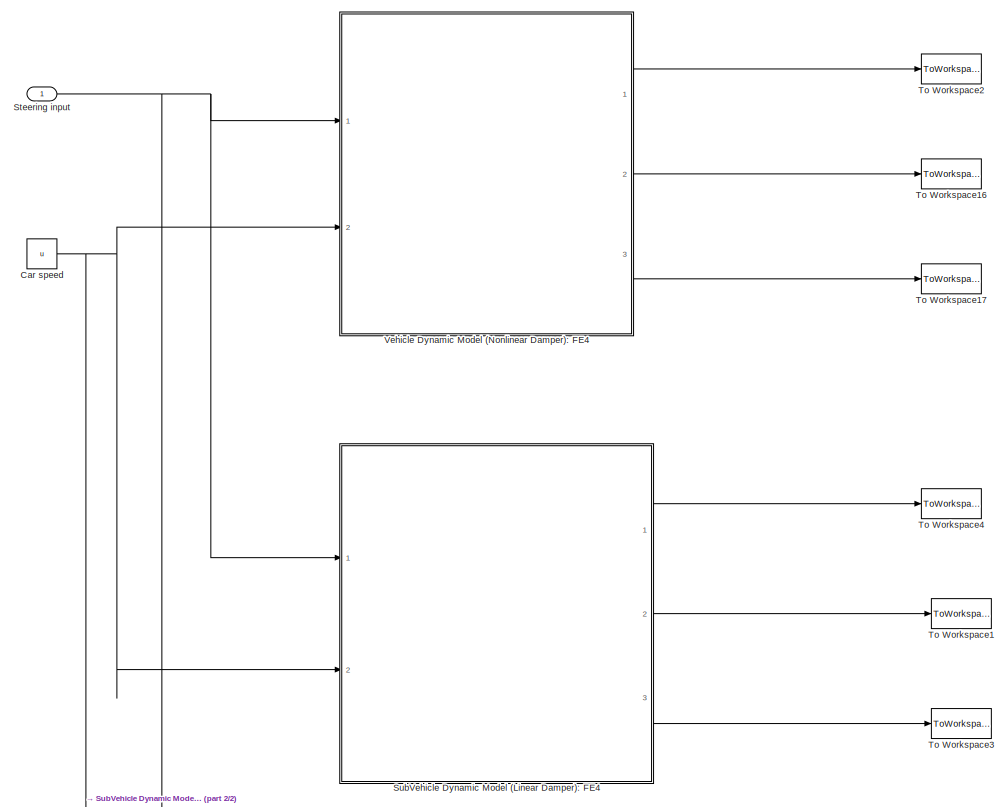
[diagram: root canvas - part 1/2, full width, middle band]
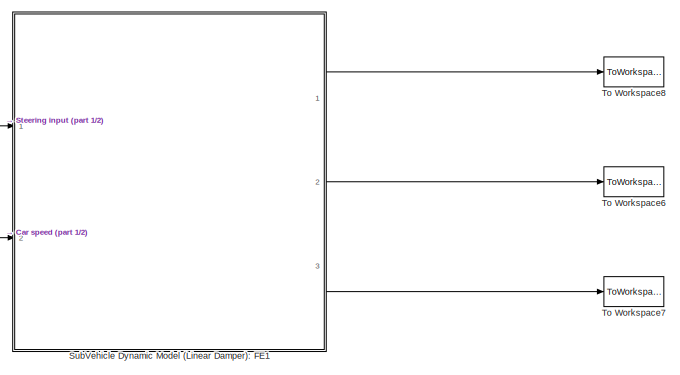
[diagram: root canvas - part 2/2, bottom center region]
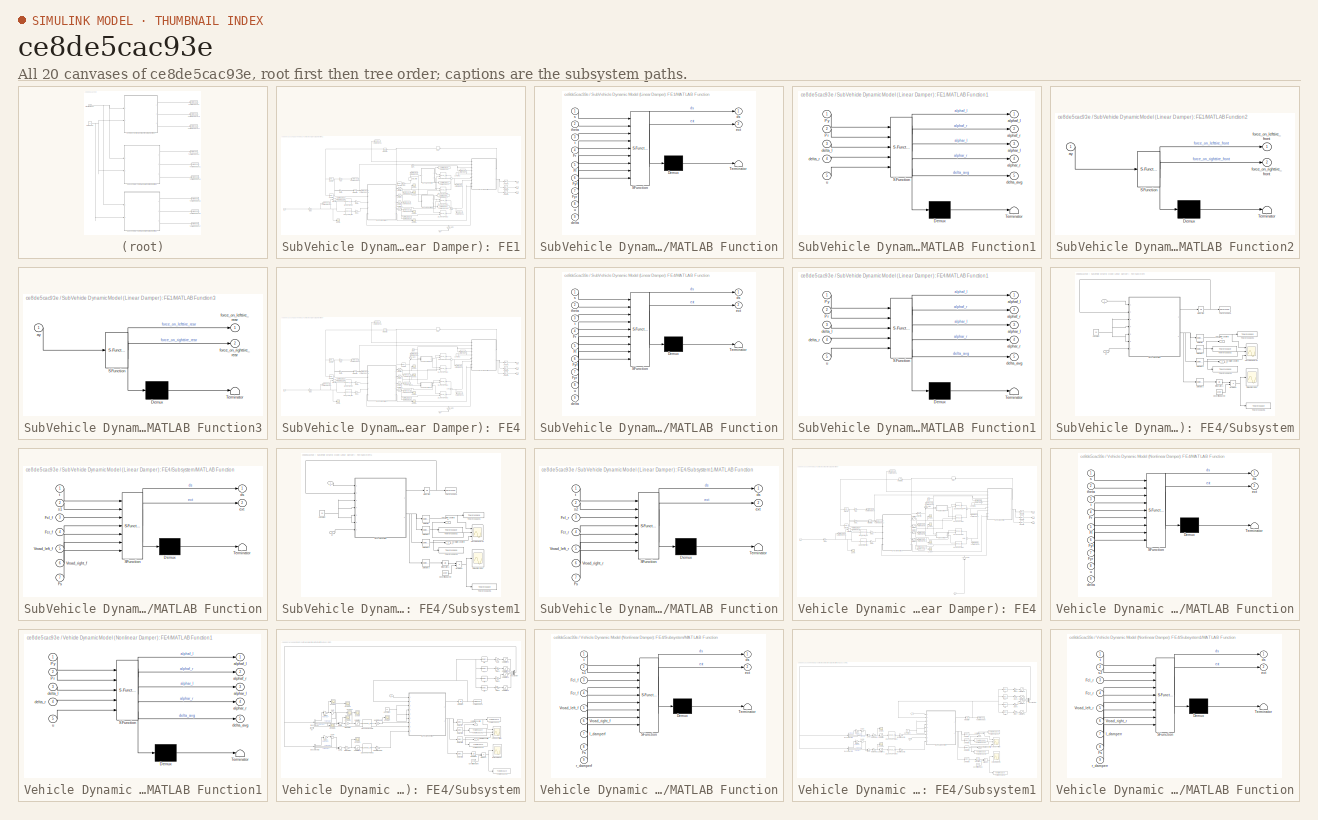
[diagram: thumbnail index - all 20 canvases of the model, root first then tree order]
MODEL slx_ce8de5cac93e
KIND model
CONFIG AbsTol = auto
CONFIG FixedStep = 0.001
CONFIG MaxStep = auto
CONFIG MinStep = auto
CONFIG RelTol = 1e-3
CONFIG SampleTimeConstraint = Unconstrained
CONFIG Solver = FixedStepAuto
CONFIG SolverMode = Auto
CONFIG SolverName = FixedStepAuto
CONFIG StartTime = 0.0
CONFIG StopTime = 6.3350
BLOCK [Constant] Car speed
  Value = u
BLOCK [Inport] Steering input
  IconDisplay = Port number
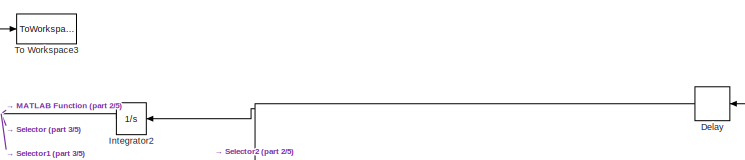
[diagram: SubVehicle Dynamic Model (Linear Damper): FE1 - part 1/5, top center region]
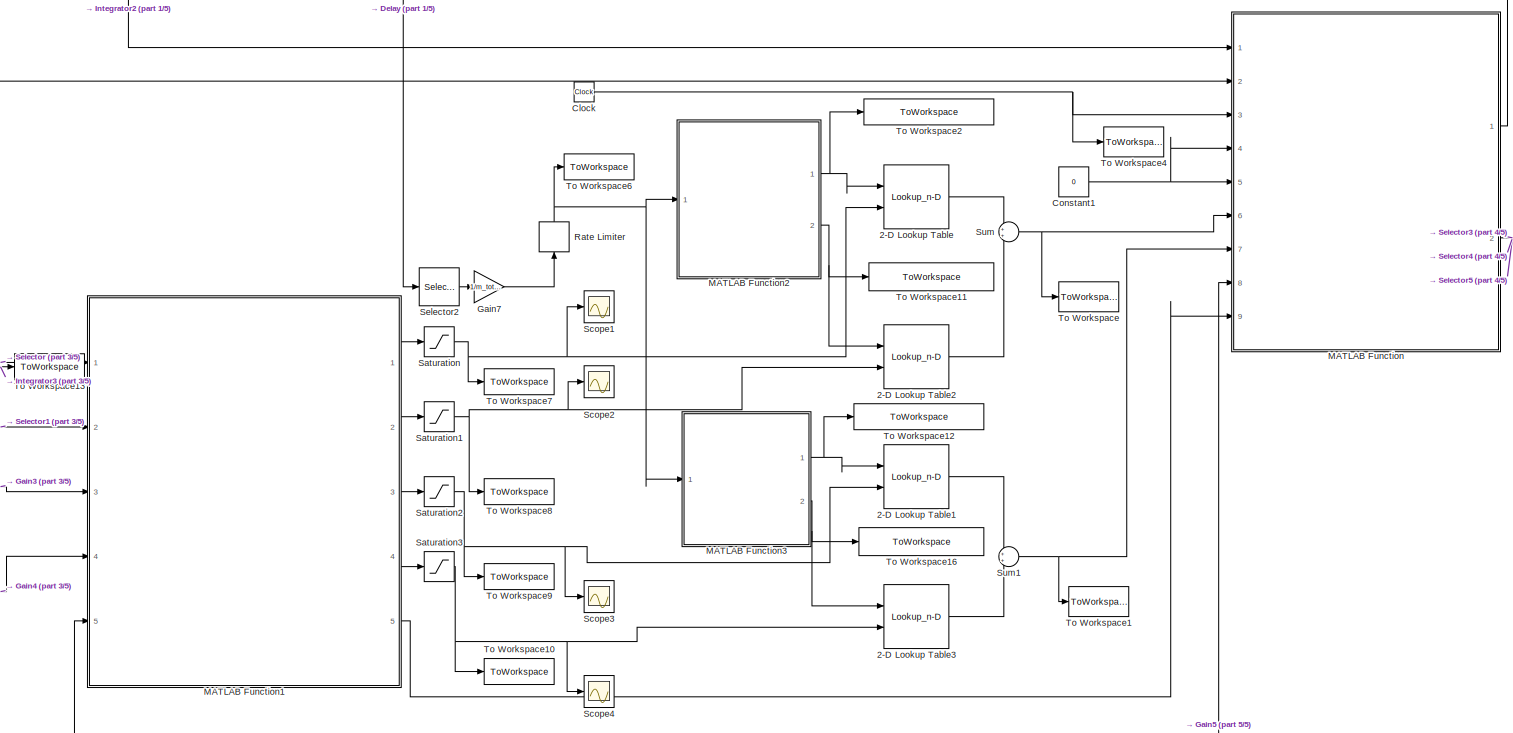
[diagram: SubVehicle Dynamic Model (Linear Damper): FE1 - part 2/5, central region]
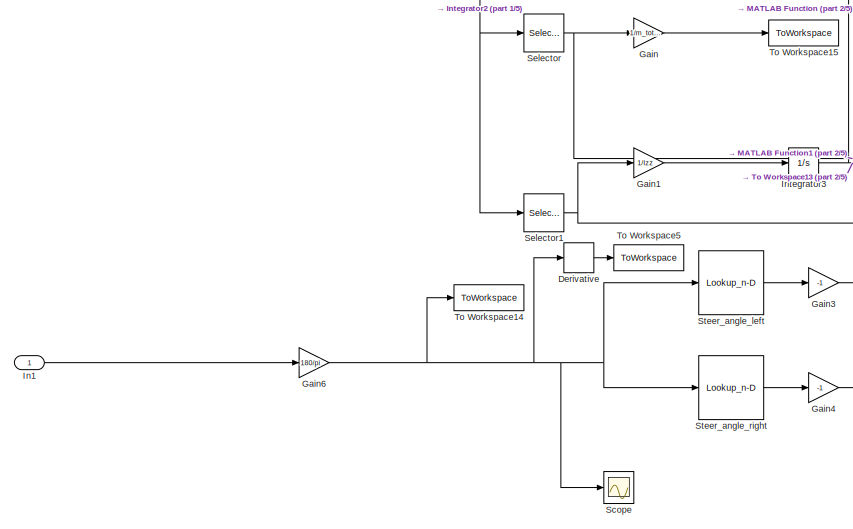
[diagram: SubVehicle Dynamic Model (Linear Damper): FE1 - part 3/5, middle left region]
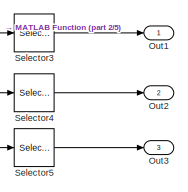
[diagram: SubVehicle Dynamic Model (Linear Damper): FE1 - part 4/5, middle right region]
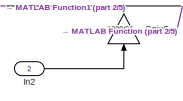
[diagram: SubVehicle Dynamic Model (Linear Damper): FE1 - part 5/5, bottom right region]
BLOCK [SubSystem] SubVehicle Dynamic Model (Linear Damper): FE1
  Ports = [2, 3]
  RequestExecContextInheritance = off
  Variant = off
BLOCK [Lookup_n-D] SubVehicle Dynamic Model (Linear Damper): FE1/2-D Lookup Table
  BreakpointsForDimension1 = [222.41,667.23,1112.06]
  BreakpointsForDimension2 = [0,0.001745328,0.003490656,0.005235983,0.006981311,0.008726639,0.010471967,0.012217294,0.013962622,0.01570795,0.017453278,0.019198606,0.020943933,0.022689261,0.024434589,0.026179917,0.027925244,0.029670572,0.0314159,0.033161228,0.034906556,0.036651883,0.038397211,0.040142539,0.041887867,0.043633194,0.045378522,0.04712385,0.048869178,0.050614506,0.052359833,0.054105161,0.055850489,0.057595817,0.059...<+799ch>  <repeated x12 — deduplicated; at blocks: 2-D Lookup Table, 2-D Lookup Table1, 2-D Lookup Table2, 2-D Lookup Table3>
  InternalRulePriority = Speed
  Ports = [2, 1]
  RndMeth = Simplest
  Table = Tire_data_1
BLOCK [Lookup_n-D] SubVehicle Dynamic Model (Linear Damper): FE1/2-D Lookup Table1
  BreakpointsForDimension1 = [222.41,667.23,1112.06]
  InternalRulePriority = Speed
  Ports = [2, 1]
  RndMeth = Simplest
  Table = Tire_data_1
BLOCK [Lookup_n-D] SubVehicle Dynamic Model (Linear Damper): FE1/2-D Lookup Table2
  BreakpointsForDimension1 = [222.41,667.23,1112.06]
  InternalRulePriority = Speed
  Ports = [2, 1]
  RndMeth = Simplest
  Table = Tire_data_1
BLOCK [Lookup_n-D] SubVehicle Dynamic Model (Linear Damper): FE1/2-D Lookup Table3
  BreakpointsForDimension1 = [222.41,667.23,1112.06]
  InternalRulePriority = Speed
  Ports = [2, 1]
  RndMeth = Simplest
  Table = Tire_data_1
BLOCK [Clock] SubVehicle Dynamic Model (Linear Damper): FE1/Clock
BLOCK [Constant] SubVehicle Dynamic Model (Linear Damper): FE1/Constant1
  Value = 0
BLOCK [Delay] SubVehicle Dynamic Model (Linear Damper): FE1/Delay
  DelayLength = 1
  InitialCondition = 0
  InputPortMap = u0
  Ports = [1, 1]
  SampleTime = 0.001
BLOCK [Derivative] SubVehicle Dynamic Model (Linear Damper): FE1/Derivative
BLOCK [Gain] SubVehicle Dynamic Model (Linear Damper): FE1/Gain
  AttributesFormatString = %<Gain>
  Gain = 1/m_total
  OutDataTypeStr = Inherit: Inherit via internal rule
  ParamDataTypeStr = Inherit: Inherit via internal rule
  SaturateOnIntegerOverflow = off
BLOCK [Gain] SubVehicle Dynamic Model (Linear Damper): FE1/Gain1
  AttributesFormatString = %<Gain>
  Gain = 1/Izz
  OutDataTypeStr = Inherit: Inherit via internal rule
  ParamDataTypeStr = Inherit: Inherit via internal rule
  SaturateOnIntegerOverflow = off
BLOCK [Gain] SubVehicle Dynamic Model (Linear Damper): FE1/Gain3
  AttributesFormatString = %<Gain>
  Gain = -1
  OutDataTypeStr = Inherit: Inherit via internal rule
  ParamDataTypeStr = Inherit: Inherit via internal rule
  SaturateOnIntegerOverflow = off
BLOCK [Gain] SubVehicle Dynamic Model (Linear Damper): FE1/Gain4
  AttributesFormatString = %<Gain>
  Gain = -1
  OutDataTypeStr = Inherit: Inherit via internal rule
  ParamDataTypeStr = Inherit: Inherit via internal rule
  SaturateOnIntegerOverflow = off
BLOCK [Gain] SubVehicle Dynamic Model (Linear Damper): FE1/Gain5
  Gain = 1000/3600
  OutDataTypeStr = Inherit: Inherit via internal rule
  ParamDataTypeStr = Inherit: Inherit via internal rule
  SaturateOnIntegerOverflow = off
BLOCK [Gain] SubVehicle Dynamic Model (Linear Damper): FE1/Gain6
  Gain = 180/pi
  OutDataTypeStr = Inherit: Inherit via internal rule
  ParamDataTypeStr = Inherit: Inherit via internal rule
  SaturateOnIntegerOverflow = off
BLOCK [Gain] SubVehicle Dynamic Model (Linear Damper): FE1/Gain7
  AttributesFormatString = %<Gain>
  Gain = 1/m_total
  OutDataTypeStr = Inherit: Inherit via internal rule
  ParamDataTypeStr = Inherit: Inherit via internal rule
  SaturateOnIntegerOverflow = off
BLOCK [Inport] SubVehicle Dynamic Model (Linear Damper): FE1/In1
  IconDisplay = Port number
BLOCK [Inport] SubVehicle Dynamic Model (Linear Damper): FE1/In2
  IconDisplay = Port number
  Port = 2
BLOCK [Integrator] SubVehicle Dynamic Model (Linear Damper): FE1/Integrator2
  InitialCondition = initial_1
  LowerSaturationLimit = -50000
  Ports = [1, 1]
  UpperSaturationLimit = 50000
BLOCK [Integrator] SubVehicle Dynamic Model (Linear Damper): FE1/Integrator3
  Ports = [1, 1]
BLOCK [SubSystem] SubVehicle Dynamic Model (Linear Damper): FE1/MATLAB Function
  ErrorFcn = Stateflow.Translate.translate
  PermitHierarchicalResolution = ExplicitOnly
  Ports = [9, 2]
  RequestExecContextInheritance = off
  SFBlockType = MATLAB Function
  TreatAsAtomicUnit = on
  Variant = off
BLOCK [Demux] SubVehicle Dynamic Model (Linear Damper): FE1/MATLAB Function/ Demux 
  Outputs = 1
  Ports = [1, 1]
BLOCK [S-Function] SubVehicle Dynamic Model (Linear Damper): FE1/MATLAB Function/ SFunction 
  EnableBusSupport = on
  FunctionName = sf_sfun
  Parameters = Izz,aa,bb,m_total,track
  PortCounts = [9 3]
  Ports = [9, 3]
  SFunctionDeploymentMode = off
  Tag = Stateflow S-Function Vehicle_Dynamic_sim_V3 9
BLOCK [Terminator] SubVehicle Dynamic Model (Linear Damper): FE1/MATLAB Function/ Terminator 
BLOCK [Inport] SubVehicle Dynamic Model (Linear Damper): FE1/MATLAB Function/Fl
  IconDisplay = Port number
  Port = 5
BLOCK [Inport] SubVehicle Dynamic Model (Linear Damper): FE1/MATLAB Function/Fr
  IconDisplay = Port number
  Port = 4
BLOCK [Inport] SubVehicle Dynamic Model (Linear Damper): FE1/MATLAB Function/Fyf
  IconDisplay = Port number
  Port = 6
BLOCK [Inport] SubVehicle Dynamic Model (Linear Damper): FE1/MATLAB Function/Fyr
  IconDisplay = Port number
  Port = 7
BLOCK [Inport] SubVehicle Dynamic Model (Linear Damper): FE1/MATLAB Function/delta
  IconDisplay = Port number
  Port = 9
BLOCK [Outport] SubVehicle Dynamic Model (Linear Damper): FE1/MATLAB Function/ds
  IconDisplay = Port number
BLOCK [Outport] SubVehicle Dynamic Model (Linear Damper): FE1/MATLAB Function/ext
  IconDisplay = Port number
  Port = 2
BLOCK [Inport] SubVehicle Dynamic Model (Linear Damper): FE1/MATLAB Function/s
  IconDisplay = Port number
BLOCK [Inport] SubVehicle Dynamic Model (Linear Damper): FE1/MATLAB Function/t
  IconDisplay = Port number
  Port = 3
BLOCK [Inport] SubVehicle Dynamic Model (Linear Damper): FE1/MATLAB Function/theta
  IconDisplay = Port number
  Port = 2
BLOCK [Inport] SubVehicle Dynamic Model (Linear Damper): FE1/MATLAB Function/u
  IconDisplay = Port number
  Port = 8
BLOCK [SubSystem] SubVehicle Dynamic Model (Linear Damper): FE1/MATLAB Function1
  ErrorFcn = Stateflow.Translate.translate
  PermitHierarchicalResolution = ExplicitOnly
  Ports = [5, 5]
  RequestExecContextInheritance = off
  SFBlockType = MATLAB Function
  TreatAsAtomicUnit = on
  Variant = off
BLOCK [Demux] SubVehicle Dynamic Model (Linear Damper): FE1/MATLAB Function1/ Demux 
  Outputs = 1
  Ports = [1, 1]
BLOCK [S-Function] SubVehicle Dynamic Model (Linear Damper): FE1/MATLAB Function1/ SFunction 
  EnableBusSupport = on
  FunctionName = sf_sfun
  Parameters = Izz,aa,bb,m_total
  PortCounts = [5 6]
  Ports = [5, 6]
  SFunctionDeploymentMode = off
  Tag = Stateflow S-Function Vehicle_Dynamic_sim_V3 10
BLOCK [Terminator] SubVehicle Dynamic Model (Linear Damper): FE1/MATLAB Function1/ Terminator 
BLOCK [Inport] SubVehicle Dynamic Model (Linear Damper): FE1/MATLAB Function1/Pr
  IconDisplay = Port number
  Port = 2
BLOCK [Inport] SubVehicle Dynamic Model (Linear Damper): FE1/MATLAB Function1/Py
  IconDisplay = Port number
BLOCK [Outport] SubVehicle Dynamic Model (Linear Damper): FE1/MATLAB Function1/alphaf_l
  IconDisplay = Port number
BLOCK [Outport] SubVehicle Dynamic Model (Linear Damper): FE1/MATLAB Function1/alphaf_r
  IconDisplay = Port number
  Port = 2
BLOCK [Outport] SubVehicle Dynamic Model (Linear Damper): FE1/MATLAB Function1/alphar_l
  IconDisplay = Port number
  Port = 3
BLOCK [Outport] SubVehicle Dynamic Model (Linear Damper): FE1/MATLAB Function1/alphar_r
  IconDisplay = Port number
  Port = 4
BLOCK [Outport] SubVehicle Dynamic Model (Linear Damper): FE1/MATLAB Function1/delta_avg
  IconDisplay = Port number
  Port = 5
BLOCK [Inport] SubVehicle Dynamic Model (Linear Damper): FE1/MATLAB Function1/delta_l
  IconDisplay = Port number
  Port = 3
BLOCK [Inport] SubVehicle Dynamic Model (Linear Damper): FE1/MATLAB Function1/delta_r
  IconDisplay = Port number
  Port = 4
BLOCK [Inport] SubVehicle Dynamic Model (Linear Damper): FE1/MATLAB Function1/u
  IconDisplay = Port number
  Port = 5
BLOCK [SubSystem] SubVehicle Dynamic Model (Linear Damper): FE1/MATLAB Function2
  ErrorFcn = Stateflow.Translate.translate
  PermitHierarchicalResolution = ExplicitOnly
  Ports = [1, 2]
  RequestExecContextInheritance = off
  SFBlockType = MATLAB Function
  TreatAsAtomicUnit = on
  Variant = off
BLOCK [Demux] SubVehicle Dynamic Model (Linear Damper): FE1/MATLAB Function2/ Demux 
  Outputs = 1
  Ports = [1, 1]
BLOCK [S-Function] SubVehicle Dynamic Model (Linear Damper): FE1/MATLAB Function2/ SFunction 
  EnableBusSupport = on
  FunctionName = sf_sfun
  Parameters = a,b,g,hf,mf,mt
  PortCounts = [1 3]
  Ports = [1, 3]
  SFunctionDeploymentMode = off
  Tag = Stateflow S-Function Vehicle_Dynamic_sim_V3 13
BLOCK [Terminator] SubVehicle Dynamic Model (Linear Damper): FE1/MATLAB Function2/ Terminator 
BLOCK [Inport] SubVehicle Dynamic Model (Linear Damper): FE1/MATLAB Function2/ay
  IconDisplay = Port number
BLOCK [Outport] SubVehicle Dynamic Model (Linear Damper): FE1/MATLAB Function2/force_on_lefttire_front
  IconDisplay = Port number
BLOCK [Outport] SubVehicle Dynamic Model (Linear Damper): FE1/MATLAB Function2/force_on_righttire_front
  IconDisplay = Port number
  Port = 2
BLOCK [SubSystem] SubVehicle Dynamic Model (Linear Damper): FE1/MATLAB Function3
  ErrorFcn = Stateflow.Translate.translate
  PermitHierarchicalResolution = ExplicitOnly
  Ports = [1, 2]
  RequestExecContextInheritance = off
  SFBlockType = MATLAB Function
  TreatAsAtomicUnit = on
  Variant = off
BLOCK [Demux] SubVehicle Dynamic Model (Linear Damper): FE1/MATLAB Function3/ Demux 
  Outputs = 1
  Ports = [1, 1]
BLOCK [S-Function] SubVehicle Dynamic Model (Linear Damper): FE1/MATLAB Function3/ SFunction 
  EnableBusSupport = on
  FunctionName = sf_sfun
  Parameters = a,b,g,hf,mr,mt
  PortCounts = [1 3]
  Ports = [1, 3]
  SFunctionDeploymentMode = off
  Tag = Stateflow S-Function Vehicle_Dynamic_sim_V3 11
BLOCK [Terminator] SubVehicle Dynamic Model (Linear Damper): FE1/MATLAB Function3/ Terminator 
BLOCK [Inport] SubVehicle Dynamic Model (Linear Damper): FE1/MATLAB Function3/ay
  IconDisplay = Port number
BLOCK [Outport] SubVehicle Dynamic Model (Linear Damper): FE1/MATLAB Function3/force_on_lefttire_rear
  IconDisplay = Port number
BLOCK [Outport] SubVehicle Dynamic Model (Linear Damper): FE1/MATLAB Function3/force_on_righttire_rear
  IconDisplay = Port number
  Port = 2
BLOCK [Outport] SubVehicle Dynamic Model (Linear Damper): FE1/Out1
  IconDisplay = Port number
BLOCK [Outport] SubVehicle Dynamic Model (Linear Damper): FE1/Out2
  IconDisplay = Port number
  Port = 2
BLOCK [Outport] SubVehicle Dynamic Model (Linear Damper): FE1/Out3
  IconDisplay = Port number
  Port = 3
BLOCK [RateLimiter] SubVehicle Dynamic Model (Linear Damper): FE1/Rate Limiter
  FallingSlewLimit = -10
  RisingSlewLimit = 10
  SampleTimeMode = inherited
BLOCK [Saturate] SubVehicle Dynamic Model (Linear Damper): FE1/Saturation
  InputPortMap = u0
  LowerLimit = -sp_max
  Ports = [1, 1]
  UpperLimit = sp_max
BLOCK [Saturate] SubVehicle Dynamic Model (Linear Damper): FE1/Saturation1
  InputPortMap = u0
  LowerLimit = -sp_max
  Ports = [1, 1]
  UpperLimit = sp_max
BLOCK [Saturate] SubVehicle Dynamic Model (Linear Damper): FE1/Saturation2
  InputPortMap = u0
  LowerLimit = -sp_max
  Ports = [1, 1]
  UpperLimit = sp_max
BLOCK [Saturate] SubVehicle Dynamic Model (Linear Damper): FE1/Saturation3
  InputPortMap = u0
  LowerLimit = -sp_max
  Ports = [1, 1]
  UpperLimit = sp_max
BLOCK [Scope] SubVehicle Dynamic Model (Linear Damper): FE1/Scope
  Ports = [1]
  ScopeSpecificationString = Simulink.scopes.TimeScopeBlockCfg('CurrentConfiguration', extmgr.ConfigurationSet(extmgr.Configuration('Core','General UI',true),extmgr.Configuration('Core','Source UI',true),extmgr.Configuration('Sources','WiredSimulink',true,'DataLoggingVariableName','ScopeData1'),extmgr.Configuration('Visuals','Time Domain',true,'SerializedDisplays',{struct('MinYLimReal','-4.39025','MaxYLimReal','39.51225','YLa...<+1375ch>  <repeated x3 — deduplicated; at blocks: Scope>
BLOCK [Scope] SubVehicle Dynamic Model (Linear Damper): FE1/Scope1
  Ports = [1]
  ScopeSpecificationString = Simulink.scopes.TimeScopeBlockCfg('CurrentConfiguration', extmgr.ConfigurationSet(extmgr.Configuration('Core','General UI',true),extmgr.Configuration('Core','Source UI',true),extmgr.Configuration('Sources','WiredSimulink',true,'DataLoggingVariableName','ScopeData1'),extmgr.Configuration('Visuals','Time Domain',true,'SerializedDisplays',{struct('MinYLimReal','-0.70498','MaxYLimReal','1.17418','YLab...<+1424ch>
BLOCK [Scope] SubVehicle Dynamic Model (Linear Damper): FE1/Scope2
  Ports = [1]
  ScopeSpecificationString = Simulink.scopes.TimeScopeBlockCfg('CurrentConfiguration', extmgr.ConfigurationSet(extmgr.Configuration('Core','General UI',true),extmgr.Configuration('Core','Source UI',true),extmgr.Configuration('Sources','WiredSimulink',true,'DataLoggingVariableName','ScopeData2'),extmgr.Configuration('Visuals','Time Domain',true,'SerializedDisplays',{struct('MinYLimReal','-0.68532','MaxYLimReal','0.99729','YLab...<+1425ch>
BLOCK [Scope] SubVehicle Dynamic Model (Linear Damper): FE1/Scope3
  Ports = [1]
  ScopeSpecificationString = Simulink.scopes.TimeScopeBlockCfg('CurrentConfiguration', extmgr.ConfigurationSet(extmgr.Configuration('Core','General UI',true),extmgr.Configuration('Core','Source UI',true),extmgr.Configuration('Sources','WiredSimulink',true,'DataLoggingVariableName','ScopeData3'),extmgr.Configuration('Visuals','Time Domain',true,'SerializedDisplays',{struct('MinYLimReal','-0.33436','MaxYLimReal','0.17502','YLab...<+1425ch>
BLOCK [Scope] SubVehicle Dynamic Model (Linear Damper): FE1/Scope4
  Ports = [1]
  ScopeSpecificationString = Simulink.scopes.TimeScopeBlockCfg('CurrentConfiguration', extmgr.ConfigurationSet(extmgr.Configuration('Core','General UI',true),extmgr.Configuration('Core','Source UI',true),extmgr.Configuration('Sources','WiredSimulink',true,'DataLoggingVariableName','ScopeData4'),extmgr.Configuration('Visuals','Time Domain',true,'SerializedDisplays',{struct('MinYLimReal','-0.33436','MaxYLimReal','0.17502','YLab...<+1425ch>
BLOCK [Selector] SubVehicle Dynamic Model (Linear Damper): FE1/Selector
  IndexOptions = Index vector (dialog)
  Indices = [1]
  InputPortWidth = 4
  OutputSizes = 1
  Ports = [1, 1]
BLOCK [Selector] SubVehicle Dynamic Model (Linear Damper): FE1/Selector1
  IndexOptions = Index vector (dialog)
  Indices = [2]
  InputPortWidth = 4
  OutputSizes = 1
  Ports = [1, 1]
BLOCK [Selector] SubVehicle Dynamic Model (Linear Damper): FE1/Selector2
  IndexOptions = Index vector (dialog)
  Indices = [1]
  InputPortWidth = 4
  OutputSizes = 1
  Ports = [1, 1]
BLOCK [Selector] SubVehicle Dynamic Model (Linear Damper): FE1/Selector3
  IndexOptions = Index vector (dialog)
  Indices = [1]
  InputPortWidth = 3
  OutputSizes = 1
  Ports = [1, 1]
BLOCK [Selector] SubVehicle Dynamic Model (Linear Damper): FE1/Selector4
  IndexOptions = Index vector (dialog)
  Indices = [2]
  InputPortWidth = 3
  OutputSizes = 1
  Ports = [1, 1]
BLOCK [Selector] SubVehicle Dynamic Model (Linear Damper): FE1/Selector5
  IndexOptions = Index vector (dialog)
  Indices = [3]
  InputPortWidth = 3
  OutputSizes = 1
  Ports = [1, 1]
BLOCK [Lookup_n-D] SubVehicle Dynamic Model (Linear Damper): FE1/Steer_angle_left
  BreakpointsForDimension1 = [0\n0.014331519\n0.057018697\n0.127600467\n0.225615761\n0.350603511\n0.50210265\n0.679652108\n0.882790819\n1.111057714\n1.363991726\n1.64113179\n1.942016843\n2.266185824\n2.613177679\n2.982531359\n3.373785821\n3.786480036\n4.220152983\n4.674343657\n5.148591068\n5.642434246\n6.155412241\n6.687064127\n7.236929001\n7.804545991\n8.389454253\n8.991192974\n9.609301375\n10.24331871\n10.89278428\n11.55723741\n12.23621746\n12.92926384\n13....<+1090ch>  <repeated x6 — deduplicated; at blocks: Steer_angle_left, Steer_angle_right>
  InternalRulePriority = Speed
  NumberOfTableDimensions = 1
  Ports = [1, 1]
  RndMeth = Simplest
  Table = [0.0000\n-0.0046\n-0.0183\n-0.0409\n-0.0723\n-0.1124\n-0.1610\n-0.2180\n-0.2831\n-0.3564\n-0.4376\n-0.5266\n-0.6233\n-0.7275\n-0.8391\n-0.9579\n-1.0838\n-1.2167\n-1.3565\n-1.5029\n-1.6559\n-1.8154\n-1.9811\n-2.1531\n-2.3310\n-2.5148\n-2.7045\n-2.8997\n-3.1005\n-3.3066\n-3.5180\n-3.7344\n-3.9559\n-4.1822\n-4.4133\n-4.6489\n-4.8890\n-5.1334\n-5.3821\n-5.6348\n-5.8915\n-6.1519\n-6.4161\n-6.6839\n-6.9551\n-7.2295\n-7.5072\n-7.7879\n-8.0715\n-8.3579\n...<+680ch>  <repeated x3 — deduplicated; at blocks: Steer_angle_left>
BLOCK [Lookup_n-D] SubVehicle Dynamic Model (Linear Damper): FE1/Steer_angle_right
  InternalRulePriority = Speed
  NumberOfTableDimensions = 1
  Ports = [1, 1]
  RndMeth = Simplest
  Table = [0.0000\n-0.0046\n-0.0183\n-0.0409\n-0.0723\n-0.1124\n-0.1609\n-0.2178\n-0.2828\n-0.3559\n-0.4369\n-0.5255\n-0.6218\n-0.7254\n-0.8364\n-0.9544\n-1.0793\n-1.2110\n-1.3494\n-1.4943\n-1.6454\n-1.8028\n-1.9661\n-2.1353\n-2.3102\n-2.4907\n-2.6765\n-2.8676\n-3.0638\n-3.2649\n-3.4708\n-3.6813\n-3.8963\n-4.1157\n-4.3392\n-4.5668\n-4.7982\n-5.0334\n-5.2721\n-5.5144\n-5.7599\n-6.0085\n-6.2602\n-6.5147\n-6.7720\n-7.0318\n-7.2941\n-7.5586\n-7.8254\n-8.0941\n...<+679ch>  <repeated x3 — deduplicated; at blocks: Steer_angle_right>
BLOCK [Sum] SubVehicle Dynamic Model (Linear Damper): FE1/Sum
  IconShape = round
  InputSameDT = off
  OutDataTypeStr = Inherit: Inherit via internal rule
  Ports = [2, 1]
  SaturateOnIntegerOverflow = off
BLOCK [Sum] SubVehicle Dynamic Model (Linear Damper): FE1/Sum1
  IconShape = round
  InputSameDT = off
  OutDataTypeStr = Inherit: Inherit via internal rule
  Ports = [2, 1]
  SaturateOnIntegerOverflow = off
BLOCK [ToWorkspace] SubVehicle Dynamic Model (Linear Damper): FE1/To Workspace
  FixptAsFi = on
  MaxDataPoints = inf
  Ports = [1]
  SampleTime = -1
  Save2DSignal = 3-D array (concatenate along third dimension)
  SaveFormat = Timeseries
  VariableName = Fyf_simple
BLOCK [ToWorkspace] SubVehicle Dynamic Model (Linear Damper): FE1/To Workspace1
  FixptAsFi = on
  MaxDataPoints = inf
  Ports = [1]
  SampleTime = -1
  Save2DSignal = 3-D array (concatenate along third dimension)
  SaveFormat = Timeseries
  VariableName = Fyr_simple
BLOCK [ToWorkspace] SubVehicle Dynamic Model (Linear Damper): FE1/To Workspace10
  FixptAsFi = on
  MaxDataPoints = inf
  Ports = [1]
  SampleTime = -1
  Save2DSignal = 3-D array (concatenate along third dimension)
  SaveFormat = Timeseries
  VariableName = alphar_r_simple
BLOCK [ToWorkspace] SubVehicle Dynamic Model (Linear Damper): FE1/To Workspace11
  FixptAsFi = on
  MaxDataPoints = inf
  Ports = [1]
  SampleTime = -1
  Save2DSignal = 3-D array (concatenate along third dimension)
  SaveFormat = Timeseries
  VariableName = normal_force_on_righttire_front_simple
BLOCK [ToWorkspace] SubVehicle Dynamic Model (Linear Damper): FE1/To Workspace12
  FixptAsFi = on
  MaxDataPoints = inf
  Ports = [1]
  SampleTime = -1
  Save2DSignal = 3-D array (concatenate along third dimension)
  SaveFormat = Timeseries
  VariableName = normal_force_on_lefttire_rear_simple
BLOCK [ToWorkspace] SubVehicle Dynamic Model (Linear Damper): FE1/To Workspace13
  FixptAsFi = on
  MaxDataPoints = inf
  Ports = [1]
  SampleTime = -1
  Save2DSignal = 3-D array (concatenate along third dimension)
  SaveFormat = Timeseries
  VariableName = Theta_simple
BLOCK [ToWorkspace] SubVehicle Dynamic Model (Linear Damper): FE1/To Workspace14
  FixptAsFi = on
  MaxDataPoints = inf
  Ports = [1]
  SampleTime = -1
  Save2DSignal = 3-D array (concatenate along third dimension)
  SaveFormat = Timeseries
  VariableName = Steer_angle_simple
BLOCK [ToWorkspace] SubVehicle Dynamic Model (Linear Damper): FE1/To Workspace15
  FixptAsFi = on
  MaxDataPoints = inf
  Ports = [1]
  SampleTime = -1
  Save2DSignal = 3-D array (concatenate along third dimension)
  SaveFormat = Timeseries
  VariableName = v_simple
BLOCK [ToWorkspace] SubVehicle Dynamic Model (Linear Damper): FE1/To Workspace16
  FixptAsFi = on
  MaxDataPoints = inf
  Ports = [1]
  SampleTime = -1
  Save2DSignal = 3-D array (concatenate along third dimension)
  SaveFormat = Timeseries
  VariableName = normal_force_on_righttire_rear_simple
BLOCK [ToWorkspace] SubVehicle Dynamic Model (Linear Damper): FE1/To Workspace2
  FixptAsFi = on
  MaxDataPoints = inf
  Ports = [1]
  SampleTime = -1
  Save2DSignal = 3-D array (concatenate along third dimension)
  SaveFormat = Timeseries
  VariableName = normal_force_on_lefttire_front_simple
BLOCK [ToWorkspace] SubVehicle Dynamic Model (Linear Damper): FE1/To Workspace3
  FixptAsFi = on
  MaxDataPoints = inf
  Ports = [1]
  SampleTime = -1
  Save2DSignal = 3-D array (concatenate along third dimension)
  SaveFormat = Timeseries
  VariableName = s_simple
BLOCK [ToWorkspace] SubVehicle Dynamic Model (Linear Damper): FE1/To Workspace4
  FixptAsFi = on
  MaxDataPoints = inf
  Ports = [1]
  SampleTime = -1
  Save2DSignal = 3-D array (concatenate along third dimension)
  SaveFormat = Timeseries
  VariableName = t_simple
BLOCK [ToWorkspace] SubVehicle Dynamic Model (Linear Damper): FE1/To Workspace5
  FixptAsFi = on
  MaxDataPoints = inf
  Ports = [1]
  SampleTime = -1
  Save2DSignal = 3-D array (concatenate along third dimension)
  SaveFormat = Timeseries
  VariableName = Steering_rate_simple
BLOCK [ToWorkspace] SubVehicle Dynamic Model (Linear Damper): FE1/To Workspace6
  FixptAsFi = on
  MaxDataPoints = inf
  Ports = [1]
  SampleTime = -1
  Save2DSignal = 3-D array (concatenate along third dimension)
  SaveFormat = Timeseries
  VariableName = ay_simple
BLOCK [ToWorkspace] SubVehicle Dynamic Model (Linear Damper): FE1/To Workspace7
  FixptAsFi = on
  MaxDataPoints = inf
  Ports = [1]
  SampleTime = -1
  Save2DSignal = 3-D array (concatenate along third dimension)
  SaveFormat = Timeseries
  VariableName = alphaf_l_simple
BLOCK [ToWorkspace] SubVehicle Dynamic Model (Linear Damper): FE1/To Workspace8
  FixptAsFi = on
  MaxDataPoints = inf
  Ports = [1]
  SampleTime = -1
  Save2DSignal = 3-D array (concatenate along third dimension)
  SaveFormat = Timeseries
  VariableName = alphaf_r_simple
BLOCK [ToWorkspace] SubVehicle Dynamic Model (Linear Damper): FE1/To Workspace9
  FixptAsFi = on
  MaxDataPoints = inf
  Ports = [1]
  SampleTime = -1
  Save2DSignal = 3-D array (concatenate along third dimension)
  SaveFormat = Timeseries
  VariableName = alphar_l_simple
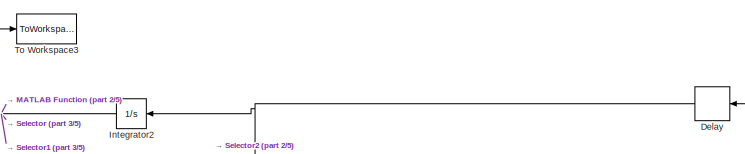
[diagram: SubVehicle Dynamic Model (Linear Damper): FE4 - part 1/5, top center region]
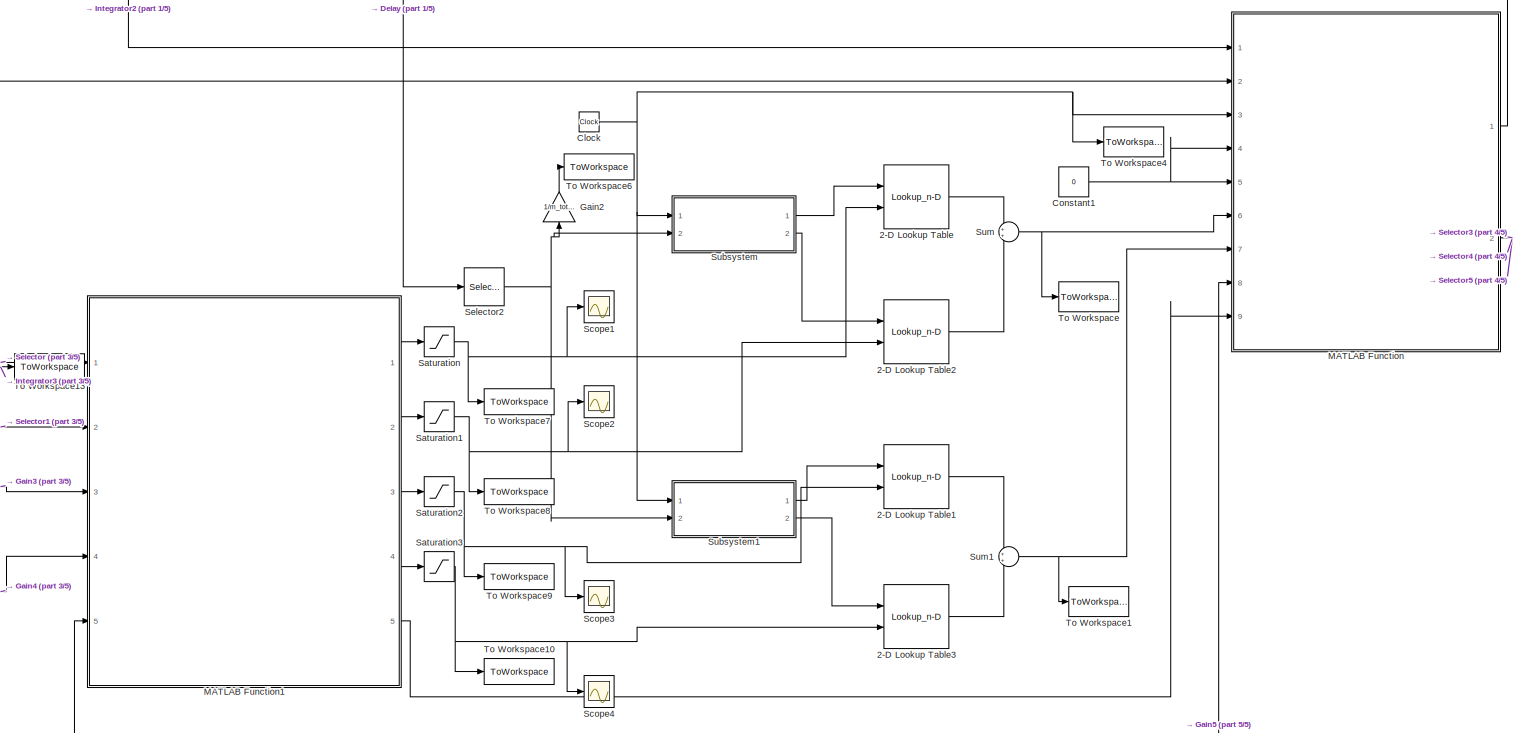
[diagram: SubVehicle Dynamic Model (Linear Damper): FE4 - part 2/5, central region]
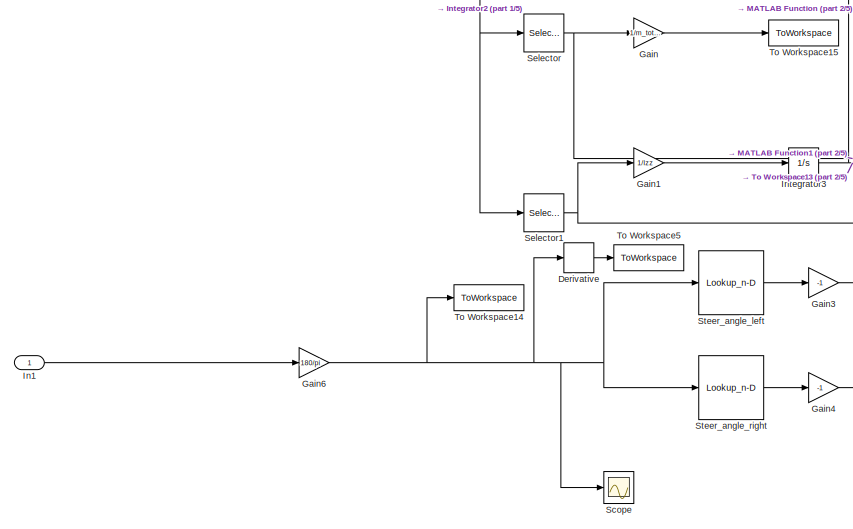
[diagram: SubVehicle Dynamic Model (Linear Damper): FE4 - part 3/5, middle left region]
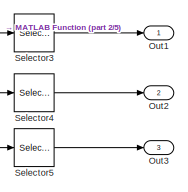
[diagram: SubVehicle Dynamic Model (Linear Damper): FE4 - part 4/5, middle right region]
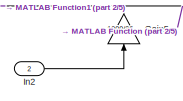
[diagram: SubVehicle Dynamic Model (Linear Damper): FE4 - part 5/5, bottom right region]
BLOCK [SubSystem] SubVehicle Dynamic Model (Linear Damper): FE4
  Ports = [2, 3]
  RequestExecContextInheritance = off
  Variant = off
BLOCK [Lookup_n-D] SubVehicle Dynamic Model (Linear Damper): FE4/2-D Lookup Table
  BreakpointsForDimension1 = [222.41,667.23,1112.06]
  InternalRulePriority = Speed
  Ports = [2, 1]
  RndMeth = Simplest
  Table = Tire_data_1
BLOCK [Lookup_n-D] SubVehicle Dynamic Model (Linear Damper): FE4/2-D Lookup Table1
  BreakpointsForDimension1 = [222.41,667.23,1112.06]
  InternalRulePriority = Speed
  Ports = [2, 1]
  RndMeth = Simplest
  Table = Tire_data_1
BLOCK [Lookup_n-D] SubVehicle Dynamic Model (Linear Damper): FE4/2-D Lookup Table2
  BreakpointsForDimension1 = [222.41,667.23,1112.06]
  InternalRulePriority = Speed
  Ports = [2, 1]
  RndMeth = Simplest
  Table = Tire_data_1
BLOCK [Lookup_n-D] SubVehicle Dynamic Model (Linear Damper): FE4/2-D Lookup Table3
  BreakpointsForDimension1 = [222.41,667.23,1112.06]
  InternalRulePriority = Speed
  Ports = [2, 1]
  RndMeth = Simplest
  Table = Tire_data_1
BLOCK [Clock] SubVehicle Dynamic Model (Linear Damper): FE4/Clock
BLOCK [Constant] SubVehicle Dynamic Model (Linear Damper): FE4/Constant1
  Value = 0
BLOCK [Delay] SubVehicle Dynamic Model (Linear Damper): FE4/Delay
  DelayLength = 1
  InitialCondition = 0
  InputPortMap = u0
  Ports = [1, 1]
  SampleTime = 0.001
BLOCK [Derivative] SubVehicle Dynamic Model (Linear Damper): FE4/Derivative
BLOCK [Gain] SubVehicle Dynamic Model (Linear Damper): FE4/Gain
  AttributesFormatString = %<Gain>
  Gain = 1/m_total
  OutDataTypeStr = Inherit: Inherit via internal rule
  ParamDataTypeStr = Inherit: Inherit via internal rule
  SaturateOnIntegerOverflow = off
BLOCK [Gain] SubVehicle Dynamic Model (Linear Damper): FE4/Gain1
  AttributesFormatString = %<Gain>
  Gain = 1/Izz
  OutDataTypeStr = Inherit: Inherit via internal rule
  ParamDataTypeStr = Inherit: Inherit via internal rule
  SaturateOnIntegerOverflow = off
BLOCK [Gain] SubVehicle Dynamic Model (Linear Damper): FE4/Gain2
  Gain = 1/m_total
  OutDataTypeStr = Inherit: Inherit via internal rule
  ParamDataTypeStr = Inherit: Inherit via internal rule
  SaturateOnIntegerOverflow = off
BLOCK [Gain] SubVehicle Dynamic Model (Linear Damper): FE4/Gain3
  AttributesFormatString = %<Gain>
  Gain = -1
  OutDataTypeStr = Inherit: Inherit via internal rule
  ParamDataTypeStr = Inherit: Inherit via internal rule
  SaturateOnIntegerOverflow = off
BLOCK [Gain] SubVehicle Dynamic Model (Linear Damper): FE4/Gain4
  AttributesFormatString = %<Gain>
  Gain = -1
  OutDataTypeStr = Inherit: Inherit via internal rule
  ParamDataTypeStr = Inherit: Inherit via internal rule
  SaturateOnIntegerOverflow = off
BLOCK [Gain] SubVehicle Dynamic Model (Linear Damper): FE4/Gain5
  Gain = 1000/3600
  OutDataTypeStr = Inherit: Inherit via internal rule
  ParamDataTypeStr = Inherit: Inherit via internal rule
  SaturateOnIntegerOverflow = off
BLOCK [Gain] SubVehicle Dynamic Model (Linear Damper): FE4/Gain6
  Gain = 180/pi
  OutDataTypeStr = Inherit: Inherit via internal rule
  ParamDataTypeStr = Inherit: Inherit via internal rule
  SaturateOnIntegerOverflow = off
BLOCK [Inport] SubVehicle Dynamic Model (Linear Damper): FE4/In1
  IconDisplay = Port number
BLOCK [Inport] SubVehicle Dynamic Model (Linear Damper): FE4/In2
  IconDisplay = Port number
  Port = 2
BLOCK [Integrator] SubVehicle Dynamic Model (Linear Damper): FE4/Integrator2
  InitialCondition = initial_1
  Ports = [1, 1]
BLOCK [Integrator] SubVehicle Dynamic Model (Linear Damper): FE4/Integrator3
  Ports = [1, 1]
BLOCK [SubSystem] SubVehicle Dynamic Model (Linear Damper): FE4/MATLAB Function
  ErrorFcn = Stateflow.Translate.translate
  PermitHierarchicalResolution = ExplicitOnly
  Ports = [9, 2]
  RequestExecContextInheritance = off
  SFBlockType = MATLAB Function
  TreatAsAtomicUnit = on
  Variant = off
BLOCK [Demux] SubVehicle Dynamic Model (Linear Damper): FE4/MATLAB Function/ Demux 
  Outputs = 1
  Ports = [1, 1]
BLOCK [S-Function] SubVehicle Dynamic Model (Linear Damper): FE4/MATLAB Function/ SFunction 
  EnableBusSupport = on
  FunctionName = sf_sfun
  Parameters = Izz,aa,bb,m_total,track
  PortCounts = [9 3]
  Ports = [9, 3]
  SFunctionDeploymentMode = off
  Tag = Stateflow S-Function Vehicle_Dynamic_sim_V3 3
BLOCK [Terminator] SubVehicle Dynamic Model (Linear Damper): FE4/MATLAB Function/ Terminator 
BLOCK [Inport] SubVehicle Dynamic Model (Linear Damper): FE4/MATLAB Function/Fl
  IconDisplay = Port number
  Port = 5
BLOCK [Inport] SubVehicle Dynamic Model (Linear Damper): FE4/MATLAB Function/Fr
  IconDisplay = Port number
  Port = 4
BLOCK [Inport] SubVehicle Dynamic Model (Linear Damper): FE4/MATLAB Function/Fyf
  IconDisplay = Port number
  Port = 6
BLOCK [Inport] SubVehicle Dynamic Model (Linear Damper): FE4/MATLAB Function/Fyr
  IconDisplay = Port number
  Port = 7
BLOCK [Inport] SubVehicle Dynamic Model (Linear Damper): FE4/MATLAB Function/delta
  IconDisplay = Port number
  Port = 9
BLOCK [Outport] SubVehicle Dynamic Model (Linear Damper): FE4/MATLAB Function/ds
  IconDisplay = Port number
BLOCK [Outport] SubVehicle Dynamic Model (Linear Damper): FE4/MATLAB Function/ext
  IconDisplay = Port number
  Port = 2
BLOCK [Inport] SubVehicle Dynamic Model (Linear Damper): FE4/MATLAB Function/s
  IconDisplay = Port number
BLOCK [Inport] SubVehicle Dynamic Model (Linear Damper): FE4/MATLAB Function/t
  IconDisplay = Port number
  Port = 3
BLOCK [Inport] SubVehicle Dynamic Model (Linear Damper): FE4/MATLAB Function/theta
  IconDisplay = Port number
  Port = 2
BLOCK [Inport] SubVehicle Dynamic Model (Linear Damper): FE4/MATLAB Function/u
  IconDisplay = Port number
  Port = 8
BLOCK [SubSystem] SubVehicle Dynamic Model (Linear Damper): FE4/MATLAB Function1
  ErrorFcn = Stateflow.Translate.translate
  PermitHierarchicalResolution = ExplicitOnly
  Ports = [5, 5]
  RequestExecContextInheritance = off
  SFBlockType = MATLAB Function
  TreatAsAtomicUnit = on
  Variant = off
BLOCK [Demux] SubVehicle Dynamic Model (Linear Damper): FE4/MATLAB Function1/ Demux 
  Outputs = 1
  Ports = [1, 1]
BLOCK [S-Function] SubVehicle Dynamic Model (Linear Damper): FE4/MATLAB Function1/ SFunction 
  EnableBusSupport = on
  FunctionName = sf_sfun
  Parameters = Izz,aa,bb,m_total
  PortCounts = [5 6]
  Ports = [5, 6]
  SFunctionDeploymentMode = off
  Tag = Stateflow S-Function Vehicle_Dynamic_sim_V3 6
BLOCK [Terminator] SubVehicle Dynamic Model (Linear Damper): FE4/MATLAB Function1/ Terminator 
BLOCK [Inport] SubVehicle Dynamic Model (Linear Damper): FE4/MATLAB Function1/Pr
  IconDisplay = Port number
  Port = 2
BLOCK [Inport] SubVehicle Dynamic Model (Linear Damper): FE4/MATLAB Function1/Py
  IconDisplay = Port number
BLOCK [Outport] SubVehicle Dynamic Model (Linear Damper): FE4/MATLAB Function1/alphaf_l
  IconDisplay = Port number
BLOCK [Outport] SubVehicle Dynamic Model (Linear Damper): FE4/MATLAB Function1/alphaf_r
  IconDisplay = Port number
  Port = 2
BLOCK [Outport] SubVehicle Dynamic Model (Linear Damper): FE4/MATLAB Function1/alphar_l
  IconDisplay = Port number
  Port = 3
BLOCK [Outport] SubVehicle Dynamic Model (Linear Damper): FE4/MATLAB Function1/alphar_r
  IconDisplay = Port number
  Port = 4
BLOCK [Outport] SubVehicle Dynamic Model (Linear Damper): FE4/MATLAB Function1/delta_avg
  IconDisplay = Port number
  Port = 5
BLOCK [Inport] SubVehicle Dynamic Model (Linear Damper): FE4/MATLAB Function1/delta_l
  IconDisplay = Port number
  Port = 3
BLOCK [Inport] SubVehicle Dynamic Model (Linear Damper): FE4/MATLAB Function1/delta_r
  IconDisplay = Port number
  Port = 4
BLOCK [Inport] SubVehicle Dynamic Model (Linear Damper): FE4/MATLAB Function1/u
  IconDisplay = Port number
  Port = 5
BLOCK [Outport] SubVehicle Dynamic Model (Linear Damper): FE4/Out1
  IconDisplay = Port number
BLOCK [Outport] SubVehicle Dynamic Model (Linear Damper): FE4/Out2
  IconDisplay = Port number
  Port = 2
BLOCK [Outport] SubVehicle Dynamic Model (Linear Damper): FE4/Out3
  IconDisplay = Port number
  Port = 3
BLOCK [Saturate] SubVehicle Dynamic Model (Linear Damper): FE4/Saturation
  InputPortMap = u0
  LowerLimit = -sp_max
  Ports = [1, 1]
  UpperLimit = sp_max
BLOCK [Saturate] SubVehicle Dynamic Model (Linear Damper): FE4/Saturation1
  InputPortMap = u0
  LowerLimit = -sp_max
  Ports = [1, 1]
  UpperLimit = sp_max
BLOCK [Saturate] SubVehicle Dynamic Model (Linear Damper): FE4/Saturation2
  InputPortMap = u0
  LowerLimit = -sp_max
  Ports = [1, 1]
  UpperLimit = sp_max
BLOCK [Saturate] SubVehicle Dynamic Model (Linear Damper): FE4/Saturation3
  InputPortMap = u0
  LowerLimit = -sp_max
  Ports = [1, 1]
  UpperLimit = sp_max
BLOCK [Scope] SubVehicle Dynamic Model (Linear Damper): FE4/Scope
  Ports = [1]
BLOCK [Scope] SubVehicle Dynamic Model (Linear Damper): FE4/Scope1
  Ports = [1]
  ScopeSpecificationString = Simulink.scopes.TimeScopeBlockCfg('CurrentConfiguration', extmgr.ConfigurationSet(extmgr.Configuration('Core','General UI',true),extmgr.Configuration('Core','Source UI',true),extmgr.Configuration('Sources','WiredSimulink',true,'DataLoggingVariableName','ScopeData1'),extmgr.Configuration('Visuals','Time Domain',true,'SerializedDisplays',{struct('MinYLimReal','-0.70498','MaxYLimReal','1.17418','YLab...<+1424ch>
BLOCK [Scope] SubVehicle Dynamic Model (Linear Damper): FE4/Scope2
  Ports = [1]
  ScopeSpecificationString = Simulink.scopes.TimeScopeBlockCfg('CurrentConfiguration', extmgr.ConfigurationSet(extmgr.Configuration('Core','General UI',true),extmgr.Configuration('Core','Source UI',true),extmgr.Configuration('Sources','WiredSimulink',true,'DataLoggingVariableName','ScopeData2'),extmgr.Configuration('Visuals','Time Domain',true,'SerializedDisplays',{struct('MinYLimReal','-0.68532','MaxYLimReal','0.99729','YLab...<+1425ch>
BLOCK [Scope] SubVehicle Dynamic Model (Linear Damper): FE4/Scope3
  Ports = [1]
  ScopeSpecificationString = Simulink.scopes.TimeScopeBlockCfg('CurrentConfiguration', extmgr.ConfigurationSet(extmgr.Configuration('Core','General UI',true),extmgr.Configuration('Core','Source UI',true),extmgr.Configuration('Sources','WiredSimulink',true,'DataLoggingVariableName','ScopeData3'),extmgr.Configuration('Visuals','Time Domain',true,'SerializedDisplays',{struct('MinYLimReal','-0.33436','MaxYLimReal','0.17502','YLab...<+1425ch>
BLOCK [Scope] SubVehicle Dynamic Model (Linear Damper): FE4/Scope4
  Ports = [1]
  ScopeSpecificationString = Simulink.scopes.TimeScopeBlockCfg('CurrentConfiguration', extmgr.ConfigurationSet(extmgr.Configuration('Core','General UI',true),extmgr.Configuration('Core','Source UI',true),extmgr.Configuration('Sources','WiredSimulink',true,'DataLoggingVariableName','ScopeData4'),extmgr.Configuration('Visuals','Time Domain',true,'SerializedDisplays',{struct('MinYLimReal','-0.33436','MaxYLimReal','0.17502','YLab...<+1425ch>
BLOCK [Selector] SubVehicle Dynamic Model (Linear Damper): FE4/Selector
  IndexOptions = Index vector (dialog)
  Indices = [1]
  InputPortWidth = 4
  OutputSizes = 1
  Ports = [1, 1]
BLOCK [Selector] SubVehicle Dynamic Model (Linear Damper): FE4/Selector1
  IndexOptions = Index vector (dialog)
  Indices = [2]
  InputPortWidth = 4
  OutputSizes = 1
  Ports = [1, 1]
BLOCK [Selector] SubVehicle Dynamic Model (Linear Damper): FE4/Selector2
  IndexOptions = Index vector (dialog)
  Indices = [1]
  InputPortWidth = 4
  OutputSizes = 1
  Ports = [1, 1]
BLOCK [Selector] SubVehicle Dynamic Model (Linear Damper): FE4/Selector3
  IndexOptions = Index vector (dialog)
  Indices = [1]
  InputPortWidth = 3
  OutputSizes = 1
  Ports = [1, 1]
BLOCK [Selector] SubVehicle Dynamic Model (Linear Damper): FE4/Selector4
  IndexOptions = Index vector (dialog)
  Indices = [2]
  InputPortWidth = 3
  OutputSizes = 1
  Ports = [1, 1]
BLOCK [Selector] SubVehicle Dynamic Model (Linear Damper): FE4/Selector5
  IndexOptions = Index vector (dialog)
  Indices = [3]
  InputPortWidth = 3
  OutputSizes = 1
  Ports = [1, 1]
BLOCK [Lookup_n-D] SubVehicle Dynamic Model (Linear Damper): FE4/Steer_angle_left
  InternalRulePriority = Speed
  NumberOfTableDimensions = 1
  Ports = [1, 1]
  RndMeth = Simplest
BLOCK [Lookup_n-D] SubVehicle Dynamic Model (Linear Damper): FE4/Steer_angle_right
  InternalRulePriority = Speed
  NumberOfTableDimensions = 1
  Ports = [1, 1]
  RndMeth = Simplest
BLOCK [SubSystem] SubVehicle Dynamic Model (Linear Damper): FE4/Subsystem
  Ports = [2, 2]
  RequestExecContextInheritance = off
  Variant = off
BLOCK [Constant] SubVehicle Dynamic Model (Linear Damper): FE4/Subsystem/Constant
  Value = 0.0
BLOCK [Constant] SubVehicle Dynamic Model (Linear Damper): FE4/Subsystem/Covert to degree
  Value = 180/pi
BLOCK [Scope] SubVehicle Dynamic Model (Linear Damper): FE4/Subsystem/Force on Tire (N)
  NumInputPorts = 3
  Ports = [3]
  ScopeSpecificationString = Simulink.scopes.TimeScopeBlockCfg('CurrentConfiguration', extmgr.ConfigurationSet(extmgr.Configuration('Core','General UI',true),extmgr.Configuration('Core','Source UI',true),extmgr.Configuration('Sources','WiredSimulink',true,'DataLoggingVariableName','ScopeData1','DataLoggingLimitDataPoints',true,'DataLoggingSaveFormat','Array','DataLoggingDecimation','1','DataLoggingDecimateData',true),extmgr.C...<+1542ch>
BLOCK [Integrator] SubVehicle Dynamic Model (Linear Damper): FE4/Subsystem/Integrator
  InitialCondition = initial_2
  Ports = [1, 1]
BLOCK [Integrator] SubVehicle Dynamic Model (Linear Damper): FE4/Subsystem/Integrator1
  Ports = [1, 1]
BLOCK [SubSystem] SubVehicle Dynamic Model (Linear Damper): FE4/Subsystem/MATLAB Function
  ErrorFcn = Stateflow.Translate.translate
  PermitHierarchicalResolution = ExplicitOnly
  Ports = [7, 2]
  RequestExecContextInheritance = off
  SFBlockType = MATLAB Function
  TreatAsAtomicUnit = on
  Variant = off
BLOCK [Demux] SubVehicle Dynamic Model (Linear Damper): FE4/Subsystem/MATLAB Function/ Demux 
  Outputs = 1
  Ports = [1, 1]
BLOCK [S-Function] SubVehicle Dynamic Model (Linear Damper): FE4/Subsystem/MATLAB Function/ SFunction 
  EnableBusSupport = on
  FunctionName = sf_sfun
  Parameters = a,b,g,hf,jf,k_springf,k_tire_l,k_tire_r,mf,mt,r_damperf
  PortCounts = [7 3]
  Ports = [7, 3]
  SFunctionDeploymentMode = off
  Tag = Stateflow S-Function Vehicle_Dynamic_sim_V3 7
BLOCK [Terminator] SubVehicle Dynamic Model (Linear Damper): FE4/Subsystem/MATLAB Function/ Terminator 
BLOCK [Inport] SubVehicle Dynamic Model (Linear Damper): FE4/Subsystem/MATLAB Function/Fcl_f
  IconDisplay = Port number
  Port = 3
BLOCK [Inport] SubVehicle Dynamic Model (Linear Damper): FE4/Subsystem/MATLAB Function/Fcr_f
  IconDisplay = Port number
  Port = 4
BLOCK [Inport] SubVehicle Dynamic Model (Linear Damper): FE4/Subsystem/MATLAB Function/Fs
  IconDisplay = Port number
  Port = 7
BLOCK [Inport] SubVehicle Dynamic Model (Linear Damper): FE4/Subsystem/MATLAB Function/Vroad_left_f
  IconDisplay = Port number
  Port = 5
BLOCK [Inport] SubVehicle Dynamic Model (Linear Damper): FE4/Subsystem/MATLAB Function/Vroad_right_f
  IconDisplay = Port number
  Port = 6
BLOCK [Outport] SubVehicle Dynamic Model (Linear Damper): FE4/Subsystem/MATLAB Function/ds
  IconDisplay = Port number
BLOCK [Outport] SubVehicle Dynamic Model (Linear Damper): FE4/Subsystem/MATLAB Function/ext
  IconDisplay = Port number
  Port = 2
BLOCK [Inport] SubVehicle Dynamic Model (Linear Damper): FE4/Subsystem/MATLAB Function/s1
  IconDisplay = Port number
  Port = 2
BLOCK [Inport] SubVehicle Dynamic Model (Linear Damper): FE4/Subsystem/MATLAB Function/t
  IconDisplay = Port number
BLOCK [Product] SubVehicle Dynamic Model (Linear Damper): FE4/Subsystem/Product
  InputSameDT = off
  OutDataTypeStr = Inherit: Inherit via internal rule
  Ports = [2, 1]
  RndMeth = Floor
  SaturateOnIntegerOverflow = off
BLOCK [Scope] SubVehicle Dynamic Model (Linear Damper): FE4/Subsystem/Roll Angle (deg)
  Ports = [1]
  ScopeSpecificationString = Simulink.scopes.TimeScopeBlockCfg('CurrentConfiguration', extmgr.ConfigurationSet(extmgr.Configuration('Core','General UI',true),extmgr.Configuration('Core','Source UI',true),extmgr.Configuration('Sources','WiredSimulink',true,'DataLoggingLimitDataPoints',true,'DataLoggingSaveFormat','Array','DataLoggingDecimation','1','DataLoggingDecimateData',true),extmgr.Configuration('Visuals','Time Domain',tr...<+1481ch>
BLOCK [Selector] SubVehicle Dynamic Model (Linear Damper): FE4/Subsystem/Selector
  IndexOptions = Index vector (dialog)
  Indices = [1]
  InputPortWidth = 4
  OutputSizes = 1
  Ports = [1, 1]
BLOCK [Selector] SubVehicle Dynamic Model (Linear Damper): FE4/Subsystem/Selector1
  IndexOptions = Index vector (dialog)
  Indices = [2]
  InputPortWidth = 4
  OutputSizes = 1
  Ports = [1, 1]
BLOCK [Selector] SubVehicle Dynamic Model (Linear Damper): FE4/Subsystem/Selector2
  IndexOptions = Index vector (dialog)
  Indices = [3]
  InputPortWidth = 4
  OutputSizes = 1
  Ports = [1, 1]
BLOCK [Selector] SubVehicle Dynamic Model (Linear Damper): FE4/Subsystem/Selector3
  IndexOptions = Index vector (dialog)
  Indices = [4]
  InputPortWidth = 4
  OutputSizes = 1
  Ports = [1, 1]
BLOCK [ToWorkspace] SubVehicle Dynamic Model (Linear Damper): FE4/Subsystem/To Workspace
  FixptAsFi = on
  MaxDataPoints = inf
  Ports = [1]
  SampleTime = -1
  Save2DSignal = 3-D array (concatenate along third dimension)
  SaveFormat = Timeseries
  VariableName = s1_L
BLOCK [ToWorkspace] SubVehicle Dynamic Model (Linear Damper): FE4/Subsystem/To Workspace1
  FixptAsFi = on
  MaxDataPoints = inf
  Ports = [1]
  SampleTime = -1
  Save2DSignal = 3-D array (concatenate along third dimension)
  SaveFormat = Timeseries
  VariableName = input_force_front_L
BLOCK [ToWorkspace] SubVehicle Dynamic Model (Linear Damper): FE4/Subsystem/To Workspace2
  FixptAsFi = on
  MaxDataPoints = inf
  Ports = [1]
  SampleTime = -1
  Save2DSignal = 3-D array (concatenate along third dimension)
  SaveFormat = Timeseries
  VariableName = normal_force_on_lefttire_front_L
BLOCK [ToWorkspace] SubVehicle Dynamic Model (Linear Damper): FE4/Subsystem/To Workspace3
  FixptAsFi = on
  MaxDataPoints = inf
  Ports = [1]
  SampleTime = -1
  Save2DSignal = 3-D array (concatenate along third dimension)
  SaveFormat = Timeseries
  VariableName = normal_force_on_righttire_front_L
BLOCK [ToWorkspace] SubVehicle Dynamic Model (Linear Damper): FE4/Subsystem/To Workspace5
  FixptAsFi = on
  MaxDataPoints = inf
  Ports = [1]
  SampleTime = -1
  Save2DSignal = 3-D array (concatenate along third dimension)
  SaveFormat = Timeseries
  VariableName = roll_angle_front_L
BLOCK [Inport] SubVehicle Dynamic Model (Linear Damper): FE4/Subsystem/ay
  IconDisplay = Port number
  Port = 2
BLOCK [Outport] SubVehicle Dynamic Model (Linear Damper): FE4/Subsystem/normal force on tire lf
  IconDisplay = Port number
BLOCK [Outport] SubVehicle Dynamic Model (Linear Damper): FE4/Subsystem/normal force on tire rf
  IconDisplay = Port number
  Port = 2
BLOCK [Inport] SubVehicle Dynamic Model (Linear Damper): FE4/Subsystem/t
  IconDisplay = Port number
BLOCK [SubSystem] SubVehicle Dynamic Model (Linear Damper): FE4/Subsystem1
  Ports = [2, 2]
  RequestExecContextInheritance = off
  Variant = off
BLOCK [Constant] SubVehicle Dynamic Model (Linear Damper): FE4/Subsystem1/Constant
  Value = 0.0
BLOCK [Constant] SubVehicle Dynamic Model (Linear Damper): FE4/Subsystem1/Covert to degree
  Value = 180/pi
BLOCK [Scope] SubVehicle Dynamic Model (Linear Damper): FE4/Subsystem1/Force on Tire (N)
  NumInputPorts = 3
  Ports = [3]
  ScopeSpecificationString = C++SS(StrPVP('SaveName','ScopeData1'),StrPVP('LimitDataPoints','on'),StrPVP('DataFormat','Array'),StrPVP('Decimation','1'),StrPVP('BlockParamSampleInput','off'))
BLOCK [Integrator] SubVehicle Dynamic Model (Linear Damper): FE4/Subsystem1/Integrator
  InitialCondition = initial_3
  Ports = [1, 1]
BLOCK [Integrator] SubVehicle Dynamic Model (Linear Damper): FE4/Subsystem1/Integrator1
  Ports = [1, 1]
BLOCK [SubSystem] SubVehicle Dynamic Model (Linear Damper): FE4/Subsystem1/MATLAB Function
  ErrorFcn = Stateflow.Translate.translate
  PermitHierarchicalResolution = ExplicitOnly
  Ports = [7, 2]
  RequestExecContextInheritance = off
  SFBlockType = MATLAB Function
  TreatAsAtomicUnit = on
  Variant = off
BLOCK [Demux] SubVehicle Dynamic Model (Linear Damper): FE4/Subsystem1/MATLAB Function/ Demux 
  Outputs = 1
  Ports = [1, 1]
BLOCK [S-Function] SubVehicle Dynamic Model (Linear Damper): FE4/Subsystem1/MATLAB Function/ SFunction 
  EnableBusSupport = on
  FunctionName = sf_sfun
  Parameters = a,b,g,hr,jr,k_springr,k_tire_l,k_tire_r,mr,mt,r_damperr
  PortCounts = [7 3]
  Ports = [7, 3]
  SFunctionDeploymentMode = off
  Tag = Stateflow S-Function Vehicle_Dynamic_sim_V3 8
BLOCK [Terminator] SubVehicle Dynamic Model (Linear Damper): FE4/Subsystem1/MATLAB Function/ Terminator 
BLOCK [Inport] SubVehicle Dynamic Model (Linear Damper): FE4/Subsystem1/MATLAB Function/Fcl_r
  IconDisplay = Port number
  Port = 3
BLOCK [Inport] SubVehicle Dynamic Model (Linear Damper): FE4/Subsystem1/MATLAB Function/Fcr_r
  IconDisplay = Port number
  Port = 4
BLOCK [Inport] SubVehicle Dynamic Model (Linear Damper): FE4/Subsystem1/MATLAB Function/Fs
  IconDisplay = Port number
  Port = 7
BLOCK [Inport] SubVehicle Dynamic Model (Linear Damper): FE4/Subsystem1/MATLAB Function/Vroad_left_r
  IconDisplay = Port number
  Port = 5
BLOCK [Inport] SubVehicle Dynamic Model (Linear Damper): FE4/Subsystem1/MATLAB Function/Vroad_right_r
  IconDisplay = Port number
  Port = 6
BLOCK [Outport] SubVehicle Dynamic Model (Linear Damper): FE4/Subsystem1/MATLAB Function/ds
  IconDisplay = Port number
BLOCK [Outport] SubVehicle Dynamic Model (Linear Damper): FE4/Subsystem1/MATLAB Function/ext
  IconDisplay = Port number
  Port = 2
BLOCK [Inport] SubVehicle Dynamic Model (Linear Damper): FE4/Subsystem1/MATLAB Function/s2
  IconDisplay = Port number
  Port = 2
BLOCK [Inport] SubVehicle Dynamic Model (Linear Damper): FE4/Subsystem1/MATLAB Function/t
  IconDisplay = Port number
BLOCK [Product] SubVehicle Dynamic Model (Linear Damper): FE4/Subsystem1/Product
  InputSameDT = off
  OutDataTypeStr = Inherit: Inherit via internal rule
  Ports = [2, 1]
  RndMeth = Floor
  SaturateOnIntegerOverflow = off
BLOCK [Scope] SubVehicle Dynamic Model (Linear Damper): FE4/Subsystem1/Roll Angle (deg)
  Ports = [1]
  ScopeSpecificationString = C++SS(StrPVP('SaveName','ScopeData'),StrPVP('LimitDataPoints','on'),StrPVP('DataFormat','Array'),StrPVP('Decimation','1'),StrPVP('BlockParamSampleInput','off'))
BLOCK [Selector] SubVehicle Dynamic Model (Linear Damper): FE4/Subsystem1/Selector
  IndexOptions = Index vector (dialog)
  Indices = [1]
  InputPortWidth = 4
  OutputSizes = 1
  Ports = [1, 1]
BLOCK [Selector] SubVehicle Dynamic Model (Linear Damper): FE4/Subsystem1/Selector1
  IndexOptions = Index vector (dialog)
  Indices = [2]
  InputPortWidth = 4
  OutputSizes = 1
  Ports = [1, 1]
BLOCK [Selector] SubVehicle Dynamic Model (Linear Damper): FE4/Subsystem1/Selector2
  IndexOptions = Index vector (dialog)
  Indices = [3]
  InputPortWidth = 4
  OutputSizes = 1
  Ports = [1, 1]
BLOCK [Selector] SubVehicle Dynamic Model (Linear Damper): FE4/Subsystem1/Selector3
  IndexOptions = Index vector (dialog)
  Indices = [4]
  InputPortWidth = 4
  OutputSizes = 1
  Ports = [1, 1]
BLOCK [ToWorkspace] SubVehicle Dynamic Model (Linear Damper): FE4/Subsystem1/To Workspace
  FixptAsFi = on
  MaxDataPoints = inf
  Ports = [1]
  SampleTime = -1
  Save2DSignal = 3-D array (concatenate along third dimension)
  SaveFormat = Timeseries
  VariableName = s2_L
BLOCK [ToWorkspace] SubVehicle Dynamic Model (Linear Damper): FE4/Subsystem1/To Workspace1
  FixptAsFi = on
  MaxDataPoints = inf
  Ports = [1]
  SampleTime = -1
  Save2DSignal = 3-D array (concatenate along third dimension)
  SaveFormat = Timeseries
  VariableName = input_force_rear_L
BLOCK [ToWorkspace] SubVehicle Dynamic Model (Linear Damper): FE4/Subsystem1/To Workspace2
  FixptAsFi = on
  MaxDataPoints = inf
  Ports = [1]
  SampleTime = -1
  Save2DSignal = 3-D array (concatenate along third dimension)
  SaveFormat = Timeseries
  VariableName = normal_force_on_lefttire_rear_L
BLOCK [ToWorkspace] SubVehicle Dynamic Model (Linear Damper): FE4/Subsystem1/To Workspace3
  FixptAsFi = on
  MaxDataPoints = inf
  Ports = [1]
  SampleTime = -1
  Save2DSignal = 3-D array (concatenate along third dimension)
  SaveFormat = Timeseries
  VariableName = normal_force_on_righttire_rear_L
BLOCK [ToWorkspace] SubVehicle Dynamic Model (Linear Damper): FE4/Subsystem1/To Workspace5
  FixptAsFi = on
  MaxDataPoints = inf
  Ports = [1]
  SampleTime = -1
  Save2DSignal = 3-D array (concatenate along third dimension)
  SaveFormat = Timeseries
  VariableName = roll_angle_rear_L
BLOCK [Inport] SubVehicle Dynamic Model (Linear Damper): FE4/Subsystem1/ay
  IconDisplay = Port number
  Port = 2
BLOCK [Outport] SubVehicle Dynamic Model (Linear Damper): FE4/Subsystem1/normal force on tire lr
  IconDisplay = Port number
BLOCK [Outport] SubVehicle Dynamic Model (Linear Damper): FE4/Subsystem1/normal force on tire rr
  IconDisplay = Port number
  Port = 2
BLOCK [Inport] SubVehicle Dynamic Model (Linear Damper): FE4/Subsystem1/t
  IconDisplay = Port number
BLOCK [Sum] SubVehicle Dynamic Model (Linear Damper): FE4/Sum
  IconShape = round
  InputSameDT = off
  OutDataTypeStr = Inherit: Inherit via internal rule
  Ports = [2, 1]
  SaturateOnIntegerOverflow = off
BLOCK [Sum] SubVehicle Dynamic Model (Linear Damper): FE4/Sum1
  IconShape = round
  InputSameDT = off
  OutDataTypeStr = Inherit: Inherit via internal rule
  Ports = [2, 1]
  SaturateOnIntegerOverflow = off
BLOCK [ToWorkspace] SubVehicle Dynamic Model (Linear Damper): FE4/To Workspace
  FixptAsFi = on
  MaxDataPoints = inf
  Ports = [1]
  SampleTime = -1
  Save2DSignal = 3-D array (concatenate along third dimension)
  SaveFormat = Timeseries
  VariableName = Fyf_L
BLOCK [ToWorkspace] SubVehicle Dynamic Model (Linear Damper): FE4/To Workspace1
  FixptAsFi = on
  MaxDataPoints = inf
  Ports = [1]
  SampleTime = -1
  Save2DSignal = 3-D array (concatenate along third dimension)
  SaveFormat = Timeseries
  VariableName = Fyr_L
BLOCK [ToWorkspace] SubVehicle Dynamic Model (Linear Damper): FE4/To Workspace10
  FixptAsFi = on
  MaxDataPoints = inf
  Ports = [1]
  SampleTime = -1
  Save2DSignal = 3-D array (concatenate along third dimension)
  SaveFormat = Timeseries
  VariableName = alphar_r_L
BLOCK [ToWorkspace] SubVehicle Dynamic Model (Linear Damper): FE4/To Workspace13
  FixptAsFi = on
  MaxDataPoints = inf
  Ports = [1]
  SampleTime = -1
  Save2DSignal = 3-D array (concatenate along third dimension)
  SaveFormat = Timeseries
  VariableName = Theta_L
BLOCK [ToWorkspace] SubVehicle Dynamic Model (Linear Damper): FE4/To Workspace14
  FixptAsFi = on
  MaxDataPoints = inf
  Ports = [1]
  SampleTime = -1
  Save2DSignal = 3-D array (concatenate along third dimension)
  SaveFormat = Timeseries
  VariableName = Steer_angle_L
BLOCK [ToWorkspace] SubVehicle Dynamic Model (Linear Damper): FE4/To Workspace15
  FixptAsFi = on
  MaxDataPoints = inf
  Ports = [1]
  SampleTime = -1
  Save2DSignal = 3-D array (concatenate along third dimension)
  SaveFormat = Timeseries
  VariableName = v_L
BLOCK [ToWorkspace] SubVehicle Dynamic Model (Linear Damper): FE4/To Workspace3
  FixptAsFi = on
  MaxDataPoints = inf
  Ports = [1]
  SampleTime = -1
  Save2DSignal = 3-D array (concatenate along third dimension)
  SaveFormat = Timeseries
  VariableName = s_L
BLOCK [ToWorkspace] SubVehicle Dynamic Model (Linear Damper): FE4/To Workspace4
  FixptAsFi = on
  MaxDataPoints = inf
  Ports = [1]
  SampleTime = -1
  Save2DSignal = 3-D array (concatenate along third dimension)
  SaveFormat = Timeseries
  VariableName = t_L
BLOCK [ToWorkspace] SubVehicle Dynamic Model (Linear Damper): FE4/To Workspace5
  FixptAsFi = on
  MaxDataPoints = inf
  Ports = [1]
  SampleTime = -1
  Save2DSignal = 3-D array (concatenate along third dimension)
  SaveFormat = Timeseries
  VariableName = Steering_rate_L
BLOCK [ToWorkspace] SubVehicle Dynamic Model (Linear Damper): FE4/To Workspace6
  FixptAsFi = on
  MaxDataPoints = inf
  Ports = [1]
  SampleTime = -1
  Save2DSignal = 3-D array (concatenate along third dimension)
  SaveFormat = Timeseries
  VariableName = ay_L
BLOCK [ToWorkspace] SubVehicle Dynamic Model (Linear Damper): FE4/To Workspace7
  FixptAsFi = on
  MaxDataPoints = inf
  Ports = [1]
  SampleTime = -1
  Save2DSignal = 3-D array (concatenate along third dimension)
  SaveFormat = Timeseries
  VariableName = alphaf_l_L
BLOCK [ToWorkspace] SubVehicle Dynamic Model (Linear Damper): FE4/To Workspace8
  FixptAsFi = on
  MaxDataPoints = inf
  Ports = [1]
  SampleTime = -1
  Save2DSignal = 3-D array (concatenate along third dimension)
  SaveFormat = Timeseries
  VariableName = alphaf_r_L
BLOCK [ToWorkspace] SubVehicle Dynamic Model (Linear Damper): FE4/To Workspace9
  FixptAsFi = on
  MaxDataPoints = inf
  Ports = [1]
  SampleTime = -1
  Save2DSignal = 3-D array (concatenate along third dimension)
  SaveFormat = Timeseries
  VariableName = alphar_l_L
BLOCK [ToWorkspace] To Workspace1
  FixptAsFi = on
  MaxDataPoints = inf
  Ports = [1]
  SampleTime = -1
  Save2DSignal = 3-D array (concatenate along third dimension)
  SaveFormat = Timeseries
  VariableName = X
BLOCK [ToWorkspace] To Workspace16
  FixptAsFi = on
  MaxDataPoints = inf
  Ports = [1]
  SampleTime = -1
  Save2DSignal = 3-D array (concatenate along third dimension)
  SaveFormat = Timeseries
  VariableName = X1
BLOCK [ToWorkspace] To Workspace17
  FixptAsFi = on
  MaxDataPoints = inf
  Ports = [1]
  SampleTime = -1
  Save2DSignal = 3-D array (concatenate along third dimension)
  SaveFormat = Timeseries
  VariableName = Y1
BLOCK [ToWorkspace] To Workspace2
  FixptAsFi = on
  MaxDataPoints = inf
  Ports = [1]
  SampleTime = -1
  Save2DSignal = 3-D array (concatenate along third dimension)
  SaveFormat = Timeseries
  VariableName = yaw_rate_nonlinear
BLOCK [ToWorkspace] To Workspace3
  FixptAsFi = on
  MaxDataPoints = inf
  Ports = [1]
  SampleTime = -1
  Save2DSignal = 3-D array (concatenate along third dimension)
  SaveFormat = Timeseries
  VariableName = Y
BLOCK [ToWorkspace] To Workspace4
  FixptAsFi = on
  MaxDataPoints = inf
  Ports = [1]
  SampleTime = -1
  Save2DSignal = 3-D array (concatenate along third dimension)
  SaveFormat = Timeseries
  VariableName = yaw_rate_linear
BLOCK [ToWorkspace] To Workspace6
  FixptAsFi = on
  MaxDataPoints = inf
  Ports = [1]
  SampleTime = -1
  Save2DSignal = 3-D array (concatenate along third dimension)
  SaveFormat = Timeseries
  VariableName = X2
BLOCK [ToWorkspace] To Workspace7
  FixptAsFi = on
  MaxDataPoints = inf
  Ports = [1]
  SampleTime = -1
  Save2DSignal = 3-D array (concatenate along third dimension)
  SaveFormat = Timeseries
  VariableName = Y2
BLOCK [ToWorkspace] To Workspace8
  FixptAsFi = on
  MaxDataPoints = inf
  Ports = [1]
  SampleTime = -1
  Save2DSignal = 3-D array (concatenate along third dimension)
  SaveFormat = Timeseries
  VariableName = yaw_rate_simple
BLOCK [SubSystem] Vehicle Dynamic Model (Nonlinear Damper): FE4
  Ports = [2, 3]
  RequestExecContextInheritance = off
  Variant = off
BLOCK [Lookup_n-D] Vehicle Dynamic Model (Nonlinear Damper): FE4/2-D Lookup Table
  BreakpointsForDimension1 = [222.41,667.23,1112.06]
  InternalRulePriority = Speed
  Ports = [2, 1]
  RndMeth = Simplest
  Table = Tire_data_1
BLOCK [Lookup_n-D] Vehicle Dynamic Model (Nonlinear Damper): FE4/2-D Lookup Table1
  BreakpointsForDimension1 = [222.41,667.23,1112.06]
  InternalRulePriority = Speed
  Ports = [2, 1]
  RndMeth = Simplest
  Table = Tire_data_1
BLOCK [Lookup_n-D] Vehicle Dynamic Model (Nonlinear Damper): FE4/2-D Lookup Table2
  BreakpointsForDimension1 = [222.41,667.23,1112.06]
  InternalRulePriority = Speed
  Ports = [2, 1]
  RndMeth = Simplest
  Table = Tire_data_1
BLOCK [Lookup_n-D] Vehicle Dynamic Model (Nonlinear Damper): FE4/2-D Lookup Table3
  BreakpointsForDimension1 = [222.41,667.23,1112.06]
  InternalRulePriority = Speed
  Ports = [2, 1]
  RndMeth = Simplest
  Table = Tire_data_1
BLOCK [Clock] Vehicle Dynamic Model (Nonlinear Damper): FE4/Clock
BLOCK [Constant] Vehicle Dynamic Model (Nonlinear Damper): FE4/Constant1
  Value = 0
BLOCK [Delay] Vehicle Dynamic Model (Nonlinear Damper): FE4/Delay
  DelayLength = 1
  InitialCondition = 0
  InputPortMap = u0
  Ports = [1, 1]
  SampleTime = 0.001
BLOCK [Derivative] Vehicle Dynamic Model (Nonlinear Damper): FE4/Derivative
BLOCK [Gain] Vehicle Dynamic Model (Nonlinear Damper): FE4/Gain
  AttributesFormatString = %<Gain>
  Gain = 1/m_total
  OutDataTypeStr = Inherit: Inherit via internal rule
  ParamDataTypeStr = Inherit: Inherit via internal rule
  SaturateOnIntegerOverflow = off
BLOCK [Gain] Vehicle Dynamic Model (Nonlinear Damper): FE4/Gain1
  AttributesFormatString = %<Gain>
  Gain = 1/Izz
  OutDataTypeStr = Inherit: Inherit via internal rule
  ParamDataTypeStr = Inherit: Inherit via internal rule
  SaturateOnIntegerOverflow = off
BLOCK [Gain] Vehicle Dynamic Model (Nonlinear Damper): FE4/Gain2
  Gain = 1/m_total
  OutDataTypeStr = Inherit: Inherit via internal rule
  ParamDataTypeStr = Inherit: Inherit via internal rule
  SaturateOnIntegerOverflow = off
BLOCK [Gain] Vehicle Dynamic Model (Nonlinear Damper): FE4/Gain3
  AttributesFormatString = %<Gain>
  Gain = -1
  OutDataTypeStr = Inherit: Inherit via internal rule
  ParamDataTypeStr = Inherit: Inherit via internal rule
  SaturateOnIntegerOverflow = off
BLOCK [Gain] Vehicle Dynamic Model (Nonlinear Damper): FE4/Gain4
  AttributesFormatString = %<Gain>
  Gain = -1
  OutDataTypeStr = Inherit: Inherit via internal rule
  ParamDataTypeStr = Inherit: Inherit via internal rule
  SaturateOnIntegerOverflow = off
BLOCK [Gain] Vehicle Dynamic Model (Nonlinear Damper): FE4/Gain5
  Gain = 1000/3600
  OutDataTypeStr = Inherit: Inherit via internal rule
  ParamDataTypeStr = Inherit: Inherit via internal rule
  SaturateOnIntegerOverflow = off
BLOCK [Gain] Vehicle Dynamic Model (Nonlinear Damper): FE4/Gain6
  Gain = 180/pi
  OutDataTypeStr = Inherit: Inherit via internal rule
  ParamDataTypeStr = Inherit: Inherit via internal rule
  SaturateOnIntegerOverflow = off
BLOCK [Inport] Vehicle Dynamic Model (Nonlinear Damper): FE4/In1
  IconDisplay = Port number
BLOCK [Inport] Vehicle Dynamic Model (Nonlinear Damper): FE4/In2
  IconDisplay = Port number
  Port = 2
BLOCK [Integrator] Vehicle Dynamic Model (Nonlinear Damper): FE4/Integrator2
  InitialCondition = initial_1
  Ports = [1, 1]
BLOCK [Integrator] Vehicle Dynamic Model (Nonlinear Damper): FE4/Integrator3
  Ports = [1, 1]
BLOCK [SubSystem] Vehicle Dynamic Model (Nonlinear Damper): FE4/MATLAB Function
  ErrorFcn = Stateflow.Translate.translate
  PermitHierarchicalResolution = ExplicitOnly
  Ports = [9, 2]
  RequestExecContextInheritance = off
  SFBlockType = MATLAB Function
  TreatAsAtomicUnit = on
  Variant = off
BLOCK [Demux] Vehicle Dynamic Model (Nonlinear Damper): FE4/MATLAB Function/ Demux 
  Outputs = 1
  Ports = [1, 1]
BLOCK [S-Function] Vehicle Dynamic Model (Nonlinear Damper): FE4/MATLAB Function/ SFunction 
  EnableBusSupport = on
  FunctionName = sf_sfun
  Parameters = Izz,aa,bb,m_total,track
  PortCounts = [9 3]
  Ports = [9, 3]
  SFunctionDeploymentMode = off
  Tag = Stateflow S-Function Vehicle_Dynamic_sim_V3 2
BLOCK [Terminator] Vehicle Dynamic Model (Nonlinear Damper): FE4/MATLAB Function/ Terminator 
BLOCK [Inport] Vehicle Dynamic Model (Nonlinear Damper): FE4/MATLAB Function/Fl
  IconDisplay = Port number
  Port = 5
BLOCK [Inport] Vehicle Dynamic Model (Nonlinear Damper): FE4/MATLAB Function/Fr
  IconDisplay = Port number
  Port = 4
BLOCK [Inport] Vehicle Dynamic Model (Nonlinear Damper): FE4/MATLAB Function/Fyf
  IconDisplay = Port number
  Port = 6
BLOCK [Inport] Vehicle Dynamic Model (Nonlinear Damper): FE4/MATLAB Function/Fyr
  IconDisplay = Port number
  Port = 7
BLOCK [Inport] Vehicle Dynamic Model (Nonlinear Damper): FE4/MATLAB Function/delta
  IconDisplay = Port number
  Port = 9
BLOCK [Outport] Vehicle Dynamic Model (Nonlinear Damper): FE4/MATLAB Function/ds
  IconDisplay = Port number
BLOCK [Outport] Vehicle Dynamic Model (Nonlinear Damper): FE4/MATLAB Function/ext
  IconDisplay = Port number
  Port = 2
BLOCK [Inport] Vehicle Dynamic Model (Nonlinear Damper): FE4/MATLAB Function/s
  IconDisplay = Port number
BLOCK [Inport] Vehicle Dynamic Model (Nonlinear Damper): FE4/MATLAB Function/t
  IconDisplay = Port number
  Port = 3
BLOCK [Inport] Vehicle Dynamic Model (Nonlinear Damper): FE4/MATLAB Function/theta
  IconDisplay = Port number
  Port = 2
BLOCK [Inport] Vehicle Dynamic Model (Nonlinear Damper): FE4/MATLAB Function/u
  IconDisplay = Port number
  Port = 8
BLOCK [SubSystem] Vehicle Dynamic Model (Nonlinear Damper): FE4/MATLAB Function1
  ErrorFcn = Stateflow.Translate.translate
  PermitHierarchicalResolution = ExplicitOnly
  Ports = [5, 5]
  RequestExecContextInheritance = off
  SFBlockType = MATLAB Function
  TreatAsAtomicUnit = on
  Variant = off
BLOCK [Demux] Vehicle Dynamic Model (Nonlinear Damper): FE4/MATLAB Function1/ Demux 
  Outputs = 1
  Ports = [1, 1]
BLOCK [S-Function] Vehicle Dynamic Model (Nonlinear Damper): FE4/MATLAB Function1/ SFunction 
  EnableBusSupport = on
  FunctionName = sf_sfun
  Parameters = Izz,aa,bb,m_total
  PortCounts = [5 6]
  Ports = [5, 6]
  SFunctionDeploymentMode = off
  Tag = Stateflow S-Function Vehicle_Dynamic_sim_V3 1
BLOCK [Terminator] Vehicle Dynamic Model (Nonlinear Damper): FE4/MATLAB Function1/ Terminator 
BLOCK [Inport] Vehicle Dynamic Model (Nonlinear Damper): FE4/MATLAB Function1/Pr
  IconDisplay = Port number
  Port = 2
BLOCK [Inport] Vehicle Dynamic Model (Nonlinear Damper): FE4/MATLAB Function1/Py
  IconDisplay = Port number
BLOCK [Outport] Vehicle Dynamic Model (Nonlinear Damper): FE4/MATLAB Function1/alphaf_l
  IconDisplay = Port number
BLOCK [Outport] Vehicle Dynamic Model (Nonlinear Damper): FE4/MATLAB Function1/alphaf_r
  IconDisplay = Port number
  Port = 2
BLOCK [Outport] Vehicle Dynamic Model (Nonlinear Damper): FE4/MATLAB Function1/alphar_l
  IconDisplay = Port number
  Port = 3
BLOCK [Outport] Vehicle Dynamic Model (Nonlinear Damper): FE4/MATLAB Function1/alphar_r
  IconDisplay = Port number
  Port = 4
BLOCK [Outport] Vehicle Dynamic Model (Nonlinear Damper): FE4/MATLAB Function1/delta_avg
  IconDisplay = Port number
  Port = 5
BLOCK [Inport] Vehicle Dynamic Model (Nonlinear Damper): FE4/MATLAB Function1/delta_l
  IconDisplay = Port number
  Port = 3
BLOCK [Inport] Vehicle Dynamic Model (Nonlinear Damper): FE4/MATLAB Function1/delta_r
  IconDisplay = Port number
  Port = 4
BLOCK [Inport] Vehicle Dynamic Model (Nonlinear Damper): FE4/MATLAB Function1/u
  IconDisplay = Port number
  Port = 5
BLOCK [Outport] Vehicle Dynamic Model (Nonlinear Damper): FE4/Out1
  IconDisplay = Port number
BLOCK [Outport] Vehicle Dynamic Model (Nonlinear Damper): FE4/Out2
  IconDisplay = Port number
  Port = 2
BLOCK [Outport] Vehicle Dynamic Model (Nonlinear Damper): FE4/Out3
  IconDisplay = Port number
  Port = 3
BLOCK [Saturate] Vehicle Dynamic Model (Nonlinear Damper): FE4/Saturation
  InputPortMap = u0
  LowerLimit = -sp_max
  Ports = [1, 1]
  UpperLimit = sp_max
BLOCK [Saturate] Vehicle Dynamic Model (Nonlinear Damper): FE4/Saturation1
  InputPortMap = u0
  LowerLimit = -sp_max
  Ports = [1, 1]
  UpperLimit = sp_max
BLOCK [Saturate] Vehicle Dynamic Model (Nonlinear Damper): FE4/Saturation2
  InputPortMap = u0
  LowerLimit = -sp_max
  Ports = [1, 1]
  UpperLimit = sp_max
BLOCK [Saturate] Vehicle Dynamic Model (Nonlinear Damper): FE4/Saturation3
  InputPortMap = u0
  LowerLimit = -sp_max
  Ports = [1, 1]
  UpperLimit = sp_max
BLOCK [Scope] Vehicle Dynamic Model (Nonlinear Damper): FE4/Scope
  Ports = [1]
BLOCK [Scope] Vehicle Dynamic Model (Nonlinear Damper): FE4/Scope1
  Ports = [1]
  ScopeSpecificationString = Simulink.scopes.TimeScopeBlockCfg('CurrentConfiguration', extmgr.ConfigurationSet(extmgr.Configuration('Core','General UI',true),extmgr.Configuration('Core','Source UI',true),extmgr.Configuration('Sources','WiredSimulink',true,'DataLoggingVariableName','ScopeData1'),extmgr.Configuration('Visuals','Time Domain',true,'SerializedDisplays',{struct('MinYLimReal','-0.70345','MaxYLimReal','1.17378','YLab...<+1424ch>
BLOCK [Scope] Vehicle Dynamic Model (Nonlinear Damper): FE4/Scope2
  Ports = [1]
  ScopeSpecificationString = Simulink.scopes.TimeScopeBlockCfg('CurrentConfiguration', extmgr.ConfigurationSet(extmgr.Configuration('Core','General UI',true),extmgr.Configuration('Core','Source UI',true),extmgr.Configuration('Sources','WiredSimulink',true,'DataLoggingVariableName','ScopeData2'),extmgr.Configuration('Visuals','Time Domain',true,'SerializedDisplays',{struct('MinYLimReal','-0.68379','MaxYLimReal','0.9969','YLabe...<+1421ch>
BLOCK [Scope] Vehicle Dynamic Model (Nonlinear Damper): FE4/Scope3
  Ports = [1]
  ScopeSpecificationString = Simulink.scopes.TimeScopeBlockCfg('CurrentConfiguration', extmgr.ConfigurationSet(extmgr.Configuration('Core','General UI',true),extmgr.Configuration('Core','Source UI',true),extmgr.Configuration('Sources','WiredSimulink',true,'DataLoggingVariableName','ScopeData3'),extmgr.Configuration('Visuals','Time Domain',true,'SerializedDisplays',{struct('MinYLimReal','-0.3375','MaxYLimReal','0.17499','YLabe...<+1421ch>
BLOCK [Scope] Vehicle Dynamic Model (Nonlinear Damper): FE4/Scope4
  Ports = [1]
  ScopeSpecificationString = Simulink.scopes.TimeScopeBlockCfg('CurrentConfiguration', extmgr.ConfigurationSet(extmgr.Configuration('Core','General UI',true),extmgr.Configuration('Core','Source UI',true),extmgr.Configuration('Sources','WiredSimulink',true,'DataLoggingVariableName','ScopeData4'),extmgr.Configuration('Visuals','Time Domain',true,'SerializedDisplays',{struct('MinYLimReal','-0.3375','MaxYLimReal','0.17499','YLabe...<+1421ch>
BLOCK [Selector] Vehicle Dynamic Model (Nonlinear Damper): FE4/Selector
  IndexOptions = Index vector (dialog)
  Indices = [1]
  InputPortWidth = 4
  OutputSizes = 1
  Ports = [1, 1]
BLOCK [Selector] Vehicle Dynamic Model (Nonlinear Damper): FE4/Selector1
  IndexOptions = Index vector (dialog)
  Indices = [2]
  InputPortWidth = 4
  OutputSizes = 1
  Ports = [1, 1]
BLOCK [Selector] Vehicle Dynamic Model (Nonlinear Damper): FE4/Selector2
  IndexOptions = Index vector (dialog)
  Indices = [1]
  InputPortWidth = 4
  OutputSizes = 1
  Ports = [1, 1]
BLOCK [Selector] Vehicle Dynamic Model (Nonlinear Damper): FE4/Selector3
  IndexOptions = Index vector (dialog)
  Indices = [1]
  InputPortWidth = 3
  OutputSizes = 1
  Ports = [1, 1]
BLOCK [Selector] Vehicle Dynamic Model (Nonlinear Damper): FE4/Selector4
  IndexOptions = Index vector (dialog)
  Indices = [2]
  InputPortWidth = 3
  OutputSizes = 1
  Ports = [1, 1]
BLOCK [Selector] Vehicle Dynamic Model (Nonlinear Damper): FE4/Selector5
  IndexOptions = Index vector (dialog)
  Indices = [3]
  InputPortWidth = 3
  OutputSizes = 1
  Ports = [1, 1]
BLOCK [Lookup_n-D] Vehicle Dynamic Model (Nonlinear Damper): FE4/Steer_angle_left
  InternalRulePriority = Speed
  NumberOfTableDimensions = 1
  Ports = [1, 1]
  RndMeth = Simplest
BLOCK [Lookup_n-D] Vehicle Dynamic Model (Nonlinear Damper): FE4/Steer_angle_right
  InternalRulePriority = Speed
  NumberOfTableDimensions = 1
  Ports = [1, 1]
  RndMeth = Simplest
BLOCK [SubSystem] Vehicle Dynamic Model (Nonlinear Damper): FE4/Subsystem
  Ports = [2, 2]
  RequestExecContextInheritance = off
  Variant = off
BLOCK [Lookup_n-D] Vehicle Dynamic Model (Nonlinear Damper): FE4/Subsystem/1-D Lookup Table
  BreakpointsForDimension1 = [-127 -57.15 -50.8 -44.45 -38.1 -31.75 -25.4 -19.05 -12.7 -6.35 0 6.35 12.7 19.05 25.4 31.75 38.1 44.45 50.8 88.9 127]
  InternalRulePriority = Speed
  NumberOfTableDimensions = 1
  Ports = [1, 1]
  RndMeth = Simplest
  Table = [4.265905512 7.816622922 8.606692913 9.408548931 10.47769029 11.97448819 13.47125984 15.06787402 17.21338583 11.97448819 10 12.87251969 13.7705748 11.67512336 9.57957874 7.963023622 6.885328084 6.030011249 5.463385827 3.699257593 2.933748031]  <repeated x4 — deduplicated; at blocks: 1-D Lookup Table, 1-D Lookup Table2, 1-D Lookup Table1, 1-D Lookup Table3>
BLOCK [Lookup_n-D] Vehicle Dynamic Model (Nonlinear Damper): FE4/Subsystem/1-D Lookup Table2
  BreakpointsForDimension1 = [-127 -57.15 -50.8 -44.45 -38.1 -31.75 -25.4 -19.05 -12.7 -6.35 0 6.35 12.7 19.05 25.4 31.75 38.1 44.45 50.8 88.9 127]
  InternalRulePriority = Speed
  NumberOfTableDimensions = 1
  Ports = [1, 1]
  RndMeth = Simplest
BLOCK [BusCreator] Vehicle Dynamic Model (Nonlinear Damper): FE4/Subsystem/Bus Creator
  DisplayOption = bar
  InheritFromInputs = on
  Inputs = 4
  Ports = [4, 1]
BLOCK [BusSelector] Vehicle Dynamic Model (Nonlinear Damper): FE4/Subsystem/Bus Selector
  Ports = [1, 3]
BLOCK [BusSelector] Vehicle Dynamic Model (Nonlinear Damper): FE4/Subsystem/Bus Selector2
  OutputSignals = signal1,signal2,signal4
  Ports = [1, 3]
BLOCK [Constant] Vehicle Dynamic Model (Nonlinear Damper): FE4/Subsystem/Constant
  Value = 0.0
BLOCK [Constant] Vehicle Dynamic Model (Nonlinear Damper): FE4/Subsystem/Covert to degree
  Value = 180/pi
BLOCK [Scope] Vehicle Dynamic Model (Nonlinear Damper): FE4/Subsystem/Force on Tire (N)
  NumInputPorts = 3
  Ports = [3]
  ScopeSpecificationString = Simulink.scopes.TimeScopeBlockCfg('CurrentConfiguration', extmgr.ConfigurationSet(extmgr.Configuration('Core','General UI',true),extmgr.Configuration('Core','Source UI',true),extmgr.Configuration('Sources','WiredSimulink',true,'DataLoggingVariableName','ScopeData1','DataLoggingLimitDataPoints',true,'DataLoggingSaveFormat','Array','DataLoggingDecimation','1','DataLoggingDecimateData',true),extmgr.C...<+1560ch>
BLOCK [Gain] Vehicle Dynamic Model (Nonlinear Damper): FE4/Subsystem/Gain
  Gain = 1/jf
  OutDataTypeStr = Inherit: Inherit via internal rule
  ParamDataTypeStr = Inherit: Inherit via internal rule
  SaturateOnIntegerOverflow = off
BLOCK [Gain] Vehicle Dynamic Model (Nonlinear Damper): FE4/Subsystem/Gain1
  Gain = 1/mf
  OutDataTypeStr = Inherit: Inherit via internal rule
  ParamDataTypeStr = Inherit: Inherit via internal rule
  SaturateOnIntegerOverflow = off
BLOCK [Gain] Vehicle Dynamic Model (Nonlinear Damper): FE4/Subsystem/Gain2
  Gain = 1/mt
  OutDataTypeStr = Inherit: Inherit via internal rule
  ParamDataTypeStr = Inherit: Inherit via internal rule
  SaturateOnIntegerOverflow = off
BLOCK [Gain] Vehicle Dynamic Model (Nonlinear Damper): FE4/Subsystem/Gain3
  Gain = 1/mt
  OutDataTypeStr = Inherit: Inherit via internal rule
  ParamDataTypeStr = Inherit: Inherit via internal rule
  SaturateOnIntegerOverflow = off
BLOCK [Gain] Vehicle Dynamic Model (Nonlinear Damper): FE4/Subsystem/Gain4
  Gain = -b
  OutDataTypeStr = Inherit: Inherit via internal rule
  ParamDataTypeStr = Inherit: Inherit via internal rule
  SaturateOnIntegerOverflow = off
BLOCK [Gain] Vehicle Dynamic Model (Nonlinear Damper): FE4/Subsystem/Gain6
  Gain = a
  OutDataTypeStr = Inherit: Inherit via internal rule
  ParamDataTypeStr = Inherit: Inherit via internal rule
  SaturateOnIntegerOverflow = off
BLOCK [Integrator] Vehicle Dynamic Model (Nonlinear Damper): FE4/Subsystem/Integrator
  InitialCondition = initial_2
  LimitOutput = on
  LowerSaturationLimit = -5000
  Ports = [1, 1]
  UpperSaturationLimit = 5000
BLOCK [Integrator] Vehicle Dynamic Model (Nonlinear Damper): FE4/Subsystem/Integrator1
  Ports = [1, 1]
BLOCK [SubSystem] Vehicle Dynamic Model (Nonlinear Damper): FE4/Subsystem/MATLAB Function
  ErrorFcn = Stateflow.Translate.translate
  PermitHierarchicalResolution = ExplicitOnly
  Ports = [9, 2]
  RequestExecContextInheritance = off
  SFBlockType = MATLAB Function
  TreatAsAtomicUnit = on
  Variant = off
BLOCK [Demux] Vehicle Dynamic Model (Nonlinear Damper): FE4/Subsystem/MATLAB Function/ Demux 
  Outputs = 1
  Ports = [1, 1]
BLOCK [S-Function] Vehicle Dynamic Model (Nonlinear Damper): FE4/Subsystem/MATLAB Function/ SFunction 
  EnableBusSupport = on
  FunctionName = sf_sfun
  Parameters = a,b,g,hf,jf,k_springf,k_tire_l,k_tire_r,mf,mt
  PortCounts = [9 3]
  Ports = [9, 3]
  SFunctionDeploymentMode = off
  Tag = Stateflow S-Function Vehicle_Dynamic_sim_V3 4
BLOCK [Terminator] Vehicle Dynamic Model (Nonlinear Damper): FE4/Subsystem/MATLAB Function/ Terminator 
BLOCK [Inport] Vehicle Dynamic Model (Nonlinear Damper): FE4/Subsystem/MATLAB Function/Fcl_f
  IconDisplay = Port number
  Port = 3
BLOCK [Inport] Vehicle Dynamic Model (Nonlinear Damper): FE4/Subsystem/MATLAB Function/Fcr_f
  IconDisplay = Port number
  Port = 4
BLOCK [Inport] Vehicle Dynamic Model (Nonlinear Damper): FE4/Subsystem/MATLAB Function/Fs
  IconDisplay = Port number
  Port = 8
BLOCK [Inport] Vehicle Dynamic Model (Nonlinear Damper): FE4/Subsystem/MATLAB Function/Vroad_left_f
  IconDisplay = Port number
  Port = 5
BLOCK [Inport] Vehicle Dynamic Model (Nonlinear Damper): FE4/Subsystem/MATLAB Function/Vroad_right_f
  IconDisplay = Port number
  Port = 6
BLOCK [Outport] Vehicle Dynamic Model (Nonlinear Damper): FE4/Subsystem/MATLAB Function/ds
  IconDisplay = Port number
BLOCK [Outport] Vehicle Dynamic Model (Nonlinear Damper): FE4/Subsystem/MATLAB Function/ext
  IconDisplay = Port number
  Port = 2
BLOCK [Inport] Vehicle Dynamic Model (Nonlinear Damper): FE4/Subsystem/MATLAB Function/l_damperf
  IconDisplay = Port number
  Port = 7
BLOCK [Inport] Vehicle Dynamic Model (Nonlinear Damper): FE4/Subsystem/MATLAB Function/r_damperf
  IconDisplay = Port number
  Port = 9
BLOCK [Inport] Vehicle Dynamic Model (Nonlinear Damper): FE4/Subsystem/MATLAB Function/s1
  IconDisplay = Port number
  Port = 2
BLOCK [Inport] Vehicle Dynamic Model (Nonlinear Damper): FE4/Subsystem/MATLAB Function/t
  IconDisplay = Port number
BLOCK [Gain] Vehicle Dynamic Model (Nonlinear Damper): FE4/Subsystem/N.s//mm to N.s//m
  Gain = 1000
  OutDataTypeStr = Inherit: Inherit via internal rule
  ParamDataTypeStr = Inherit: Inherit via internal rule
  SaturateOnIntegerOverflow = off
BLOCK [Gain] Vehicle Dynamic Model (Nonlinear Damper): FE4/Subsystem/N.s//mm to N.s//m1
  Gain = 1000
  OutDataTypeStr = Inherit: Inherit via internal rule
  ParamDataTypeStr = Inherit: Inherit via internal rule
  SaturateOnIntegerOverflow = off
BLOCK [Selector] Vehicle Dynamic Model (Nonlinear Damper): FE4/Subsystem/Pjf
  IndexOptions = Index vector (dialog)
  Indices = [1]
  InputPortWidth = 9
  OutputSizes = 1
  Ports = [1, 1]
BLOCK [Product] Vehicle Dynamic Model (Nonlinear Damper): FE4/Subsystem/Product
  InputSameDT = off
  OutDataTypeStr = Inherit: Inherit via internal rule
  Ports = [2, 1]
  RndMeth = Floor
  SaturateOnIntegerOverflow = off
BLOCK [Selector] Vehicle Dynamic Model (Nonlinear Damper): FE4/Subsystem/Ptlf
  IndexOptions = Index vector (dialog)
  Indices = [3]
  InputPortWidth = 9
  OutputSizes = 1
  Ports = [1, 1]
BLOCK [Selector] Vehicle Dynamic Model (Nonlinear Damper): FE4/Subsystem/Ptrf
  IndexOptions = Index vector (dialog)
  Indices = [4]
  InputPortWidth = 9
  OutputSizes = 1
  Ports = [1, 1]
BLOCK [Selector] Vehicle Dynamic Model (Nonlinear Damper): FE4/Subsystem/Pvf
  IndexOptions = Index vector (dialog)
  Indices = [2]
  InputPortWidth = 9
  OutputSizes = 1
  Ports = [1, 1]
BLOCK [Scope] Vehicle Dynamic Model (Nonlinear Damper): FE4/Subsystem/Roll Angle (deg)
  Ports = [1]
  ScopeSpecificationString = Simulink.scopes.TimeScopeBlockCfg('CurrentConfiguration', extmgr.ConfigurationSet(extmgr.Configuration('Core','General UI',true),extmgr.Configuration('Core','Source UI',true),extmgr.Configuration('Sources','WiredSimulink',true,'DataLoggingLimitDataPoints',true,'DataLoggingSaveFormat','Array','DataLoggingDecimation','1','DataLoggingDecimateData',true),extmgr.Configuration('Visuals','Time Domain',tr...<+1487ch>
BLOCK [Saturate] Vehicle Dynamic Model (Nonlinear Damper): FE4/Subsystem/Saturation
  InputPortMap = u0
  LowerLimit = -300
  Ports = [1, 1]
  UpperLimit = 300
BLOCK [Saturate] Vehicle Dynamic Model (Nonlinear Damper): FE4/Subsystem/Saturation1
  InputPortMap = u0
  LowerLimit = -300
  Ports = [1, 1]
  UpperLimit = 300
BLOCK [Saturate] Vehicle Dynamic Model (Nonlinear Damper): FE4/Subsystem/Saturation2
  InputPortMap = u0
  LowerLimit = -50
  Ports = [1, 1]
  UpperLimit = 50
BLOCK [Saturate] Vehicle Dynamic Model (Nonlinear Damper): FE4/Subsystem/Saturation3
  InputPortMap = u0
  LowerLimit = -50
  Ports = [1, 1]
  UpperLimit = 50
BLOCK [Saturate] Vehicle Dynamic Model (Nonlinear Damper): FE4/Subsystem/Saturation4
  InputPortMap = u0
  LowerLimit = -50
  Ports = [1, 1]
  UpperLimit = 50
BLOCK [Saturate] Vehicle Dynamic Model (Nonlinear Damper): FE4/Subsystem/Saturation5
  InputPortMap = u0
  LowerLimit = -50
  Ports = [1, 1]
  UpperLimit = 50
BLOCK [Scope] Vehicle Dynamic Model (Nonlinear Damper): FE4/Subsystem/Scope
  Ports = [1]
  ScopeSpecificationString = Simulink.scopes.TimeScopeBlockCfg('CurrentConfiguration', extmgr.ConfigurationSet(extmgr.Configuration('Core','General UI',true),extmgr.Configuration('Core','Source UI',true),extmgr.Configuration('Sources','WiredSimulink',true,'DataLoggingVariableName','ScopeData1'),extmgr.Configuration('Visuals','Time Domain',true,'SerializedDisplays',{struct('MinYLimReal','-154109.42761','MaxYLimReal','154109.42...<+1408ch>
BLOCK [Scope] Vehicle Dynamic Model (Nonlinear Damper): FE4/Subsystem/Scope1
  Ports = [1]
  ScopeSpecificationString = Simulink.scopes.TimeScopeBlockCfg('CurrentConfiguration', extmgr.ConfigurationSet(extmgr.Configuration('Core','General UI',true),extmgr.Configuration('Core','Source UI',true),extmgr.Configuration('Sources','WiredSimulink',true,'DataLoggingVariableName','ScopeData2'),extmgr.Configuration('Visuals','Time Domain',true,'SerializedDisplays',{struct('MinYLimReal','-108549.12612','MaxYLimReal','105884.49...<+1407ch>
BLOCK [Scope] Vehicle Dynamic Model (Nonlinear Damper): FE4/Subsystem/Scope2
  Ports = [1]
  ScopeSpecificationString = Simulink.scopes.TimeScopeBlockCfg('CurrentConfiguration', extmgr.ConfigurationSet(extmgr.Configuration('Core','General UI',true),extmgr.Configuration('Core','Source UI',true),extmgr.Configuration('Sources','WiredSimulink',true,'DataLoggingVariableName','ScopeData5'),extmgr.Configuration('Visuals','Time Domain',true,'SerializedDisplays',{struct('MinYLimReal','-0.16517','MaxYLimReal','0.16077','YLab...<+1419ch>
BLOCK [Scope] Vehicle Dynamic Model (Nonlinear Damper): FE4/Subsystem/Scope3
  Ports = [1]
  ScopeSpecificationString = Simulink.scopes.TimeScopeBlockCfg('CurrentConfiguration', extmgr.ConfigurationSet(extmgr.Configuration('Core','General UI',true),extmgr.Configuration('Core','Source UI',true),extmgr.Configuration('Sources','WiredSimulink',true,'DataLoggingVariableName','ScopeData6'),extmgr.Configuration('Visuals','Time Domain',true,'SerializedDisplays',{struct('MinYLimReal','-0.05625','MaxYLimReal','0.03078','YLab...<+1423ch>
BLOCK [Scope] Vehicle Dynamic Model (Nonlinear Damper): FE4/Subsystem/Scope4
  Ports = [1]
  ScopeSpecificationString = Simulink.scopes.TimeScopeBlockCfg('CurrentConfiguration', extmgr.ConfigurationSet(extmgr.Configuration('Core','General UI',true),extmgr.Configuration('Core','Source UI',true),extmgr.Configuration('Sources','WiredSimulink',true,'DataLoggingVariableName','ScopeData7'),extmgr.Configuration('Visuals','Time Domain',true,'SerializedDisplays',{struct('MinYLimReal','-0.17904','MaxYLimReal','0.1555','YLabe...<+1415ch>
BLOCK [Scope] Vehicle Dynamic Model (Nonlinear Damper): FE4/Subsystem/Scope5
  Ports = [1]
  ScopeSpecificationString = Simulink.scopes.TimeScopeBlockCfg('CurrentConfiguration', extmgr.ConfigurationSet(extmgr.Configuration('Core','General UI',true),extmgr.Configuration('Core','Source UI',true),extmgr.Configuration('Sources','WiredSimulink',true,'DataLoggingVariableName','ScopeData8'),extmgr.Configuration('Visuals','Time Domain',true,'SerializedDisplays',{struct('MinYLimReal','-154.10943','MaxYLimReal','154.10943','...<+1406ch>
BLOCK [Scope] Vehicle Dynamic Model (Nonlinear Damper): FE4/Subsystem/Scope6
  Ports = [1]
  ScopeSpecificationString = Simulink.scopes.TimeScopeBlockCfg('CurrentConfiguration', extmgr.ConfigurationSet(extmgr.Configuration('Core','General UI',true),extmgr.Configuration('Core','Source UI',true),extmgr.Configuration('Sources','WiredSimulink',true,'DataLoggingVariableName','ScopeData9'),extmgr.Configuration('Visuals','Time Domain',true,'SerializedDisplays',{struct('MinYLimReal','-107.55951','MaxYLimReal','110.45644','...<+1382ch>
BLOCK [Scope] Vehicle Dynamic Model (Nonlinear Damper): FE4/Subsystem/Scope7
  Ports = [1]
  ScopeSpecificationString = Simulink.scopes.TimeScopeBlockCfg('CurrentConfiguration', extmgr.ConfigurationSet(extmgr.Configuration('Core','General UI',true),extmgr.Configuration('Core','Source UI',true),extmgr.Configuration('Sources','WiredSimulink',true,'DataLoggingVariableName','ScopeData10'),extmgr.Configuration('Visuals','Time Domain',true,'SerializedDisplays',{struct('MinYLimReal','-7.2433','MaxYLimReal','19.9069','YLab...<+1403ch>
BLOCK [Selector] Vehicle Dynamic Model (Nonlinear Damper): FE4/Subsystem/Selector
  IndexOptions = Index vector (dialog)
  Indices = [1]
  InputPortWidth = 4
  OutputSizes = 1
  Ports = [1, 1]
BLOCK [Selector] Vehicle Dynamic Model (Nonlinear Damper): FE4/Subsystem/Selector1
  IndexOptions = Index vector (dialog)
  Indices = [2]
  InputPortWidth = 4
  OutputSizes = 1
  Ports = [1, 1]
BLOCK [Selector] Vehicle Dynamic Model (Nonlinear Damper): FE4/Subsystem/Selector2
  IndexOptions = Index vector (dialog)
  Indices = [3]
  InputPortWidth = 4
  OutputSizes = 1
  Ports = [1, 1]
BLOCK [Selector] Vehicle Dynamic Model (Nonlinear Damper): FE4/Subsystem/Selector3
  IndexOptions = Index vector (dialog)
  Indices = [4]
  InputPortWidth = 4
  OutputSizes = 1
  Ports = [1, 1]
BLOCK [Sum] Vehicle Dynamic Model (Nonlinear Damper): FE4/Subsystem/Sum
  IconShape = round
  InputSameDT = off
  Inputs = |++
  OutDataTypeStr = Inherit: Inherit via internal rule
  Ports = [2, 1]
  SaturateOnIntegerOverflow = off
BLOCK [Sum] Vehicle Dynamic Model (Nonlinear Damper): FE4/Subsystem/Sum1
  IconShape = round
  InputSameDT = off
  Inputs = |-+|
  OutDataTypeStr = Inherit: Inherit via internal rule
  Ports = [2, 1]
  SaturateOnIntegerOverflow = off
BLOCK [Sum] Vehicle Dynamic Model (Nonlinear Damper): FE4/Subsystem/Sum4
  IconShape = round
  InputSameDT = off
  Inputs = |++
  OutDataTypeStr = Inherit: Inherit via internal rule
  Ports = [2, 1]
  SaturateOnIntegerOverflow = off
BLOCK [Sum] Vehicle Dynamic Model (Nonlinear Damper): FE4/Subsystem/Sum5
  IconShape = round
  InputSameDT = off
  Inputs = |-+|
  OutDataTypeStr = Inherit: Inherit via internal rule
  Ports = [2, 1]
  SaturateOnIntegerOverflow = off
BLOCK [ToWorkspace] Vehicle Dynamic Model (Nonlinear Damper): FE4/Subsystem/To Workspace
  FixptAsFi = on
  MaxDataPoints = inf
  Ports = [1]
  SampleTime = -1
  Save2DSignal = 3-D array (concatenate along third dimension)
  SaveFormat = Timeseries
  VariableName = s1_NL
BLOCK [ToWorkspace] Vehicle Dynamic Model (Nonlinear Damper): FE4/Subsystem/To Workspace1
  FixptAsFi = on
  MaxDataPoints = inf
  Ports = [1]
  SampleTime = -1
  Save2DSignal = 3-D array (concatenate along third dimension)
  SaveFormat = Timeseries
  VariableName = input_force_front_NL
BLOCK [ToWorkspace] Vehicle Dynamic Model (Nonlinear Damper): FE4/Subsystem/To Workspace2
  FixptAsFi = on
  MaxDataPoints = inf
  Ports = [1]
  SampleTime = -1
  Save2DSignal = 3-D array (concatenate along third dimension)
  SaveFormat = Timeseries
  VariableName = normal_force_on_lefttire_front_NL
BLOCK [ToWorkspace] Vehicle Dynamic Model (Nonlinear Damper): FE4/Subsystem/To Workspace3
  FixptAsFi = on
  MaxDataPoints = inf
  Ports = [1]
  SampleTime = -1
  Save2DSignal = 3-D array (concatenate along third dimension)
  SaveFormat = Timeseries
  VariableName = normal_force_on_righttire_front_NL
BLOCK [ToWorkspace] Vehicle Dynamic Model (Nonlinear Damper): FE4/Subsystem/To Workspace5
  FixptAsFi = on
  MaxDataPoints = inf
  Ports = [1]
  SampleTime = -1
  Save2DSignal = 3-D array (concatenate along third dimension)
  SaveFormat = Timeseries
  VariableName = roll_angle_front_NL
BLOCK [Inport] Vehicle Dynamic Model (Nonlinear Damper): FE4/Subsystem/ay
  IconDisplay = Port number
  Port = 2
BLOCK [Gain] Vehicle Dynamic Model (Nonlinear Damper): FE4/Subsystem/m//s to mm//s
  Gain = 1000
  OutDataTypeStr = Inherit: Inherit via internal rule
  ParamDataTypeStr = Inherit: Inherit via internal rule
  SaturateOnIntegerOverflow = off
BLOCK [Gain] Vehicle Dynamic Model (Nonlinear Damper): FE4/Subsystem/m//s to mm//s2
  Gain = 1000
  OutDataTypeStr = Inherit: Inherit via internal rule
  ParamDataTypeStr = Inherit: Inherit via internal rule
  SaturateOnIntegerOverflow = off
BLOCK [Outport] Vehicle Dynamic Model (Nonlinear Damper): FE4/Subsystem/normal force on tire lf
  IconDisplay = Port number
BLOCK [Outport] Vehicle Dynamic Model (Nonlinear Damper): FE4/Subsystem/normal force on tire rf
  IconDisplay = Port number
  Port = 2
BLOCK [Inport] Vehicle Dynamic Model (Nonlinear Damper): FE4/Subsystem/t
  IconDisplay = Port number
BLOCK [SubSystem] Vehicle Dynamic Model (Nonlinear Damper): FE4/Subsystem1
  Ports = [2, 2]
  RequestExecContextInheritance = off
  Variant = off
BLOCK [Lookup_n-D] Vehicle Dynamic Model (Nonlinear Damper): FE4/Subsystem1/1-D Lookup Table1
  BreakpointsForDimension1 = [-127 -57.15 -50.8 -44.45 -38.1 -31.75 -25.4 -19.05 -12.7 -6.35 0 6.35 12.7 19.05 25.4 31.75 38.1 44.45 50.8 88.9 127]
  InternalRulePriority = Speed
  NumberOfTableDimensions = 1
  Ports = [1, 1]
  RndMeth = Simplest
BLOCK [Lookup_n-D] Vehicle Dynamic Model (Nonlinear Damper): FE4/Subsystem1/1-D Lookup Table3
  BreakpointsForDimension1 = [-127 -57.15 -50.8 -44.45 -38.1 -31.75 -25.4 -19.05 -12.7 -6.35 0 6.35 12.7 19.05 25.4 31.75 38.1 44.45 50.8 88.9 127]
  InternalRulePriority = Speed
  NumberOfTableDimensions = 1
  Ports = [1, 1]
  RndMeth = Simplest
BLOCK [BusCreator] Vehicle Dynamic Model (Nonlinear Damper): FE4/Subsystem1/Bus Creator1
  DisplayOption = bar
  InheritFromInputs = on
  Inputs = 4
  Ports = [4, 1]
BLOCK [BusSelector] Vehicle Dynamic Model (Nonlinear Damper): FE4/Subsystem1/Bus Selector1
  Ports = [1, 3]
BLOCK [BusSelector] Vehicle Dynamic Model (Nonlinear Damper): FE4/Subsystem1/Bus Selector3
  OutputSignals = signal1,signal2,signal4
  Ports = [1, 3]
BLOCK [Constant] Vehicle Dynamic Model (Nonlinear Damper): FE4/Subsystem1/Constant
  Value = 0.0
BLOCK [Constant] Vehicle Dynamic Model (Nonlinear Damper): FE4/Subsystem1/Covert to degree
  Value = 180/pi
BLOCK [Scope] Vehicle Dynamic Model (Nonlinear Damper): FE4/Subsystem1/Force on Tire (N)
  NumInputPorts = 3
  Ports = [3]
  ScopeSpecificationString = C++SS(StrPVP('SaveName','ScopeData1'),StrPVP('LimitDataPoints','on'),StrPVP('DataFormat','Array'),StrPVP('Decimation','1'),StrPVP('BlockParamSampleInput','off'))
BLOCK [Gain] Vehicle Dynamic Model (Nonlinear Damper): FE4/Subsystem1/Gain3
  Gain = -b
  OutDataTypeStr = Inherit: Inherit via internal rule
  ParamDataTypeStr = Inherit: Inherit via internal rule
  SaturateOnIntegerOverflow = off
BLOCK [Gain] Vehicle Dynamic Model (Nonlinear Damper): FE4/Subsystem1/Gain4
  Gain = 1/jr
  OutDataTypeStr = Inherit: Inherit via internal rule
  ParamDataTypeStr = Inherit: Inherit via internal rule
  SaturateOnIntegerOverflow = off
BLOCK [Gain] Vehicle Dynamic Model (Nonlinear Damper): FE4/Subsystem1/Gain5
  Gain = 1/mr
  OutDataTypeStr = Inherit: Inherit via internal rule
  ParamDataTypeStr = Inherit: Inherit via internal rule
  SaturateOnIntegerOverflow = off
BLOCK [Gain] Vehicle Dynamic Model (Nonlinear Damper): FE4/Subsystem1/Gain6
  Gain = 1/mt
  OutDataTypeStr = Inherit: Inherit via internal rule
  ParamDataTypeStr = Inherit: Inherit via internal rule
  SaturateOnIntegerOverflow = off
BLOCK [Gain] Vehicle Dynamic Model (Nonlinear Damper): FE4/Subsystem1/Gain7
  Gain = 1/mt
  OutDataTypeStr = Inherit: Inherit via internal rule
  ParamDataTypeStr = Inherit: Inherit via internal rule
  SaturateOnIntegerOverflow = off
BLOCK [Gain] Vehicle Dynamic Model (Nonlinear Damper): FE4/Subsystem1/Gain8
  Gain = a
  OutDataTypeStr = Inherit: Inherit via internal rule
  ParamDataTypeStr = Inherit: Inherit via internal rule
  SaturateOnIntegerOverflow = off
BLOCK [Integrator] Vehicle Dynamic Model (Nonlinear Damper): FE4/Subsystem1/Integrator
  InitialCondition = initial_3
  LimitOutput = on
  LowerSaturationLimit = -5000
  Ports = [1, 1]
  UpperSaturationLimit = 5000
BLOCK [Integrator] Vehicle Dynamic Model (Nonlinear Damper): FE4/Subsystem1/Integrator1
  Ports = [1, 1]
BLOCK [SubSystem] Vehicle Dynamic Model (Nonlinear Damper): FE4/Subsystem1/MATLAB Function
  ErrorFcn = Stateflow.Translate.translate
  PermitHierarchicalResolution = ExplicitOnly
  Ports = [9, 2]
  RequestExecContextInheritance = off
  SFBlockType = MATLAB Function
  TreatAsAtomicUnit = on
  Variant = off
BLOCK [Demux] Vehicle Dynamic Model (Nonlinear Damper): FE4/Subsystem1/MATLAB Function/ Demux 
  Outputs = 1
  Ports = [1, 1]
BLOCK [S-Function] Vehicle Dynamic Model (Nonlinear Damper): FE4/Subsystem1/MATLAB Function/ SFunction 
  EnableBusSupport = on
  FunctionName = sf_sfun
  Parameters = a,b,g,hr,jr,k_springr,k_tire_l,k_tire_r,mr,mt
  PortCounts = [9 3]
  Ports = [9, 3]
  SFunctionDeploymentMode = off
  Tag = Stateflow S-Function Vehicle_Dynamic_sim_V3 5
BLOCK [Terminator] Vehicle Dynamic Model (Nonlinear Damper): FE4/Subsystem1/MATLAB Function/ Terminator 
BLOCK [Inport] Vehicle Dynamic Model (Nonlinear Damper): FE4/Subsystem1/MATLAB Function/Fcl_r
  IconDisplay = Port number
  Port = 3
BLOCK [Inport] Vehicle Dynamic Model (Nonlinear Damper): FE4/Subsystem1/MATLAB Function/Fcr_r
  IconDisplay = Port number
  Port = 4
BLOCK [Inport] Vehicle Dynamic Model (Nonlinear Damper): FE4/Subsystem1/MATLAB Function/Fs
  IconDisplay = Port number
  Port = 8
BLOCK [Inport] Vehicle Dynamic Model (Nonlinear Damper): FE4/Subsystem1/MATLAB Function/Vroad_left_r
  IconDisplay = Port number
  Port = 5
BLOCK [Inport] Vehicle Dynamic Model (Nonlinear Damper): FE4/Subsystem1/MATLAB Function/Vroad_right_r
  IconDisplay = Port number
  Port = 6
BLOCK [Outport] Vehicle Dynamic Model (Nonlinear Damper): FE4/Subsystem1/MATLAB Function/ds
  IconDisplay = Port number
BLOCK [Outport] Vehicle Dynamic Model (Nonlinear Damper): FE4/Subsystem1/MATLAB Function/ext
  IconDisplay = Port number
  Port = 2
BLOCK [Inport] Vehicle Dynamic Model (Nonlinear Damper): FE4/Subsystem1/MATLAB Function/l_damperr
  IconDisplay = Port number
  Port = 7
BLOCK [Inport] Vehicle Dynamic Model (Nonlinear Damper): FE4/Subsystem1/MATLAB Function/r_damperr
  IconDisplay = Port number
  Port = 9
BLOCK [Inport] Vehicle Dynamic Model (Nonlinear Damper): FE4/Subsystem1/MATLAB Function/s2
  IconDisplay = Port number
  Port = 2
BLOCK [Inport] Vehicle Dynamic Model (Nonlinear Damper): FE4/Subsystem1/MATLAB Function/t
  IconDisplay = Port number
BLOCK [Gain] Vehicle Dynamic Model (Nonlinear Damper): FE4/Subsystem1/N.s//mm to N.s//m1
  Gain = 1000
  OutDataTypeStr = Inherit: Inherit via internal rule
  ParamDataTypeStr = Inherit: Inherit via internal rule
  SaturateOnIntegerOverflow = off
BLOCK [Gain] Vehicle Dynamic Model (Nonlinear Damper): FE4/Subsystem1/N.s//mm to N.s//m2
  Gain = 1000
  OutDataTypeStr = Inherit: Inherit via internal rule
  ParamDataTypeStr = Inherit: Inherit via internal rule
  SaturateOnIntegerOverflow = off
BLOCK [Selector] Vehicle Dynamic Model (Nonlinear Damper): FE4/Subsystem1/Pjr
  IndexOptions = Index vector (dialog)
  Indices = [1]
  InputPortWidth = 9
  OutputSizes = 1
  Ports = [1, 1]
BLOCK [Product] Vehicle Dynamic Model (Nonlinear Damper): FE4/Subsystem1/Product
  InputSameDT = off
  OutDataTypeStr = Inherit: Inherit via internal rule
  Ports = [2, 1]
  RndMeth = Floor
  SaturateOnIntegerOverflow = off
BLOCK [Selector] Vehicle Dynamic Model (Nonlinear Damper): FE4/Subsystem1/Ptlr
  IndexOptions = Index vector (dialog)
  Indices = [3]
  InputPortWidth = 9
  OutputSizes = 1
  Ports = [1, 1]
BLOCK [Selector] Vehicle Dynamic Model (Nonlinear Damper): FE4/Subsystem1/Ptrr
  IndexOptions = Index vector (dialog)
  Indices = [4]
  InputPortWidth = 9
  OutputSizes = 1
  Ports = [1, 1]
BLOCK [Selector] Vehicle Dynamic Model (Nonlinear Damper): FE4/Subsystem1/Pvr
  IndexOptions = Index vector (dialog)
  Indices = [2]
  InputPortWidth = 9
  OutputSizes = 1
  Ports = [1, 1]
BLOCK [Scope] Vehicle Dynamic Model (Nonlinear Damper): FE4/Subsystem1/Roll Angle (deg)
  Ports = [1]
  ScopeSpecificationString = C++SS(StrPVP('SaveName','ScopeData'),StrPVP('LimitDataPoints','on'),StrPVP('DataFormat','Array'),StrPVP('Decimation','1'),StrPVP('BlockParamSampleInput','off'))
BLOCK [Saturate] Vehicle Dynamic Model (Nonlinear Damper): FE4/Subsystem1/Saturation
  InputPortMap = u0
  LowerLimit = -300
  Ports = [1, 1]
  UpperLimit = 300
BLOCK [Saturate] Vehicle Dynamic Model (Nonlinear Damper): FE4/Subsystem1/Saturation1
  InputPortMap = u0
  LowerLimit = -300
  Ports = [1, 1]
  UpperLimit = 300
BLOCK [Saturate] Vehicle Dynamic Model (Nonlinear Damper): FE4/Subsystem1/Saturation2
  InputPortMap = u0
  LowerLimit = -50
  Ports = [1, 1]
  UpperLimit = 50
BLOCK [Saturate] Vehicle Dynamic Model (Nonlinear Damper): FE4/Subsystem1/Saturation3
  InputPortMap = u0
  LowerLimit = -50
  Ports = [1, 1]
  UpperLimit = 50
BLOCK [Saturate] Vehicle Dynamic Model (Nonlinear Damper): FE4/Subsystem1/Saturation4
  InputPortMap = u0
  LowerLimit = -50
  Ports = [1, 1]
  UpperLimit = 50
BLOCK [Saturate] Vehicle Dynamic Model (Nonlinear Damper): FE4/Subsystem1/Saturation5
  InputPortMap = u0
  LowerLimit = -50
  Ports = [1, 1]
  UpperLimit = 50
BLOCK [Scope] Vehicle Dynamic Model (Nonlinear Damper): FE4/Subsystem1/Scope
  Ports = [1]
  ScopeSpecificationString = C++SS(StrPVP('SaveName','ScopeData3'),StrPVP('LimitDataPoints','on'),StrPVP('DataFormat','Array'),StrPVP('Decimation','1'),StrPVP('BlockParamSampleInput','off'))
BLOCK [Scope] Vehicle Dynamic Model (Nonlinear Damper): FE4/Subsystem1/Scope1
  Ports = [1]
  ScopeSpecificationString = C++SS(StrPVP('SaveName','ScopeData3'),StrPVP('SaveName','ScopeData4'),StrPVP('LimitDataPoints','on'),StrPVP('DataFormat','Array'),StrPVP('Decimation','1'),StrPVP('BlockParamSampleInput','off'))
BLOCK [Selector] Vehicle Dynamic Model (Nonlinear Damper): FE4/Subsystem1/Selector
  IndexOptions = Index vector (dialog)
  Indices = [1]
  InputPortWidth = 4
  OutputSizes = 1
  Ports = [1, 1]
BLOCK [Selector] Vehicle Dynamic Model (Nonlinear Damper): FE4/Subsystem1/Selector1
  IndexOptions = Index vector (dialog)
  Indices = [2]
  InputPortWidth = 4
  OutputSizes = 1
  Ports = [1, 1]
BLOCK [Selector] Vehicle Dynamic Model (Nonlinear Damper): FE4/Subsystem1/Selector2
  IndexOptions = Index vector (dialog)
  Indices = [3]
  InputPortWidth = 4
  OutputSizes = 1
  Ports = [1, 1]
BLOCK [Selector] Vehicle Dynamic Model (Nonlinear Damper): FE4/Subsystem1/Selector3
  IndexOptions = Index vector (dialog)
  Indices = [4]
  InputPortWidth = 4
  OutputSizes = 1
  Ports = [1, 1]
BLOCK [Sum] Vehicle Dynamic Model (Nonlinear Damper): FE4/Subsystem1/Sum2
  IconShape = round
  InputSameDT = off
  Inputs = |++
  OutDataTypeStr = Inherit: Inherit via internal rule
  Ports = [2, 1]
  SaturateOnIntegerOverflow = off
BLOCK [Sum] Vehicle Dynamic Model (Nonlinear Damper): FE4/Subsystem1/Sum3
  IconShape = round
  InputSameDT = off
  Inputs = |-+|
  OutDataTypeStr = Inherit: Inherit via internal rule
  Ports = [2, 1]
  SaturateOnIntegerOverflow = off
BLOCK [Sum] Vehicle Dynamic Model (Nonlinear Damper): FE4/Subsystem1/Sum6
  IconShape = round
  InputSameDT = off
  Inputs = |++
  OutDataTypeStr = Inherit: Inherit via internal rule
  Ports = [2, 1]
  SaturateOnIntegerOverflow = off
BLOCK [Sum] Vehicle Dynamic Model (Nonlinear Damper): FE4/Subsystem1/Sum7
  IconShape = round
  InputSameDT = off
  Inputs = |-+|
  OutDataTypeStr = Inherit: Inherit via internal rule
  Ports = [2, 1]
  SaturateOnIntegerOverflow = off
BLOCK [ToWorkspace] Vehicle Dynamic Model (Nonlinear Damper): FE4/Subsystem1/To Workspace
  FixptAsFi = on
  MaxDataPoints = inf
  Ports = [1]
  SampleTime = -1
  Save2DSignal = 3-D array (concatenate along third dimension)
  SaveFormat = Timeseries
  VariableName = s2
BLOCK [ToWorkspace] Vehicle Dynamic Model (Nonlinear Damper): FE4/Subsystem1/To Workspace1
  FixptAsFi = on
  MaxDataPoints = inf
  Ports = [1]
  SampleTime = -1
  Save2DSignal = 3-D array (concatenate along third dimension)
  SaveFormat = Timeseries
  VariableName = input_force_rear
BLOCK [ToWorkspace] Vehicle Dynamic Model (Nonlinear Damper): FE4/Subsystem1/To Workspace2
  FixptAsFi = on
  MaxDataPoints = inf
  Ports = [1]
  SampleTime = -1
  Save2DSignal = 3-D array (concatenate along third dimension)
  SaveFormat = Timeseries
  VariableName = normal_force_on_lefttire_rear
BLOCK [ToWorkspace] Vehicle Dynamic Model (Nonlinear Damper): FE4/Subsystem1/To Workspace3
  FixptAsFi = on
  MaxDataPoints = inf
  Ports = [1]
  SampleTime = -1
  Save2DSignal = 3-D array (concatenate along third dimension)
  SaveFormat = Timeseries
  VariableName = normal_force_on_righttire_rear
BLOCK [ToWorkspace] Vehicle Dynamic Model (Nonlinear Damper): FE4/Subsystem1/To Workspace5
  FixptAsFi = on
  MaxDataPoints = inf
  Ports = [1]
  SampleTime = -1
  Save2DSignal = 3-D array (concatenate along third dimension)
  SaveFormat = Timeseries
  VariableName = roll_angle_rear
BLOCK [Inport] Vehicle Dynamic Model (Nonlinear Damper): FE4/Subsystem1/ay
  IconDisplay = Port number
  Port = 2
BLOCK [Gain] Vehicle Dynamic Model (Nonlinear Damper): FE4/Subsystem1/m//s to mm//s1
  Gain = 1000
  OutDataTypeStr = Inherit: Inherit via internal rule
  ParamDataTypeStr = Inherit: Inherit via internal rule
  SaturateOnIntegerOverflow = off
BLOCK [Gain] Vehicle Dynamic Model (Nonlinear Damper): FE4/Subsystem1/m//s to mm//s3
  Gain = 1000
  OutDataTypeStr = Inherit: Inherit via internal rule
  ParamDataTypeStr = Inherit: Inherit via internal rule
  SaturateOnIntegerOverflow = off
BLOCK [Outport] Vehicle Dynamic Model (Nonlinear Damper): FE4/Subsystem1/normal force on tire lr
  IconDisplay = Port number
BLOCK [Outport] Vehicle Dynamic Model (Nonlinear Damper): FE4/Subsystem1/normal force on tire rr
  IconDisplay = Port number
  Port = 2
BLOCK [Inport] Vehicle Dynamic Model (Nonlinear Damper): FE4/Subsystem1/t
  IconDisplay = Port number
BLOCK [Sum] Vehicle Dynamic Model (Nonlinear Damper): FE4/Sum
  IconShape = round
  InputSameDT = off
  OutDataTypeStr = Inherit: Inherit via internal rule
  Ports = [2, 1]
  SaturateOnIntegerOverflow = off
BLOCK [Sum] Vehicle Dynamic Model (Nonlinear Damper): FE4/Sum1
  IconShape = round
  InputSameDT = off
  OutDataTypeStr = Inherit: Inherit via internal rule
  Ports = [2, 1]
  SaturateOnIntegerOverflow = off
BLOCK [ToWorkspace] Vehicle Dynamic Model (Nonlinear Damper): FE4/To Workspace
  FixptAsFi = on
  MaxDataPoints = inf
  Ports = [1]
  SampleTime = -1
  Save2DSignal = 3-D array (concatenate along third dimension)
  SaveFormat = Timeseries
  VariableName = Fyf_NL
BLOCK [ToWorkspace] Vehicle Dynamic Model (Nonlinear Damper): FE4/To Workspace1
  FixptAsFi = on
  MaxDataPoints = inf
  Ports = [1]
  SampleTime = -1
  Save2DSignal = 3-D array (concatenate along third dimension)
  SaveFormat = Timeseries
  VariableName = Fyr_NL
BLOCK [ToWorkspace] Vehicle Dynamic Model (Nonlinear Damper): FE4/To Workspace10
  FixptAsFi = on
  MaxDataPoints = inf
  Ports = [1]
  SampleTime = -1
  Save2DSignal = 3-D array (concatenate along third dimension)
  SaveFormat = Timeseries
  VariableName = alphar_r_NL
BLOCK [ToWorkspace] Vehicle Dynamic Model (Nonlinear Damper): FE4/To Workspace13
  FixptAsFi = on
  MaxDataPoints = inf
  Ports = [1]
  SampleTime = -1
  Save2DSignal = 3-D array (concatenate along third dimension)
  SaveFormat = Timeseries
  VariableName = Theta
BLOCK [ToWorkspace] Vehicle Dynamic Model (Nonlinear Damper): FE4/To Workspace14
  FixptAsFi = on
  MaxDataPoints = inf
  Ports = [1]
  SampleTime = -1
  Save2DSignal = 3-D array (concatenate along third dimension)
  SaveFormat = Timeseries
  VariableName = Steer_angle_NL
BLOCK [ToWorkspace] Vehicle Dynamic Model (Nonlinear Damper): FE4/To Workspace15
  FixptAsFi = on
  MaxDataPoints = inf
  Ports = [1]
  SampleTime = -1
  Save2DSignal = 3-D array (concatenate along third dimension)
  SaveFormat = Timeseries
  VariableName = v_NL
BLOCK [ToWorkspace] Vehicle Dynamic Model (Nonlinear Damper): FE4/To Workspace3
  FixptAsFi = on
  MaxDataPoints = inf
  Ports = [1]
  SampleTime = -1
  Save2DSignal = 3-D array (concatenate along third dimension)
  SaveFormat = Timeseries
  VariableName = s_NL
BLOCK [ToWorkspace] Vehicle Dynamic Model (Nonlinear Damper): FE4/To Workspace4
  FixptAsFi = on
  MaxDataPoints = inf
  Ports = [1]
  SampleTime = -1
  Save2DSignal = 3-D array (concatenate along third dimension)
  SaveFormat = Timeseries
  VariableName = t_NL
BLOCK [ToWorkspace] Vehicle Dynamic Model (Nonlinear Damper): FE4/To Workspace5
  FixptAsFi = on
  MaxDataPoints = inf
  Ports = [1]
  SampleTime = -1
  Save2DSignal = 3-D array (concatenate along third dimension)
  SaveFormat = Timeseries
  VariableName = Steering_rate_NL
BLOCK [ToWorkspace] Vehicle Dynamic Model (Nonlinear Damper): FE4/To Workspace6
  FixptAsFi = on
  MaxDataPoints = inf
  Ports = [1]
  SampleTime = -1
  Save2DSignal = 3-D array (concatenate along third dimension)
  SaveFormat = Timeseries
  VariableName = ay_NL
BLOCK [ToWorkspace] Vehicle Dynamic Model (Nonlinear Damper): FE4/To Workspace7
  FixptAsFi = on
  MaxDataPoints = inf
  Ports = [1]
  SampleTime = -1
  Save2DSignal = 3-D array (concatenate along third dimension)
  SaveFormat = Timeseries
  VariableName = alphaf_l_NL
BLOCK [ToWorkspace] Vehicle Dynamic Model (Nonlinear Damper): FE4/To Workspace8
  FixptAsFi = on
  MaxDataPoints = inf
  Ports = [1]
  SampleTime = -1
  Save2DSignal = 3-D array (concatenate along third dimension)
  SaveFormat = Timeseries
  VariableName = alphaf_r_NL
BLOCK [ToWorkspace] Vehicle Dynamic Model (Nonlinear Damper): FE4/To Workspace9
  FixptAsFi = on
  MaxDataPoints = inf
  Ports = [1]
  SampleTime = -1
  Save2DSignal = 3-D array (concatenate along third dimension)
  SaveFormat = Timeseries
  VariableName = alphar_l_NL
NET Car speed:1 -> SubVehicle Dynamic Model (Linear Damper): FE1:2, SubVehicle Dynamic Model (Linear Damper): FE4:2, Vehicle Dynamic Model (Nonlinear Damper): FE4:2
NET Steering input:1 -> SubVehicle Dynamic Model (Linear Damper): FE1:1, SubVehicle Dynamic Model (Linear Damper): FE4:1, Vehicle Dynamic Model (Nonlinear Damper): FE4:1
LINE SubVehicle Dynamic Model (Linear Damper): FE1/2-D Lookup Table1:1 -> SubVehicle Dynamic Model (Linear Damper): FE1/Sum1:1
LINE SubVehicle Dynamic Model (Linear Damper): FE1/2-D Lookup Table2:1 -> SubVehicle Dynamic Model (Linear Damper): FE1/Sum:2
LINE SubVehicle Dynamic Model (Linear Damper): FE1/2-D Lookup Table3:1 -> SubVehicle Dynamic Model (Linear Damper): FE1/Sum1:2
LINE SubVehicle Dynamic Model (Linear Damper): FE1/2-D Lookup Table:1 -> SubVehicle Dynamic Model (Linear Damper): FE1/Sum:1
NET SubVehicle Dynamic Model (Linear Damper): FE1/Clock:1 -> SubVehicle Dynamic Model (Linear Damper): FE1/MATLAB Function:3, SubVehicle Dynamic Model (Linear Damper): FE1/To Workspace4:1
NET SubVehicle Dynamic Model (Linear Damper): FE1/Constant1:1 -> SubVehicle Dynamic Model (Linear Damper): FE1/MATLAB Function:4, SubVehicle Dynamic Model (Linear Damper): FE1/MATLAB Function:5
NET SubVehicle Dynamic Model (Linear Damper): FE1/Delay:1 -> SubVehicle Dynamic Model (Linear Damper): FE1/Integrator2:1, SubVehicle Dynamic Model (Linear Damper): FE1/Selector2:1
LINE SubVehicle Dynamic Model (Linear Damper): FE1/Derivative:1 -> SubVehicle Dynamic Model (Linear Damper): FE1/To Workspace5:1
LINE SubVehicle Dynamic Model (Linear Damper): FE1/Gain1:1 -> SubVehicle Dynamic Model (Linear Damper): FE1/Integrator3:1
LINE SubVehicle Dynamic Model (Linear Damper): FE1/Gain3:1 -> SubVehicle Dynamic Model (Linear Damper): FE1/MATLAB Function1:3
LINE SubVehicle Dynamic Model (Linear Damper): FE1/Gain4:1 -> SubVehicle Dynamic Model (Linear Damper): FE1/MATLAB Function1:4
NET SubVehicle Dynamic Model (Linear Damper): FE1/Gain5:1 -> SubVehicle Dynamic Model (Linear Damper): FE1/MATLAB Function1:5, SubVehicle Dynamic Model (Linear Damper): FE1/MATLAB Function:8
NET SubVehicle Dynamic Model (Linear Damper): FE1/Gain6:1 -> SubVehicle Dynamic Model (Linear Damper): FE1/Derivative:1, SubVehicle Dynamic Model (Linear Damper): FE1/Scope:1, SubVehicle Dynamic Model (Linear Damper): FE1/Steer_angle_left:1, SubVehicle Dynamic Model (Linear Damper): FE1/Steer_angle_right:1, SubVehicle Dynamic Model (Linear Damper): FE1/To Workspace14:1
LINE SubVehicle Dynamic Model (Linear Damper): FE1/Gain7:1 -> SubVehicle Dynamic Model (Linear Damper): FE1/Rate Limiter:1
LINE SubVehicle Dynamic Model (Linear Damper): FE1/Gain:1 -> SubVehicle Dynamic Model (Linear Damper): FE1/To Workspace15:1
LINE SubVehicle Dynamic Model (Linear Damper): FE1/In1:1 -> SubVehicle Dynamic Model (Linear Damper): FE1/Gain6:1
LINE SubVehicle Dynamic Model (Linear Damper): FE1/In2:1 -> SubVehicle Dynamic Model (Linear Damper): FE1/Gain5:1
NET SubVehicle Dynamic Model (Linear Damper): FE1/Integrator2:1 -> SubVehicle Dynamic Model (Linear Damper): FE1/MATLAB Function:1, SubVehicle Dynamic Model (Linear Damper): FE1/Selector1:1, SubVehicle Dynamic Model (Linear Damper): FE1/Selector:1, SubVehicle Dynamic Model (Linear Damper): FE1/To Workspace3:1
NET SubVehicle Dynamic Model (Linear Damper): FE1/Integrator3:1 -> SubVehicle Dynamic Model (Linear Damper): FE1/MATLAB Function:2, SubVehicle Dynamic Model (Linear Damper): FE1/To Workspace13:1
LINE SubVehicle Dynamic Model (Linear Damper): FE1/MATLAB Function1:1 -> SubVehicle Dynamic Model (Linear Damper): FE1/Saturation:1
LINE SubVehicle Dynamic Model (Linear Damper): FE1/MATLAB Function1:2 -> SubVehicle Dynamic Model (Linear Damper): FE1/Saturation1:1
LINE SubVehicle Dynamic Model (Linear Damper): FE1/MATLAB Function1:3 -> SubVehicle Dynamic Model (Linear Damper): FE1/Saturation2:1
LINE SubVehicle Dynamic Model (Linear Damper): FE1/MATLAB Function1:4 -> SubVehicle Dynamic Model (Linear Damper): FE1/Saturation3:1
LINE SubVehicle Dynamic Model (Linear Damper): FE1/MATLAB Function1:5 -> SubVehicle Dynamic Model (Linear Damper): FE1/MATLAB Function:9
NET SubVehicle Dynamic Model (Linear Damper): FE1/MATLAB Function2:1 -> SubVehicle Dynamic Model (Linear Damper): FE1/2-D Lookup Table:1, SubVehicle Dynamic Model (Linear Damper): FE1/To Workspace2:1
NET SubVehicle Dynamic Model (Linear Damper): FE1/MATLAB Function2:2 -> SubVehicle Dynamic Model (Linear Damper): FE1/2-D Lookup Table2:1, SubVehicle Dynamic Model (Linear Damper): FE1/To Workspace11:1
NET SubVehicle Dynamic Model (Linear Damper): FE1/MATLAB Function3:1 -> SubVehicle Dynamic Model (Linear Damper): FE1/2-D Lookup Table1:1, SubVehicle Dynamic Model (Linear Damper): FE1/To Workspace12:1
NET SubVehicle Dynamic Model (Linear Damper): FE1/MATLAB Function3:2 -> SubVehicle Dynamic Model (Linear Damper): FE1/2-D Lookup Table3:1, SubVehicle Dynamic Model (Linear Damper): FE1/To Workspace16:1
LINE SubVehicle Dynamic Model (Linear Damper): FE1/MATLAB Function:1 -> SubVehicle Dynamic Model (Linear Damper): FE1/Delay:1
NET SubVehicle Dynamic Model (Linear Damper): FE1/MATLAB Function:2 -> SubVehicle Dynamic Model (Linear Damper): FE1/Selector3:1, SubVehicle Dynamic Model (Linear Damper): FE1/Selector4:1, SubVehicle Dynamic Model (Linear Damper): FE1/Selector5:1
NET SubVehicle Dynamic Model (Linear Damper): FE1/Rate Limiter:1 -> SubVehicle Dynamic Model (Linear Damper): FE1/MATLAB Function2:1, SubVehicle Dynamic Model (Linear Damper): FE1/MATLAB Function3:1, SubVehicle Dynamic Model (Linear Damper): FE1/To Workspace6:1
NET SubVehicle Dynamic Model (Linear Damper): FE1/Saturation1:1 -> SubVehicle Dynamic Model (Linear Damper): FE1/2-D Lookup Table2:2, SubVehicle Dynamic Model (Linear Damper): FE1/Scope2:1, SubVehicle Dynamic Model (Linear Damper): FE1/To Workspace8:1
NET SubVehicle Dynamic Model (Linear Damper): FE1/Saturation2:1 -> SubVehicle Dynamic Model (Linear Damper): FE1/2-D Lookup Table1:2, SubVehicle Dynamic Model (Linear Damper): FE1/Scope3:1, SubVehicle Dynamic Model (Linear Damper): FE1/To Workspace9:1
NET SubVehicle Dynamic Model (Linear Damper): FE1/Saturation3:1 -> SubVehicle Dynamic Model (Linear Damper): FE1/2-D Lookup Table3:2, SubVehicle Dynamic Model (Linear Damper): FE1/Scope4:1, SubVehicle Dynamic Model (Linear Damper): FE1/To Workspace10:1
NET SubVehicle Dynamic Model (Linear Damper): FE1/Saturation:1 -> SubVehicle Dynamic Model (Linear Damper): FE1/2-D Lookup Table:2, SubVehicle Dynamic Model (Linear Damper): FE1/Scope1:1, SubVehicle Dynamic Model (Linear Damper): FE1/To Workspace7:1
NET SubVehicle Dynamic Model (Linear Damper): FE1/Selector1:1 -> SubVehicle Dynamic Model (Linear Damper): FE1/Gain1:1, SubVehicle Dynamic Model (Linear Damper): FE1/MATLAB Function1:2
LINE SubVehicle Dynamic Model (Linear Damper): FE1/Selector2:1 -> SubVehicle Dynamic Model (Linear Damper): FE1/Gain7:1
LINE SubVehicle Dynamic Model (Linear Damper): FE1/Selector3:1 -> SubVehicle Dynamic Model (Linear Damper): FE1/Out1:1
LINE SubVehicle Dynamic Model (Linear Damper): FE1/Selector4:1 -> SubVehicle Dynamic Model (Linear Damper): FE1/Out2:1
LINE SubVehicle Dynamic Model (Linear Damper): FE1/Selector5:1 -> SubVehicle Dynamic Model (Linear Damper): FE1/Out3:1
NET SubVehicle Dynamic Model (Linear Damper): FE1/Selector:1 -> SubVehicle Dynamic Model (Linear Damper): FE1/Gain:1, SubVehicle Dynamic Model (Linear Damper): FE1/MATLAB Function1:1
LINE SubVehicle Dynamic Model (Linear Damper): FE1/Steer_angle_left:1 -> SubVehicle Dynamic Model (Linear Damper): FE1/Gain3:1
LINE SubVehicle Dynamic Model (Linear Damper): FE1/Steer_angle_right:1 -> SubVehicle Dynamic Model (Linear Damper): FE1/Gain4:1
NET SubVehicle Dynamic Model (Linear Damper): FE1/Sum1:1 -> SubVehicle Dynamic Model (Linear Damper): FE1/MATLAB Function:7, SubVehicle Dynamic Model (Linear Damper): FE1/To Workspace1:1
NET SubVehicle Dynamic Model (Linear Damper): FE1/Sum:1 -> SubVehicle Dynamic Model (Linear Damper): FE1/MATLAB Function:6, SubVehicle Dynamic Model (Linear Damper): FE1/To Workspace:1
LINE SubVehicle Dynamic Model (Linear Damper): FE1:1 -> To Workspace8:1
LINE SubVehicle Dynamic Model (Linear Damper): FE1:2 -> To Workspace6:1
LINE SubVehicle Dynamic Model (Linear Damper): FE1:3 -> To Workspace7:1
LINE SubVehicle Dynamic Model (Linear Damper): FE4/2-D Lookup Table1:1 -> SubVehicle Dynamic Model (Linear Damper): FE4/Sum1:1
LINE SubVehicle Dynamic Model (Linear Damper): FE4/2-D Lookup Table2:1 -> SubVehicle Dynamic Model (Linear Damper): FE4/Sum:2
LINE SubVehicle Dynamic Model (Linear Damper): FE4/2-D Lookup Table3:1 -> SubVehicle Dynamic Model (Linear Damper): FE4/Sum1:2
LINE SubVehicle Dynamic Model (Linear Damper): FE4/2-D Lookup Table:1 -> SubVehicle Dynamic Model (Linear Damper): FE4/Sum:1
NET SubVehicle Dynamic Model (Linear Damper): FE4/Clock:1 -> SubVehicle Dynamic Model (Linear Damper): FE4/MATLAB Function:3, SubVehicle Dynamic Model (Linear Damper): FE4/Subsystem1:1, SubVehicle Dynamic Model (Linear Damper): FE4/Subsystem:1, SubVehicle Dynamic Model (Linear Damper): FE4/To Workspace4:1
NET SubVehicle Dynamic Model (Linear Damper): FE4/Constant1:1 -> SubVehicle Dynamic Model (Linear Damper): FE4/MATLAB Function:4, SubVehicle Dynamic Model (Linear Damper): FE4/MATLAB Function:5
NET SubVehicle Dynamic Model (Linear Damper): FE4/Delay:1 -> SubVehicle Dynamic Model (Linear Damper): FE4/Integrator2:1, SubVehicle Dynamic Model (Linear Damper): FE4/Selector2:1
LINE SubVehicle Dynamic Model (Linear Damper): FE4/Derivative:1 -> SubVehicle Dynamic Model (Linear Damper): FE4/To Workspace5:1
LINE SubVehicle Dynamic Model (Linear Damper): FE4/Gain1:1 -> SubVehicle Dynamic Model (Linear Damper): FE4/Integrator3:1
LINE SubVehicle Dynamic Model (Linear Damper): FE4/Gain2:1 -> SubVehicle Dynamic Model (Linear Damper): FE4/To Workspace6:1
LINE SubVehicle Dynamic Model (Linear Damper): FE4/Gain3:1 -> SubVehicle Dynamic Model (Linear Damper): FE4/MATLAB Function1:3
LINE SubVehicle Dynamic Model (Linear Damper): FE4/Gain4:1 -> SubVehicle Dynamic Model (Linear Damper): FE4/MATLAB Function1:4
NET SubVehicle Dynamic Model (Linear Damper): FE4/Gain5:1 -> SubVehicle Dynamic Model (Linear Damper): FE4/MATLAB Function1:5, SubVehicle Dynamic Model (Linear Damper): FE4/MATLAB Function:8
NET SubVehicle Dynamic Model (Linear Damper): FE4/Gain6:1 -> SubVehicle Dynamic Model (Linear Damper): FE4/Derivative:1, SubVehicle Dynamic Model (Linear Damper): FE4/Scope:1, SubVehicle Dynamic Model (Linear Damper): FE4/Steer_angle_left:1, SubVehicle Dynamic Model (Linear Damper): FE4/Steer_angle_right:1, SubVehicle Dynamic Model (Linear Damper): FE4/To Workspace14:1
LINE SubVehicle Dynamic Model (Linear Damper): FE4/Gain:1 -> SubVehicle Dynamic Model (Linear Damper): FE4/To Workspace15:1
LINE SubVehicle Dynamic Model (Linear Damper): FE4/In1:1 -> SubVehicle Dynamic Model (Linear Damper): FE4/Gain6:1
LINE SubVehicle Dynamic Model (Linear Damper): FE4/In2:1 -> SubVehicle Dynamic Model (Linear Damper): FE4/Gain5:1
NET SubVehicle Dynamic Model (Linear Damper): FE4/Integrator2:1 -> SubVehicle Dynamic Model (Linear Damper): FE4/MATLAB Function:1, SubVehicle Dynamic Model (Linear Damper): FE4/Selector1:1, SubVehicle Dynamic Model (Linear Damper): FE4/Selector:1, SubVehicle Dynamic Model (Linear Damper): FE4/To Workspace3:1
NET SubVehicle Dynamic Model (Linear Damper): FE4/Integrator3:1 -> SubVehicle Dynamic Model (Linear Damper): FE4/MATLAB Function:2, SubVehicle Dynamic Model (Linear Damper): FE4/To Workspace13:1
LINE SubVehicle Dynamic Model (Linear Damper): FE4/MATLAB Function1:1 -> SubVehicle Dynamic Model (Linear Damper): FE4/Saturation:1
LINE SubVehicle Dynamic Model (Linear Damper): FE4/MATLAB Function1:2 -> SubVehicle Dynamic Model (Linear Damper): FE4/Saturation1:1
LINE SubVehicle Dynamic Model (Linear Damper): FE4/MATLAB Function1:3 -> SubVehicle Dynamic Model (Linear Damper): FE4/Saturation2:1
LINE SubVehicle Dynamic Model (Linear Damper): FE4/MATLAB Function1:4 -> SubVehicle Dynamic Model (Linear Damper): FE4/Saturation3:1
LINE SubVehicle Dynamic Model (Linear Damper): FE4/MATLAB Function1:5 -> SubVehicle Dynamic Model (Linear Damper): FE4/MATLAB Function:9
LINE SubVehicle Dynamic Model (Linear Damper): FE4/MATLAB Function:1 -> SubVehicle Dynamic Model (Linear Damper): FE4/Delay:1
NET SubVehicle Dynamic Model (Linear Damper): FE4/MATLAB Function:2 -> SubVehicle Dynamic Model (Linear Damper): FE4/Selector3:1, SubVehicle Dynamic Model (Linear Damper): FE4/Selector4:1, SubVehicle Dynamic Model (Linear Damper): FE4/Selector5:1
NET SubVehicle Dynamic Model (Linear Damper): FE4/Saturation1:1 -> SubVehicle Dynamic Model (Linear Damper): FE4/2-D Lookup Table2:2, SubVehicle Dynamic Model (Linear Damper): FE4/Scope2:1, SubVehicle Dynamic Model (Linear Damper): FE4/To Workspace8:1
NET SubVehicle Dynamic Model (Linear Damper): FE4/Saturation2:1 -> SubVehicle Dynamic Model (Linear Damper): FE4/2-D Lookup Table1:2, SubVehicle Dynamic Model (Linear Damper): FE4/Scope3:1, SubVehicle Dynamic Model (Linear Damper): FE4/To Workspace9:1
NET SubVehicle Dynamic Model (Linear Damper): FE4/Saturation3:1 -> SubVehicle Dynamic Model (Linear Damper): FE4/2-D Lookup Table3:2, SubVehicle Dynamic Model (Linear Damper): FE4/Scope4:1, SubVehicle Dynamic Model (Linear Damper): FE4/To Workspace10:1
NET SubVehicle Dynamic Model (Linear Damper): FE4/Saturation:1 -> SubVehicle Dynamic Model (Linear Damper): FE4/2-D Lookup Table:2, SubVehicle Dynamic Model (Linear Damper): FE4/Scope1:1, SubVehicle Dynamic Model (Linear Damper): FE4/To Workspace7:1
NET SubVehicle Dynamic Model (Linear Damper): FE4/Selector1:1 -> SubVehicle Dynamic Model (Linear Damper): FE4/Gain1:1, SubVehicle Dynamic Model (Linear Damper): FE4/MATLAB Function1:2
NET SubVehicle Dynamic Model (Linear Damper): FE4/Selector2:1 -> SubVehicle Dynamic Model (Linear Damper): FE4/Gain2:1, SubVehicle Dynamic Model (Linear Damper): FE4/Subsystem1:2, SubVehicle Dynamic Model (Linear Damper): FE4/Subsystem:2
LINE SubVehicle Dynamic Model (Linear Damper): FE4/Selector3:1 -> SubVehicle Dynamic Model (Linear Damper): FE4/Out1:1
LINE SubVehicle Dynamic Model (Linear Damper): FE4/Selector4:1 -> SubVehicle Dynamic Model (Linear Damper): FE4/Out2:1
LINE SubVehicle Dynamic Model (Linear Damper): FE4/Selector5:1 -> SubVehicle Dynamic Model (Linear Damper): FE4/Out3:1
NET SubVehicle Dynamic Model (Linear Damper): FE4/Selector:1 -> SubVehicle Dynamic Model (Linear Damper): FE4/Gain:1, SubVehicle Dynamic Model (Linear Damper): FE4/MATLAB Function1:1
LINE SubVehicle Dynamic Model (Linear Damper): FE4/Steer_angle_left:1 -> SubVehicle Dynamic Model (Linear Damper): FE4/Gain3:1
LINE SubVehicle Dynamic Model (Linear Damper): FE4/Steer_angle_right:1 -> SubVehicle Dynamic Model (Linear Damper): FE4/Gain4:1
NET SubVehicle Dynamic Model (Linear Damper): FE4/Subsystem/Constant:1 -> SubVehicle Dynamic Model (Linear Damper): FE4/Subsystem/MATLAB Function:3, SubVehicle Dynamic Model (Linear Damper): FE4/Subsystem/MATLAB Function:4, SubVehicle Dynamic Model (Linear Damper): FE4/Subsystem/MATLAB Function:5, SubVehicle Dynamic Model (Linear Damper): FE4/Subsystem/MATLAB Function:6
LINE SubVehicle Dynamic Model (Linear Damper): FE4/Subsystem/Covert to degree:1 -> SubVehicle Dynamic Model (Linear Damper): FE4/Subsystem/Product:2
LINE SubVehicle Dynamic Model (Linear Damper): FE4/Subsystem/Integrator1:1 -> SubVehicle Dynamic Model (Linear Damper): FE4/Subsystem/Product:1
NET SubVehicle Dynamic Model (Linear Damper): FE4/Subsystem/Integrator:1 -> SubVehicle Dynamic Model (Linear Damper): FE4/Subsystem/MATLAB Function:2, SubVehicle Dynamic Model (Linear Damper): FE4/Subsystem/To Workspace:1
LINE SubVehicle Dynamic Model (Linear Damper): FE4/Subsystem/MATLAB Function:1 -> SubVehicle Dynamic Model (Linear Damper): FE4/Subsystem/Integrator:1
NET SubVehicle Dynamic Model (Linear Damper): FE4/Subsystem/MATLAB Function:2 -> SubVehicle Dynamic Model (Linear Damper): FE4/Subsystem/Selector1:1, SubVehicle Dynamic Model (Linear Damper): FE4/Subsystem/Selector2:1, SubVehicle Dynamic Model (Linear Damper): FE4/Subsystem/Selector3:1, SubVehicle Dynamic Model (Linear Damper): FE4/Subsystem/Selector:1
NET SubVehicle Dynamic Model (Linear Damper): FE4/Subsystem/Product:1 -> SubVehicle Dynamic Model (Linear Damper): FE4/Subsystem/Roll Angle (deg):1, SubVehicle Dynamic Model (Linear Damper): FE4/Subsystem/To Workspace5:1
NET SubVehicle Dynamic Model (Linear Damper): FE4/Subsystem/Selector1:1 -> SubVehicle Dynamic Model (Linear Damper): FE4/Subsystem/Force on Tire (N):2, SubVehicle Dynamic Model (Linear Damper): FE4/Subsystem/To Workspace2:1, SubVehicle Dynamic Model (Linear Damper): FE4/Subsystem/normal force on tire lf:1
NET SubVehicle Dynamic Model (Linear Damper): FE4/Subsystem/Selector2:1 -> SubVehicle Dynamic Model (Linear Damper): FE4/Subsystem/Force on Tire (N):3, SubVehicle Dynamic Model (Linear Damper): FE4/Subsystem/To Workspace3:1, SubVehicle Dynamic Model (Linear Damper): FE4/Subsystem/normal force on tire rf:1
LINE SubVehicle Dynamic Model (Linear Damper): FE4/Subsystem/Selector3:1 -> SubVehicle Dynamic Model (Linear Damper): FE4/Subsystem/Integrator1:1
NET SubVehicle Dynamic Model (Linear Damper): FE4/Subsystem/Selector:1 -> SubVehicle Dynamic Model (Linear Damper): FE4/Subsystem/Force on Tire (N):1, SubVehicle Dynamic Model (Linear Damper): FE4/Subsystem/To Workspace1:1
LINE SubVehicle Dynamic Model (Linear Damper): FE4/Subsystem/ay:1 -> SubVehicle Dynamic Model (Linear Damper): FE4/Subsystem/MATLAB Function:7
LINE SubVehicle Dynamic Model (Linear Damper): FE4/Subsystem/t:1 -> SubVehicle Dynamic Model (Linear Damper): FE4/Subsystem/MATLAB Function:1
NET SubVehicle Dynamic Model (Linear Damper): FE4/Subsystem1/Constant:1 -> SubVehicle Dynamic Model (Linear Damper): FE4/Subsystem1/MATLAB Function:3, SubVehicle Dynamic Model (Linear Damper): FE4/Subsystem1/MATLAB Function:4, SubVehicle Dynamic Model (Linear Damper): FE4/Subsystem1/MATLAB Function:5, SubVehicle Dynamic Model (Linear Damper): FE4/Subsystem1/MATLAB Function:6
LINE SubVehicle Dynamic Model (Linear Damper): FE4/Subsystem1/Covert to degree:1 -> SubVehicle Dynamic Model (Linear Damper): FE4/Subsystem1/Product:2
LINE SubVehicle Dynamic Model (Linear Damper): FE4/Subsystem1/Integrator1:1 -> SubVehicle Dynamic Model (Linear Damper): FE4/Subsystem1/Product:1
NET SubVehicle Dynamic Model (Linear Damper): FE4/Subsystem1/Integrator:1 -> SubVehicle Dynamic Model (Linear Damper): FE4/Subsystem1/MATLAB Function:2, SubVehicle Dynamic Model (Linear Damper): FE4/Subsystem1/To Workspace:1
LINE SubVehicle Dynamic Model (Linear Damper): FE4/Subsystem1/MATLAB Function:1 -> SubVehicle Dynamic Model (Linear Damper): FE4/Subsystem1/Integrator:1
NET SubVehicle Dynamic Model (Linear Damper): FE4/Subsystem1/MATLAB Function:2 -> SubVehicle Dynamic Model (Linear Damper): FE4/Subsystem1/Selector1:1, SubVehicle Dynamic Model (Linear Damper): FE4/Subsystem1/Selector2:1, SubVehicle Dynamic Model (Linear Damper): FE4/Subsystem1/Selector3:1, SubVehicle Dynamic Model (Linear Damper): FE4/Subsystem1/Selector:1
NET SubVehicle Dynamic Model (Linear Damper): FE4/Subsystem1/Product:1 -> SubVehicle Dynamic Model (Linear Damper): FE4/Subsystem1/Roll Angle (deg):1, SubVehicle Dynamic Model (Linear Damper): FE4/Subsystem1/To Workspace5:1
NET SubVehicle Dynamic Model (Linear Damper): FE4/Subsystem1/Selector1:1 -> SubVehicle Dynamic Model (Linear Damper): FE4/Subsystem1/Force on Tire (N):2, SubVehicle Dynamic Model (Linear Damper): FE4/Subsystem1/To Workspace2:1, SubVehicle Dynamic Model (Linear Damper): FE4/Subsystem1/normal force on tire lr:1
NET SubVehicle Dynamic Model (Linear Damper): FE4/Subsystem1/Selector2:1 -> SubVehicle Dynamic Model (Linear Damper): FE4/Subsystem1/Force on Tire (N):3, SubVehicle Dynamic Model (Linear Damper): FE4/Subsystem1/To Workspace3:1, SubVehicle Dynamic Model (Linear Damper): FE4/Subsystem1/normal force on tire rr:1
LINE SubVehicle Dynamic Model (Linear Damper): FE4/Subsystem1/Selector3:1 -> SubVehicle Dynamic Model (Linear Damper): FE4/Subsystem1/Integrator1:1
NET SubVehicle Dynamic Model (Linear Damper): FE4/Subsystem1/Selector:1 -> SubVehicle Dynamic Model (Linear Damper): FE4/Subsystem1/Force on Tire (N):1, SubVehicle Dynamic Model (Linear Damper): FE4/Subsystem1/To Workspace1:1
LINE SubVehicle Dynamic Model (Linear Damper): FE4/Subsystem1/ay:1 -> SubVehicle Dynamic Model (Linear Damper): FE4/Subsystem1/MATLAB Function:7
LINE SubVehicle Dynamic Model (Linear Damper): FE4/Subsystem1/t:1 -> SubVehicle Dynamic Model (Linear Damper): FE4/Subsystem1/MATLAB Function:1
LINE SubVehicle Dynamic Model (Linear Damper): FE4/Subsystem1:1 -> SubVehicle Dynamic Model (Linear Damper): FE4/2-D Lookup Table1:1
LINE SubVehicle Dynamic Model (Linear Damper): FE4/Subsystem1:2 -> SubVehicle Dynamic Model (Linear Damper): FE4/2-D Lookup Table3:1
LINE SubVehicle Dynamic Model (Linear Damper): FE4/Subsystem:1 -> SubVehicle Dynamic Model (Linear Damper): FE4/2-D Lookup Table:1
LINE SubVehicle Dynamic Model (Linear Damper): FE4/Subsystem:2 -> SubVehicle Dynamic Model (Linear Damper): FE4/2-D Lookup Table2:1
NET SubVehicle Dynamic Model (Linear Damper): FE4/Sum1:1 -> SubVehicle Dynamic Model (Linear Damper): FE4/MATLAB Function:7, SubVehicle Dynamic Model (Linear Damper): FE4/To Workspace1:1
NET SubVehicle Dynamic Model (Linear Damper): FE4/Sum:1 -> SubVehicle Dynamic Model (Linear Damper): FE4/MATLAB Function:6, SubVehicle Dynamic Model (Linear Damper): FE4/To Workspace:1
LINE SubVehicle Dynamic Model (Linear Damper): FE4:1 -> To Workspace4:1
LINE SubVehicle Dynamic Model (Linear Damper): FE4:2 -> To Workspace1:1
LINE SubVehicle Dynamic Model (Linear Damper): FE4:3 -> To Workspace3:1
LINE Vehicle Dynamic Model (Nonlinear Damper): FE4/2-D Lookup Table1:1 -> Vehicle Dynamic Model (Nonlinear Damper): FE4/Sum1:1
LINE Vehicle Dynamic Model (Nonlinear Damper): FE4/2-D Lookup Table2:1 -> Vehicle Dynamic Model (Nonlinear Damper): FE4/Sum:2
LINE Vehicle Dynamic Model (Nonlinear Damper): FE4/2-D Lookup Table3:1 -> Vehicle Dynamic Model (Nonlinear Damper): FE4/Sum1:2
LINE Vehicle Dynamic Model (Nonlinear Damper): FE4/2-D Lookup Table:1 -> Vehicle Dynamic Model (Nonlinear Damper): FE4/Sum:1
NET Vehicle Dynamic Model (Nonlinear Damper): FE4/Clock:1 -> Vehicle Dynamic Model (Nonlinear Damper): FE4/MATLAB Function:3, Vehicle Dynamic Model (Nonlinear Damper): FE4/Subsystem1:1, Vehicle Dynamic Model (Nonlinear Damper): FE4/Subsystem:1, Vehicle Dynamic Model (Nonlinear Damper): FE4/To Workspace4:1
NET Vehicle Dynamic Model (Nonlinear Damper): FE4/Constant1:1 -> Vehicle Dynamic Model (Nonlinear Damper): FE4/MATLAB Function:4, Vehicle Dynamic Model (Nonlinear Damper): FE4/MATLAB Function:5
NET Vehicle Dynamic Model (Nonlinear Damper): FE4/Delay:1 -> Vehicle Dynamic Model (Nonlinear Damper): FE4/Integrator2:1, Vehicle Dynamic Model (Nonlinear Damper): FE4/Selector2:1
LINE Vehicle Dynamic Model (Nonlinear Damper): FE4/Derivative:1 -> Vehicle Dynamic Model (Nonlinear Damper): FE4/To Workspace5:1
LINE Vehicle Dynamic Model (Nonlinear Damper): FE4/Gain1:1 -> Vehicle Dynamic Model (Nonlinear Damper): FE4/Integrator3:1
LINE Vehicle Dynamic Model (Nonlinear Damper): FE4/Gain2:1 -> Vehicle Dynamic Model (Nonlinear Damper): FE4/To Workspace6:1
LINE Vehicle Dynamic Model (Nonlinear Damper): FE4/Gain3:1 -> Vehicle Dynamic Model (Nonlinear Damper): FE4/MATLAB Function1:3
LINE Vehicle Dynamic Model (Nonlinear Damper): FE4/Gain4:1 -> Vehicle Dynamic Model (Nonlinear Damper): FE4/MATLAB Function1:4
NET Vehicle Dynamic Model (Nonlinear Damper): FE4/Gain5:1 -> Vehicle Dynamic Model (Nonlinear Damper): FE4/MATLAB Function1:5, Vehicle Dynamic Model (Nonlinear Damper): FE4/MATLAB Function:8
NET Vehicle Dynamic Model (Nonlinear Damper): FE4/Gain6:1 -> Vehicle Dynamic Model (Nonlinear Damper): FE4/Derivative:1, Vehicle Dynamic Model (Nonlinear Damper): FE4/Scope:1, Vehicle Dynamic Model (Nonlinear Damper): FE4/Steer_angle_left:1, Vehicle Dynamic Model (Nonlinear Damper): FE4/Steer_angle_right:1, Vehicle Dynamic Model (Nonlinear Damper): FE4/To Workspace14:1
LINE Vehicle Dynamic Model (Nonlinear Damper): FE4/Gain:1 -> Vehicle Dynamic Model (Nonlinear Damper): FE4/To Workspace15:1
LINE Vehicle Dynamic Model (Nonlinear Damper): FE4/In1:1 -> Vehicle Dynamic Model (Nonlinear Damper): FE4/Gain6:1
LINE Vehicle Dynamic Model (Nonlinear Damper): FE4/In2:1 -> Vehicle Dynamic Model (Nonlinear Damper): FE4/Gain5:1
NET Vehicle Dynamic Model (Nonlinear Damper): FE4/Integrator2:1 -> Vehicle Dynamic Model (Nonlinear Damper): FE4/MATLAB Function:1, Vehicle Dynamic Model (Nonlinear Damper): FE4/Selector1:1, Vehicle Dynamic Model (Nonlinear Damper): FE4/Selector:1, Vehicle Dynamic Model (Nonlinear Damper): FE4/To Workspace3:1
NET Vehicle Dynamic Model (Nonlinear Damper): FE4/Integrator3:1 -> Vehicle Dynamic Model (Nonlinear Damper): FE4/MATLAB Function:2, Vehicle Dynamic Model (Nonlinear Damper): FE4/To Workspace13:1
LINE Vehicle Dynamic Model (Nonlinear Damper): FE4/MATLAB Function1:1 -> Vehicle Dynamic Model (Nonlinear Damper): FE4/Saturation:1
LINE Vehicle Dynamic Model (Nonlinear Damper): FE4/MATLAB Function1:2 -> Vehicle Dynamic Model (Nonlinear Damper): FE4/Saturation1:1
LINE Vehicle Dynamic Model (Nonlinear Damper): FE4/MATLAB Function1:3 -> Vehicle Dynamic Model (Nonlinear Damper): FE4/Saturation2:1
LINE Vehicle Dynamic Model (Nonlinear Damper): FE4/MATLAB Function1:4 -> Vehicle Dynamic Model (Nonlinear Damper): FE4/Saturation3:1
LINE Vehicle Dynamic Model (Nonlinear Damper): FE4/MATLAB Function1:5 -> Vehicle Dynamic Model (Nonlinear Damper): FE4/MATLAB Function:9
LINE Vehicle Dynamic Model (Nonlinear Damper): FE4/MATLAB Function:1 -> Vehicle Dynamic Model (Nonlinear Damper): FE4/Delay:1
NET Vehicle Dynamic Model (Nonlinear Damper): FE4/MATLAB Function:2 -> Vehicle Dynamic Model (Nonlinear Damper): FE4/Selector3:1, Vehicle Dynamic Model (Nonlinear Damper): FE4/Selector4:1, Vehicle Dynamic Model (Nonlinear Damper): FE4/Selector5:1
NET Vehicle Dynamic Model (Nonlinear Damper): FE4/Saturation1:1 -> Vehicle Dynamic Model (Nonlinear Damper): FE4/2-D Lookup Table2:2, Vehicle Dynamic Model (Nonlinear Damper): FE4/Scope2:1, Vehicle Dynamic Model (Nonlinear Damper): FE4/To Workspace8:1
NET Vehicle Dynamic Model (Nonlinear Damper): FE4/Saturation2:1 -> Vehicle Dynamic Model (Nonlinear Damper): FE4/2-D Lookup Table1:2, Vehicle Dynamic Model (Nonlinear Damper): FE4/Scope3:1, Vehicle Dynamic Model (Nonlinear Damper): FE4/To Workspace9:1
NET Vehicle Dynamic Model (Nonlinear Damper): FE4/Saturation3:1 -> Vehicle Dynamic Model (Nonlinear Damper): FE4/2-D Lookup Table3:2, Vehicle Dynamic Model (Nonlinear Damper): FE4/Scope4:1, Vehicle Dynamic Model (Nonlinear Damper): FE4/To Workspace10:1
NET Vehicle Dynamic Model (Nonlinear Damper): FE4/Saturation:1 -> Vehicle Dynamic Model (Nonlinear Damper): FE4/2-D Lookup Table:2, Vehicle Dynamic Model (Nonlinear Damper): FE4/Scope1:1, Vehicle Dynamic Model (Nonlinear Damper): FE4/To Workspace7:1
NET Vehicle Dynamic Model (Nonlinear Damper): FE4/Selector1:1 -> Vehicle Dynamic Model (Nonlinear Damper): FE4/Gain1:1, Vehicle Dynamic Model (Nonlinear Damper): FE4/MATLAB Function1:2
NET Vehicle Dynamic Model (Nonlinear Damper): FE4/Selector2:1 -> Vehicle Dynamic Model (Nonlinear Damper): FE4/Gain2:1, Vehicle Dynamic Model (Nonlinear Damper): FE4/Subsystem1:2, Vehicle Dynamic Model (Nonlinear Damper): FE4/Subsystem:2
LINE Vehicle Dynamic Model (Nonlinear Damper): FE4/Selector3:1 -> Vehicle Dynamic Model (Nonlinear Damper): FE4/Out1:1
LINE Vehicle Dynamic Model (Nonlinear Damper): FE4/Selector4:1 -> Vehicle Dynamic Model (Nonlinear Damper): FE4/Out2:1
LINE Vehicle Dynamic Model (Nonlinear Damper): FE4/Selector5:1 -> Vehicle Dynamic Model (Nonlinear Damper): FE4/Out3:1
NET Vehicle Dynamic Model (Nonlinear Damper): FE4/Selector:1 -> Vehicle Dynamic Model (Nonlinear Damper): FE4/Gain:1, Vehicle Dynamic Model (Nonlinear Damper): FE4/MATLAB Function1:1
LINE Vehicle Dynamic Model (Nonlinear Damper): FE4/Steer_angle_left:1 -> Vehicle Dynamic Model (Nonlinear Damper): FE4/Gain3:1
LINE Vehicle Dynamic Model (Nonlinear Damper): FE4/Steer_angle_right:1 -> Vehicle Dynamic Model (Nonlinear Damper): FE4/Gain4:1
LINE Vehicle Dynamic Model (Nonlinear Damper): FE4/Subsystem/1-D Lookup Table2:1 -> Vehicle Dynamic Model (Nonlinear Damper): FE4/Subsystem/N.s//mm to N.s//m1:1
LINE Vehicle Dynamic Model (Nonlinear Damper): FE4/Subsystem/1-D Lookup Table:1 -> Vehicle Dynamic Model (Nonlinear Damper): FE4/Subsystem/N.s//mm to N.s//m:1
NET Vehicle Dynamic Model (Nonlinear Damper): FE4/Subsystem/Bus Creator:1 -> Vehicle Dynamic Model (Nonlinear Damper): FE4/Subsystem/Bus Selector2:1, Vehicle Dynamic Model (Nonlinear Damper): FE4/Subsystem/Bus Selector:1
LINE Vehicle Dynamic Model (Nonlinear Damper): FE4/Subsystem/Bus Selector2:1 -> Vehicle Dynamic Model (Nonlinear Damper): FE4/Subsystem/Gain6:1
LINE Vehicle Dynamic Model (Nonlinear Damper): FE4/Subsystem/Bus Selector2:2 -> Vehicle Dynamic Model (Nonlinear Damper): FE4/Subsystem/Sum4:2
LINE Vehicle Dynamic Model (Nonlinear Damper): FE4/Subsystem/Bus Selector2:3 -> Vehicle Dynamic Model (Nonlinear Damper): FE4/Subsystem/Sum5:2
LINE Vehicle Dynamic Model (Nonlinear Damper): FE4/Subsystem/Bus Selector:1 -> Vehicle Dynamic Model (Nonlinear Damper): FE4/Subsystem/Gain4:1
NET Vehicle Dynamic Model (Nonlinear Damper): FE4/Subsystem/Bus Selector:2 -> Vehicle Dynamic Model (Nonlinear Damper): FE4/Subsystem/Scope3:1, Vehicle Dynamic Model (Nonlinear Damper): FE4/Subsystem/Sum:2
NET Vehicle Dynamic Model (Nonlinear Damper): FE4/Subsystem/Bus Selector:3 -> Vehicle Dynamic Model (Nonlinear Damper): FE4/Subsystem/Scope6:1, Vehicle Dynamic Model (Nonlinear Damper): FE4/Subsystem/Sum1:2
NET Vehicle Dynamic Model (Nonlinear Damper): FE4/Subsystem/Constant:1 -> Vehicle Dynamic Model (Nonlinear Damper): FE4/Subsystem/MATLAB Function:3, Vehicle Dynamic Model (Nonlinear Damper): FE4/Subsystem/MATLAB Function:4, Vehicle Dynamic Model (Nonlinear Damper): FE4/Subsystem/MATLAB Function:5, Vehicle Dynamic Model (Nonlinear Damper): FE4/Subsystem/MATLAB Function:6
LINE Vehicle Dynamic Model (Nonlinear Damper): FE4/Subsystem/Covert to degree:1 -> Vehicle Dynamic Model (Nonlinear Damper): FE4/Subsystem/Product:2
LINE Vehicle Dynamic Model (Nonlinear Damper): FE4/Subsystem/Gain1:1 -> Vehicle Dynamic Model (Nonlinear Damper): FE4/Subsystem/Saturation3:1
LINE Vehicle Dynamic Model (Nonlinear Damper): FE4/Subsystem/Gain2:1 -> Vehicle Dynamic Model (Nonlinear Damper): FE4/Subsystem/Saturation4:1
LINE Vehicle Dynamic Model (Nonlinear Damper): FE4/Subsystem/Gain3:1 -> Vehicle Dynamic Model (Nonlinear Damper): FE4/Subsystem/Saturation5:1
NET Vehicle Dynamic Model (Nonlinear Damper): FE4/Subsystem/Gain4:1 -> Vehicle Dynamic Model (Nonlinear Damper): FE4/Subsystem/Scope2:1, Vehicle Dynamic Model (Nonlinear Damper): FE4/Subsystem/Sum:1
LINE Vehicle Dynamic Model (Nonlinear Damper): FE4/Subsystem/Gain6:1 -> Vehicle Dynamic Model (Nonlinear Damper): FE4/Subsystem/Sum4:1
LINE Vehicle Dynamic Model (Nonlinear Damper): FE4/Subsystem/Gain:1 -> Vehicle Dynamic Model (Nonlinear Damper): FE4/Subsystem/Saturation2:1
LINE Vehicle Dynamic Model (Nonlinear Damper): FE4/Subsystem/Integrator1:1 -> Vehicle Dynamic Model (Nonlinear Damper): FE4/Subsystem/Product:1
NET Vehicle Dynamic Model (Nonlinear Damper): FE4/Subsystem/Integrator:1 -> Vehicle Dynamic Model (Nonlinear Damper): FE4/Subsystem/MATLAB Function:2, Vehicle Dynamic Model (Nonlinear Damper): FE4/Subsystem/Pjf:1, Vehicle Dynamic Model (Nonlinear Damper): FE4/Subsystem/Ptlf:1, Vehicle Dynamic Model (Nonlinear Damper): FE4/Subsystem/Ptrf:1, Vehicle Dynamic Model (Nonlinear Damper): FE4/Subsystem/Pvf:1, Vehicle Dynamic Model (Nonlinear Damper): FE4/Subsystem/To Workspace:1
LINE Vehicle Dynamic Model (Nonlinear Damper): FE4/Subsystem/MATLAB Function:1 -> Vehicle Dynamic Model (Nonlinear Damper): FE4/Subsystem/Integrator:1
NET Vehicle Dynamic Model (Nonlinear Damper): FE4/Subsystem/MATLAB Function:2 -> Vehicle Dynamic Model (Nonlinear Damper): FE4/Subsystem/Selector1:1, Vehicle Dynamic Model (Nonlinear Damper): FE4/Subsystem/Selector2:1, Vehicle Dynamic Model (Nonlinear Damper): FE4/Subsystem/Selector3:1, Vehicle Dynamic Model (Nonlinear Damper): FE4/Subsystem/Selector:1
LINE Vehicle Dynamic Model (Nonlinear Damper): FE4/Subsystem/N.s//mm to N.s//m1:1 -> Vehicle Dynamic Model (Nonlinear Damper): FE4/Subsystem/MATLAB Function:9
NET Vehicle Dynamic Model (Nonlinear Damper): FE4/Subsystem/N.s//mm to N.s//m:1 -> Vehicle Dynamic Model (Nonlinear Damper): FE4/Subsystem/MATLAB Function:7, Vehicle Dynamic Model (Nonlinear Damper): FE4/Subsystem/Scope7:1
LINE Vehicle Dynamic Model (Nonlinear Damper): FE4/Subsystem/Pjf:1 -> Vehicle Dynamic Model (Nonlinear Damper): FE4/Subsystem/Gain:1
NET Vehicle Dynamic Model (Nonlinear Damper): FE4/Subsystem/Product:1 -> Vehicle Dynamic Model (Nonlinear Damper): FE4/Subsystem/Roll Angle (deg):1, Vehicle Dynamic Model (Nonlinear Damper): FE4/Subsystem/To Workspace5:1
LINE Vehicle Dynamic Model (Nonlinear Damper): FE4/Subsystem/Ptlf:1 -> Vehicle Dynamic Model (Nonlinear Damper): FE4/Subsystem/Gain2:1
LINE Vehicle Dynamic Model (Nonlinear Damper): FE4/Subsystem/Ptrf:1 -> Vehicle Dynamic Model (Nonlinear Damper): FE4/Subsystem/Gain3:1
LINE Vehicle Dynamic Model (Nonlinear Damper): FE4/Subsystem/Pvf:1 -> Vehicle Dynamic Model (Nonlinear Damper): FE4/Subsystem/Gain1:1
LINE Vehicle Dynamic Model (Nonlinear Damper): FE4/Subsystem/Saturation1:1 -> Vehicle Dynamic Model (Nonlinear Damper): FE4/Subsystem/1-D Lookup Table2:1
LINE Vehicle Dynamic Model (Nonlinear Damper): FE4/Subsystem/Saturation2:1 -> Vehicle Dynamic Model (Nonlinear Damper): FE4/Subsystem/Bus Creator:1
LINE Vehicle Dynamic Model (Nonlinear Damper): FE4/Subsystem/Saturation3:1 -> Vehicle Dynamic Model (Nonlinear Damper): FE4/Subsystem/Bus Creator:2
LINE Vehicle Dynamic Model (Nonlinear Damper): FE4/Subsystem/Saturation4:1 -> Vehicle Dynamic Model (Nonlinear Damper): FE4/Subsystem/Bus Creator:3
LINE Vehicle Dynamic Model (Nonlinear Damper): FE4/Subsystem/Saturation5:1 -> Vehicle Dynamic Model (Nonlinear Damper): FE4/Subsystem/Bus Creator:4
LINE Vehicle Dynamic Model (Nonlinear Damper): FE4/Subsystem/Saturation:1 -> Vehicle Dynamic Model (Nonlinear Damper): FE4/Subsystem/1-D Lookup Table:1
NET Vehicle Dynamic Model (Nonlinear Damper): FE4/Subsystem/Selector1:1 -> Vehicle Dynamic Model (Nonlinear Damper): FE4/Subsystem/Force on Tire (N):2, Vehicle Dynamic Model (Nonlinear Damper): FE4/Subsystem/To Workspace2:1, Vehicle Dynamic Model (Nonlinear Damper): FE4/Subsystem/normal force on tire lf:1
NET Vehicle Dynamic Model (Nonlinear Damper): FE4/Subsystem/Selector2:1 -> Vehicle Dynamic Model (Nonlinear Damper): FE4/Subsystem/Force on Tire (N):3, Vehicle Dynamic Model (Nonlinear Damper): FE4/Subsystem/To Workspace3:1, Vehicle Dynamic Model (Nonlinear Damper): FE4/Subsystem/normal force on tire rf:1
LINE Vehicle Dynamic Model (Nonlinear Damper): FE4/Subsystem/Selector3:1 -> Vehicle Dynamic Model (Nonlinear Damper): FE4/Subsystem/Integrator1:1
NET Vehicle Dynamic Model (Nonlinear Damper): FE4/Subsystem/Selector:1 -> Vehicle Dynamic Model (Nonlinear Damper): FE4/Subsystem/Force on Tire (N):1, Vehicle Dynamic Model (Nonlinear Damper): FE4/Subsystem/To Workspace1:1
NET Vehicle Dynamic Model (Nonlinear Damper): FE4/Subsystem/Sum1:1 -> Vehicle Dynamic Model (Nonlinear Damper): FE4/Subsystem/Scope5:1, Vehicle Dynamic Model (Nonlinear Damper): FE4/Subsystem/m//s to mm//s:1
LINE Vehicle Dynamic Model (Nonlinear Damper): FE4/Subsystem/Sum4:1 -> Vehicle Dynamic Model (Nonlinear Damper): FE4/Subsystem/Sum5:1
LINE Vehicle Dynamic Model (Nonlinear Damper): FE4/Subsystem/Sum5:1 -> Vehicle Dynamic Model (Nonlinear Damper): FE4/Subsystem/m//s to mm//s2:1
NET Vehicle Dynamic Model (Nonlinear Damper): FE4/Subsystem/Sum:1 -> Vehicle Dynamic Model (Nonlinear Damper): FE4/Subsystem/Scope4:1, Vehicle Dynamic Model (Nonlinear Damper): FE4/Subsystem/Sum1:1
LINE Vehicle Dynamic Model (Nonlinear Damper): FE4/Subsystem/ay:1 -> Vehicle Dynamic Model (Nonlinear Damper): FE4/Subsystem/MATLAB Function:8
NET Vehicle Dynamic Model (Nonlinear Damper): FE4/Subsystem/m//s to mm//s2:1 -> Vehicle Dynamic Model (Nonlinear Damper): FE4/Subsystem/Saturation1:1, Vehicle Dynamic Model (Nonlinear Damper): FE4/Subsystem/Scope1:1
NET Vehicle Dynamic Model (Nonlinear Damper): FE4/Subsystem/m//s to mm//s:1 -> Vehicle Dynamic Model (Nonlinear Damper): FE4/Subsystem/Saturation:1, Vehicle Dynamic Model (Nonlinear Damper): FE4/Subsystem/Scope:1
LINE Vehicle Dynamic Model (Nonlinear Damper): FE4/Subsystem/t:1 -> Vehicle Dynamic Model (Nonlinear Damper): FE4/Subsystem/MATLAB Function:1
LINE Vehicle Dynamic Model (Nonlinear Damper): FE4/Subsystem1/1-D Lookup Table1:1 -> Vehicle Dynamic Model (Nonlinear Damper): FE4/Subsystem1/N.s//mm to N.s//m1:1
LINE Vehicle Dynamic Model (Nonlinear Damper): FE4/Subsystem1/1-D Lookup Table3:1 -> Vehicle Dynamic Model (Nonlinear Damper): FE4/Subsystem1/N.s//mm to N.s//m2:1
NET Vehicle Dynamic Model (Nonlinear Damper): FE4/Subsystem1/Bus Creator1:1 -> Vehicle Dynamic Model (Nonlinear Damper): FE4/Subsystem1/Bus Selector1:1, Vehicle Dynamic Model (Nonlinear Damper): FE4/Subsystem1/Bus Selector3:1
LINE Vehicle Dynamic Model (Nonlinear Damper): FE4/Subsystem1/Bus Selector1:1 -> Vehicle Dynamic Model (Nonlinear Damper): FE4/Subsystem1/Gain3:1
LINE Vehicle Dynamic Model (Nonlinear Damper): FE4/Subsystem1/Bus Selector1:2 -> Vehicle Dynamic Model (Nonlinear Damper): FE4/Subsystem1/Sum2:2
LINE Vehicle Dynamic Model (Nonlinear Damper): FE4/Subsystem1/Bus Selector1:3 -> Vehicle Dynamic Model (Nonlinear Damper): FE4/Subsystem1/Sum3:2
LINE Vehicle Dynamic Model (Nonlinear Damper): FE4/Subsystem1/Bus Selector3:1 -> Vehicle Dynamic Model (Nonlinear Damper): FE4/Subsystem1/Gain8:1
LINE Vehicle Dynamic Model (Nonlinear Damper): FE4/Subsystem1/Bus Selector3:2 -> Vehicle Dynamic Model (Nonlinear Damper): FE4/Subsystem1/Sum6:2
LINE Vehicle Dynamic Model (Nonlinear Damper): FE4/Subsystem1/Bus Selector3:3 -> Vehicle Dynamic Model (Nonlinear Damper): FE4/Subsystem1/Sum7:2
NET Vehicle Dynamic Model (Nonlinear Damper): FE4/Subsystem1/Constant:1 -> Vehicle Dynamic Model (Nonlinear Damper): FE4/Subsystem1/MATLAB Function:3, Vehicle Dynamic Model (Nonlinear Damper): FE4/Subsystem1/MATLAB Function:4, Vehicle Dynamic Model (Nonlinear Damper): FE4/Subsystem1/MATLAB Function:5, Vehicle Dynamic Model (Nonlinear Damper): FE4/Subsystem1/MATLAB Function:6
LINE Vehicle Dynamic Model (Nonlinear Damper): FE4/Subsystem1/Covert to degree:1 -> Vehicle Dynamic Model (Nonlinear Damper): FE4/Subsystem1/Product:2
LINE Vehicle Dynamic Model (Nonlinear Damper): FE4/Subsystem1/Gain3:1 -> Vehicle Dynamic Model (Nonlinear Damper): FE4/Subsystem1/Sum2:1
LINE Vehicle Dynamic Model (Nonlinear Damper): FE4/Subsystem1/Gain4:1 -> Vehicle Dynamic Model (Nonlinear Damper): FE4/Subsystem1/Saturation2:1
LINE Vehicle Dynamic Model (Nonlinear Damper): FE4/Subsystem1/Gain5:1 -> Vehicle Dynamic Model (Nonlinear Damper): FE4/Subsystem1/Saturation3:1
LINE Vehicle Dynamic Model (Nonlinear Damper): FE4/Subsystem1/Gain6:1 -> Vehicle Dynamic Model (Nonlinear Damper): FE4/Subsystem1/Saturation4:1
LINE Vehicle Dynamic Model (Nonlinear Damper): FE4/Subsystem1/Gain7:1 -> Vehicle Dynamic Model (Nonlinear Damper): FE4/Subsystem1/Saturation5:1
LINE Vehicle Dynamic Model (Nonlinear Damper): FE4/Subsystem1/Gain8:1 -> Vehicle Dynamic Model (Nonlinear Damper): FE4/Subsystem1/Sum6:1
LINE Vehicle Dynamic Model (Nonlinear Damper): FE4/Subsystem1/Integrator1:1 -> Vehicle Dynamic Model (Nonlinear Damper): FE4/Subsystem1/Product:1
NET Vehicle Dynamic Model (Nonlinear Damper): FE4/Subsystem1/Integrator:1 -> Vehicle Dynamic Model (Nonlinear Damper): FE4/Subsystem1/MATLAB Function:2, Vehicle Dynamic Model (Nonlinear Damper): FE4/Subsystem1/Pjr:1, Vehicle Dynamic Model (Nonlinear Damper): FE4/Subsystem1/Ptlr:1, Vehicle Dynamic Model (Nonlinear Damper): FE4/Subsystem1/Ptrr:1, Vehicle Dynamic Model (Nonlinear Damper): FE4/Subsystem1/Pvr:1, Vehicle Dynamic Model (Nonlinear Damper): FE4/Subsystem1/To Workspace:1
LINE Vehicle Dynamic Model (Nonlinear Damper): FE4/Subsystem1/MATLAB Function:1 -> Vehicle Dynamic Model (Nonlinear Damper): FE4/Subsystem1/Integrator:1
NET Vehicle Dynamic Model (Nonlinear Damper): FE4/Subsystem1/MATLAB Function:2 -> Vehicle Dynamic Model (Nonlinear Damper): FE4/Subsystem1/Selector1:1, Vehicle Dynamic Model (Nonlinear Damper): FE4/Subsystem1/Selector2:1, Vehicle Dynamic Model (Nonlinear Damper): FE4/Subsystem1/Selector3:1, Vehicle Dynamic Model (Nonlinear Damper): FE4/Subsystem1/Selector:1
LINE Vehicle Dynamic Model (Nonlinear Damper): FE4/Subsystem1/N.s//mm to N.s//m1:1 -> Vehicle Dynamic Model (Nonlinear Damper): FE4/Subsystem1/MATLAB Function:7
LINE Vehicle Dynamic Model (Nonlinear Damper): FE4/Subsystem1/N.s//mm to N.s//m2:1 -> Vehicle Dynamic Model (Nonlinear Damper): FE4/Subsystem1/MATLAB Function:9
LINE Vehicle Dynamic Model (Nonlinear Damper): FE4/Subsystem1/Pjr:1 -> Vehicle Dynamic Model (Nonlinear Damper): FE4/Subsystem1/Gain4:1
NET Vehicle Dynamic Model (Nonlinear Damper): FE4/Subsystem1/Product:1 -> Vehicle Dynamic Model (Nonlinear Damper): FE4/Subsystem1/Roll Angle (deg):1, Vehicle Dynamic Model (Nonlinear Damper): FE4/Subsystem1/To Workspace5:1
LINE Vehicle Dynamic Model (Nonlinear Damper): FE4/Subsystem1/Ptlr:1 -> Vehicle Dynamic Model (Nonlinear Damper): FE4/Subsystem1/Gain6:1
LINE Vehicle Dynamic Model (Nonlinear Damper): FE4/Subsystem1/Ptrr:1 -> Vehicle Dynamic Model (Nonlinear Damper): FE4/Subsystem1/Gain7:1
LINE Vehicle Dynamic Model (Nonlinear Damper): FE4/Subsystem1/Pvr:1 -> Vehicle Dynamic Model (Nonlinear Damper): FE4/Subsystem1/Gain5:1
LINE Vehicle Dynamic Model (Nonlinear Damper): FE4/Subsystem1/Saturation1:1 -> Vehicle Dynamic Model (Nonlinear Damper): FE4/Subsystem1/1-D Lookup Table3:1
LINE Vehicle Dynamic Model (Nonlinear Damper): FE4/Subsystem1/Saturation2:1 -> Vehicle Dynamic Model (Nonlinear Damper): FE4/Subsystem1/Bus Creator1:1
LINE Vehicle Dynamic Model (Nonlinear Damper): FE4/Subsystem1/Saturation3:1 -> Vehicle Dynamic Model (Nonlinear Damper): FE4/Subsystem1/Bus Creator1:2
LINE Vehicle Dynamic Model (Nonlinear Damper): FE4/Subsystem1/Saturation4:1 -> Vehicle Dynamic Model (Nonlinear Damper): FE4/Subsystem1/Bus Creator1:3
LINE Vehicle Dynamic Model (Nonlinear Damper): FE4/Subsystem1/Saturation5:1 -> Vehicle Dynamic Model (Nonlinear Damper): FE4/Subsystem1/Bus Creator1:4
LINE Vehicle Dynamic Model (Nonlinear Damper): FE4/Subsystem1/Saturation:1 -> Vehicle Dynamic Model (Nonlinear Damper): FE4/Subsystem1/1-D Lookup Table1:1
NET Vehicle Dynamic Model (Nonlinear Damper): FE4/Subsystem1/Selector1:1 -> Vehicle Dynamic Model (Nonlinear Damper): FE4/Subsystem1/Force on Tire (N):2, Vehicle Dynamic Model (Nonlinear Damper): FE4/Subsystem1/To Workspace2:1, Vehicle Dynamic Model (Nonlinear Damper): FE4/Subsystem1/normal force on tire lr:1
NET Vehicle Dynamic Model (Nonlinear Damper): FE4/Subsystem1/Selector2:1 -> Vehicle Dynamic Model (Nonlinear Damper): FE4/Subsystem1/Force on Tire (N):3, Vehicle Dynamic Model (Nonlinear Damper): FE4/Subsystem1/To Workspace3:1, Vehicle Dynamic Model (Nonlinear Damper): FE4/Subsystem1/normal force on tire rr:1
LINE Vehicle Dynamic Model (Nonlinear Damper): FE4/Subsystem1/Selector3:1 -> Vehicle Dynamic Model (Nonlinear Damper): FE4/Subsystem1/Integrator1:1
NET Vehicle Dynamic Model (Nonlinear Damper): FE4/Subsystem1/Selector:1 -> Vehicle Dynamic Model (Nonlinear Damper): FE4/Subsystem1/Force on Tire (N):1, Vehicle Dynamic Model (Nonlinear Damper): FE4/Subsystem1/To Workspace1:1
LINE Vehicle Dynamic Model (Nonlinear Damper): FE4/Subsystem1/Sum2:1 -> Vehicle Dynamic Model (Nonlinear Damper): FE4/Subsystem1/Sum3:1
LINE Vehicle Dynamic Model (Nonlinear Damper): FE4/Subsystem1/Sum3:1 -> Vehicle Dynamic Model (Nonlinear Damper): FE4/Subsystem1/m//s to mm//s1:1
LINE Vehicle Dynamic Model (Nonlinear Damper): FE4/Subsystem1/Sum6:1 -> Vehicle Dynamic Model (Nonlinear Damper): FE4/Subsystem1/Sum7:1
LINE Vehicle Dynamic Model (Nonlinear Damper): FE4/Subsystem1/Sum7:1 -> Vehicle Dynamic Model (Nonlinear Damper): FE4/Subsystem1/m//s to mm//s3:1
LINE Vehicle Dynamic Model (Nonlinear Damper): FE4/Subsystem1/ay:1 -> Vehicle Dynamic Model (Nonlinear Damper): FE4/Subsystem1/MATLAB Function:8
NET Vehicle Dynamic Model (Nonlinear Damper): FE4/Subsystem1/m//s to mm//s1:1 -> Vehicle Dynamic Model (Nonlinear Damper): FE4/Subsystem1/Saturation:1, Vehicle Dynamic Model (Nonlinear Damper): FE4/Subsystem1/Scope:1
NET Vehicle Dynamic Model (Nonlinear Damper): FE4/Subsystem1/m//s to mm//s3:1 -> Vehicle Dynamic Model (Nonlinear Damper): FE4/Subsystem1/Saturation1:1, Vehicle Dynamic Model (Nonlinear Damper): FE4/Subsystem1/Scope1:1
LINE Vehicle Dynamic Model (Nonlinear Damper): FE4/Subsystem1/t:1 -> Vehicle Dynamic Model (Nonlinear Damper): FE4/Subsystem1/MATLAB Function:1
LINE Vehicle Dynamic Model (Nonlinear Damper): FE4/Subsystem1:1 -> Vehicle Dynamic Model (Nonlinear Damper): FE4/2-D Lookup Table1:1
LINE Vehicle Dynamic Model (Nonlinear Damper): FE4/Subsystem1:2 -> Vehicle Dynamic Model (Nonlinear Damper): FE4/2-D Lookup Table3:1
LINE Vehicle Dynamic Model (Nonlinear Damper): FE4/Subsystem:1 -> Vehicle Dynamic Model (Nonlinear Damper): FE4/2-D Lookup Table:1
LINE Vehicle Dynamic Model (Nonlinear Damper): FE4/Subsystem:2 -> Vehicle Dynamic Model (Nonlinear Damper): FE4/2-D Lookup Table2:1
NET Vehicle Dynamic Model (Nonlinear Damper): FE4/Sum1:1 -> Vehicle Dynamic Model (Nonlinear Damper): FE4/MATLAB Function:7, Vehicle Dynamic Model (Nonlinear Damper): FE4/To Workspace1:1
NET Vehicle Dynamic Model (Nonlinear Damper): FE4/Sum:1 -> Vehicle Dynamic Model (Nonlinear Damper): FE4/MATLAB Function:6, Vehicle Dynamic Model (Nonlinear Damper): FE4/To Workspace:1
LINE Vehicle Dynamic Model (Nonlinear Damper): FE4:1 -> To Workspace2:1
LINE Vehicle Dynamic Model (Nonlinear Damper): FE4:2 -> To Workspace16:1
LINE Vehicle Dynamic Model (Nonlinear Damper): FE4:3 -> To Workspace17:1
note: NET lines group one-source signal fan-out (src -> all destinations, sorted); 1:1 wires keep LINE
CHART Vehicle Dynamic Model (Nonlinear Damper): FE4/MATLAB Function1 states=1 transitions=1
  STATE_LABEL 'eML_blk_kernel()'
  STATE_LABEL 'SCRIPT:\nfunction [alphaf_l,alphaf_r,alphar_l,alphar_r,delta_avg] = slip_angle_fcn(Py,Pr,delta_l, delta_r,u, aa, bb, Izz, m_total)\n%#codegen\n\nwy = Pr/Izz;\nv = Py/m_total;\n\nalphaf_l = (delta_l*pi/180) - atan2((v+aa*wy),u);\nalphaf_r = (delta_r*pi/180) - atan2((v+aa*wy),u);\nalphar_l = -atan2((v-bb*wy),u);\nalphar_r = -atan2((v-bb*wy),u);\n\ndelta_avg = 0.5*(delta_l+delta_r)*pi/180;\nend'  <repeated x3 — deduplicated; at blocks: MATLAB Function1>
CHART Vehicle Dynamic Model (Nonlinear Damper): FE4/MATLAB Function states=1 transitions=1
  STATE_LABEL 'eML_blk_kernel()'
  STATE_LABEL 'SCRIPT:\nfunction [ds, ext] = vehicle_dyanmic_fun(s,theta,t,Fr,Fl,Fyf,Fyr,u, aa, bb, m_total, Izz, track, delta)\n\n% state variables\nPy = s(1); %Lateral linear momentum\nPr = s(2); %Yaw angula momentum \nLx = s(3); %Position on X-axis\nLy = s(4); %Position on Y-axis\n\ndPy = Fyf*cos(delta) + Fyr - (m_total*u/Izz)*Pr;\ndPr = aa*Fyf*cos(delta) - bb*Fyr + 0.5*track*Fr - 0.5*track*Fl;\ndLx = u*cos(theta)-(Py/m...<+169ch>'  <repeated x3 — deduplicated; at blocks: MATLAB Function>
CHART SubVehicle Dynamic Model (Linear Damper): FE4/MATLAB Function states=1 transitions=1
  STATE_LABEL 'eML_blk_kernel()'
CHART Vehicle Dynamic Model (Nonlinear Damper): FE4/Subsystem/MATLAB Function states=1 transitions=1
  STATE_LABEL 'eML_blk_kernel()'
  STATE_LABEL 'SCRIPT:\nfunction [ds,ext] = weight_tr_front_fcn(t,s1,Fcl_f,Fcr_f,Vroad_left_f,Vroad_right_f,mf, g, jf, a, b, k_springf, l_damperf, k_tire_l, k_tire_r, hf, mt, Fs, r_damperf)\n\n%global m g j a b k_springf r_damperf k_tire_l k_tire_r F h mt \n\n% state variables\nPjf = s1(1); %roll momentum of sprung mass\nPvf = s1(2); %heave momentum of sprung mass\nPtlf = s1(3); %momentum of tire at left\nPtrf = s1(4); %...<+1654ch>'
CHART Vehicle Dynamic Model (Nonlinear Damper): FE4/Subsystem1/MATLAB Function states=1 transitions=1
  STATE_LABEL 'eML_blk_kernel()'
  STATE_LABEL 'SCRIPT:\nfunction [ds,ext] = weight_tr_rear_fcn(t,s2,Fcl_r,Fcr_r,Vroad_left_r,Vroad_right_r,mr, g, jr, a, b, k_springr, l_damperr, k_tire_l, k_tire_r, hr, mt, Fs, r_damperr)\n\n%global m g j a b k_springf r_damperf k_tire_l k_tire_r F h mt \n\n% state variables\nPjr = s2(1); %roll momentum of sprung mass\nPvr = s2(2); %heave momentum of sprung mass\nPtlr = s2(3); %momentum of tire at left\nPtrr = s2(4); %m...<+1644ch>'
CHART SubVehicle Dynamic Model (Linear Damper): FE4/MATLAB Function1 states=1 transitions=1
  STATE_LABEL 'eML_blk_kernel()'
CHART SubVehicle Dynamic Model (Linear Damper): FE4/Subsystem/MATLAB Function states=1 transitions=1
  STATE_LABEL 'eML_blk_kernel()'
  STATE_LABEL 'SCRIPT:\nfunction [ds,ext] = weight_tr_front_fcn(t,s1,Fcl_f,Fcr_f,Vroad_left_f,Vroad_right_f,mf, g, jf, a, b, k_springf, r_damperf, k_tire_l, k_tire_r, hf, mt, Fs)\n\n%global m g j a b k_springf r_damperf k_tire_l k_tire_r F h mt \n\n% state variables\nPjf = s1(1); %roll momentum of sprung mass\nPvf = s1(2); %heave momentum of sprung mass\nPtlf = s1(3); %momentum of tire at left\nPtrf = s1(4); %momentum of...<+1583ch>'
CHART SubVehicle Dynamic Model (Linear Damper): FE4/Subsystem1/MATLAB Function states=1 transitions=1
  STATE_LABEL 'eML_blk_kernel()'
  STATE_LABEL 'SCRIPT:\nfunction [ds,ext] = weight_tr_rear_fcn(t,s2,Fcl_r,Fcr_r,Vroad_left_r,Vroad_right_r,mr, g, jr, a, b, k_springr, r_damperr, k_tire_l, k_tire_r, hr, mt, Fs)\n\n%global m g j a b k_springf r_damperf k_tire_l k_tire_r F h mt \n\n% state variables\nPjr = s2(1); %roll momentum of sprung mass\nPvr = s2(2); %heave momentum of sprung mass\nPtlr = s2(3); %momentum of tire at left\nPtrr = s2(4); %momentum of ...<+1582ch>'
CHART SubVehicle Dynamic Model (Linear Damper): FE1/MATLAB Function states=1 transitions=1
  STATE_LABEL 'eML_blk_kernel()'
CHART SubVehicle Dynamic Model (Linear Damper): FE1/MATLAB Function1 states=1 transitions=1
  STATE_LABEL 'eML_blk_kernel()'
CHART SubVehicle Dynamic Model (Linear Damper): FE1/MATLAB Function3 states=1 transitions=1
  STATE_LABEL 'eML_blk_kernel()'
  STATE_LABEL 'SCRIPT:\nfunction [force_on_lefttire_rear,force_on_righttire_rear] = weight_tr_rear_fcn(ay, mr, g, a, b, hf,mt)\n%#codegen\nm=mr+2*mt;\ndiff_weight_tr = ay*hf/(a+b)*m;\n\nforce_on_lefttire_rear = (0.5*m-diff_weight_tr)*g;\nforce_on_righttire_rear = (0.5*m+diff_weight_tr)*g;'
CHART SubVehicle Dynamic Model (Linear Damper): FE1/MATLAB Function2 states=1 transitions=1
  STATE_LABEL 'eML_blk_kernel()'
  STATE_LABEL 'SCRIPT:\nfunction [force_on_lefttire_front,force_on_righttire_front] = weight_tr_front_fcn(ay, mf, g, a, b, hf,mt)\n%#codegen\n\nm=mf+2*mt;\ndiff_weight_tr = ay*hf/(a+b)*m;\n\nforce_on_lefttire_front = (0.5*m-diff_weight_tr)*g;\nforce_on_righttire_front = (0.5*m+diff_weight_tr)*g;'
